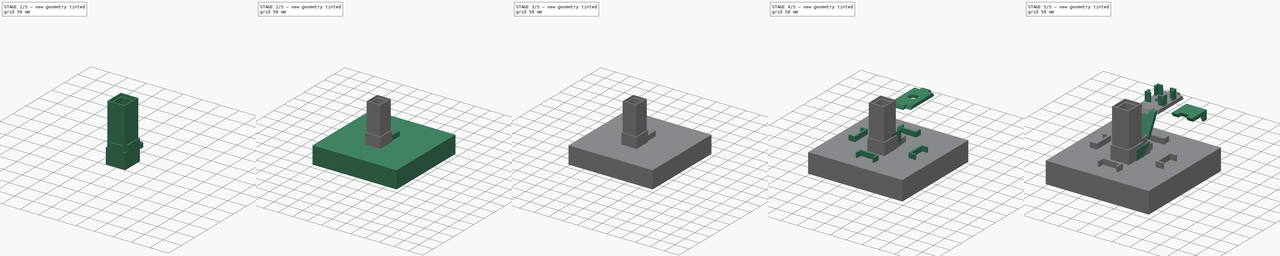
[diagram: build sequence overview — one tinted view per stage of 5, left to right]
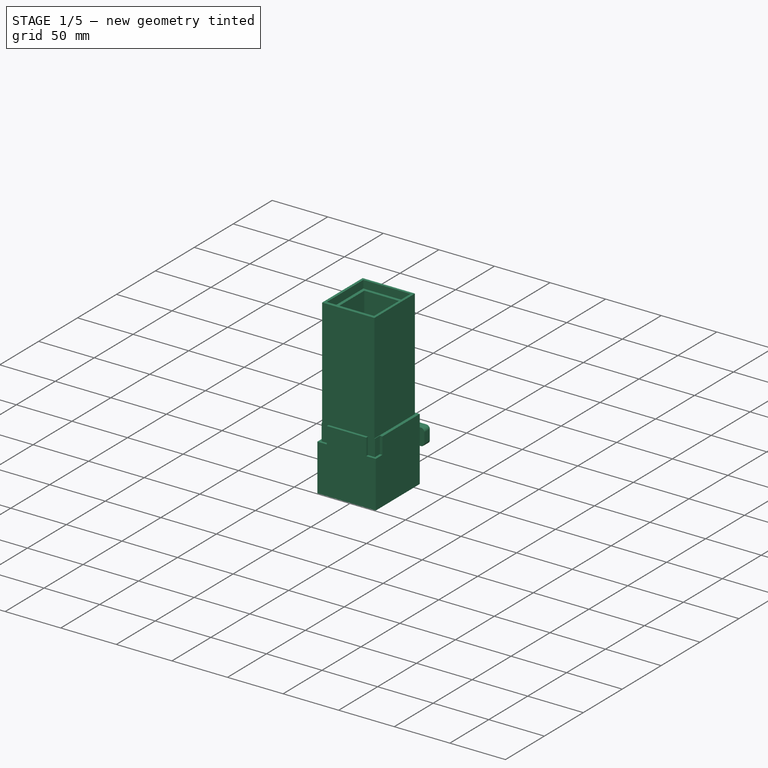
[diagram: stage 1 of 5 — iso view after this stage's code; geometry added in this stage tinted green]
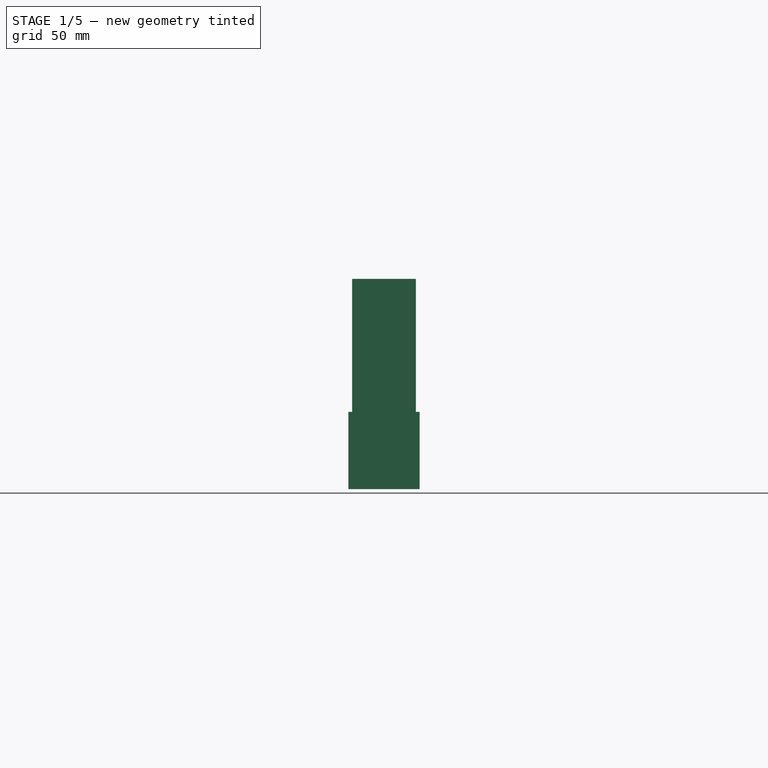
[diagram: stage 1 of 5 — front view after this stage's code; geometry added in this stage tinted green]
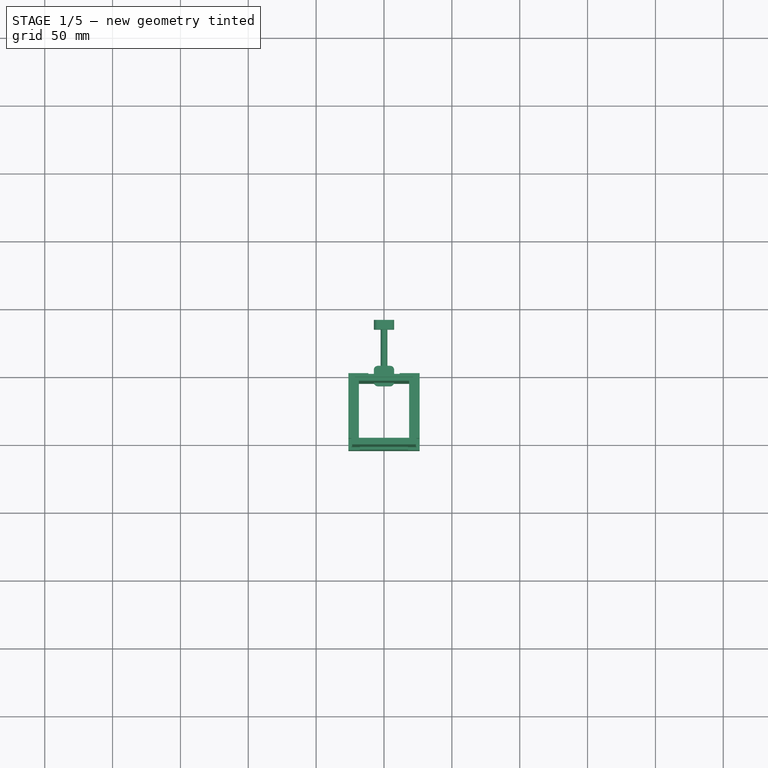
[diagram: stage 1 of 5 — top view after this stage's code; geometry added in this stage tinted green]
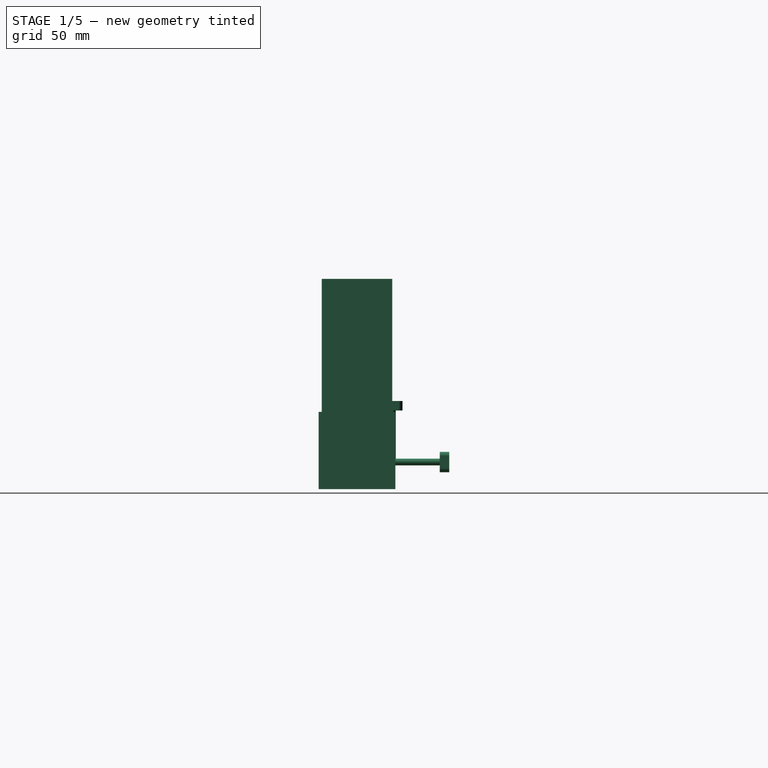
[diagram: stage 1 of 5 — right view after this stage's code; geometry added in this stage tinted green]
FCSTD DOCUMENT  (FreeCAD 0.17R13541 (Git))
Label: Rubinator3000
License: All rights reserved
LicenseURL: http://en.wikipedia.org/wiki/All_rights_reserved
objects: Sketcher::SketchObject×109, PartDesign::Pad×70, PartDesign::Pocket×39, PartDesign::Body×38, PartDesign::Chamfer×24, Drawing::FeatureViewPython×15, PartDesign::ShapeBinder×8, App::Part×8, Drawing::FeatureViewPart×6, PartDesign::Fillet×6, Part::Cut×2, Drawing::FeaturePage×2, PartDesign::Plane×1, App::DocumentObjectGroup×1
note: 406 computed .brp shape members not serialized (recipe doc carries the construction recipe); baked Part::Feature solids carry a one-line shape summary decoded from their .brp

FEATURE [Sketcher::SketchObject] Sketch112
  MapMode = 5
  Support = -> [XY_Plane039]
  sketch-geometry (8):
    g0: LineSegment StartX=-21.25 StartY=-2.25 StartZ=0 EndX=21.25 EndY=-2.25 EndZ=0
    g1: LineSegment StartX=21.25 StartY=-2.25 StartZ=0 EndX=21.25 EndY=-49.25 EndZ=0
    g2: LineSegment StartX=21.25 StartY=-49.25 StartZ=0 EndX=-21.25 EndY=-49.25 EndZ=0
    g3: LineSegment StartX=-21.25 StartY=-49.25 StartZ=0 EndX=-21.25 EndY=-2.25 EndZ=0
    g4: LineSegment StartX=-26.25 StartY=2.25 StartZ=0 EndX=26.25 EndY=2.25 EndZ=0
    g5: LineSegment StartX=26.25 StartY=2.25 StartZ=0 EndX=26.25 EndY=-54.25 EndZ=0
    g6: LineSegment StartX=26.25 StartY=-54.25 StartZ=0 EndX=-26.25 EndY=-54.25 EndZ=0
    g7: LineSegment StartX=-26.25 StartY=-54.25 StartZ=0 EndX=-26.25 EndY=2.25 EndZ=0
  constraints (24):
    c: Coincident(g0,g1)
    c: Coincident(g1,g2)
    c: Coincident(g2,g3)
    c: Coincident(g3,g0)
    c: Horizontal(g0)
    c: Horizontal(g2)
    c: Vertical(g1)
    c: Vertical(g3)
    c: Symmetric(g0,g0,g-2)
    c: DistanceY(g0) = -2.25
    c: DistanceX(g0) = -21.25
    c: DistanceY(g3,g3) = 47
    c: Coincident(g4,g5)
    c: Coincident(g5,g6)
    c: Coincident(g6,g7)
    c: Coincident(g7,g4)
    c: Horizontal(g4)
    c: Horizontal(g6)
    c: Vertical(g5)
    c: Vertical(g7)
    c: DistanceX(g4) = -26.25
    c: DistanceY(g4) = 2.25
    c: Symmetric(g4,g4,g-2)
    c: DistanceY(g6,g2) = 5
FEATURE [PartDesign::Pad] Pad058
  Length = 37
  Length2 = 100
  Profile = -> Sketch112
  Type = 0
FEATURE [Sketcher::SketchObject] Sketch113
  ExternalGeometry = -> [Pad058]
  MapMode = 5
  Placement = pos=(0,2.25,0) rot=(0,0.707107,0.707107;3.14159rad)
  Support = -> [Pad058]
  sketch-geometry (4):
    g0: LineSegment StartX=-11.5 StartY=37 StartZ=0 EndX=11.5 EndY=37 EndZ=0
    g1: LineSegment StartX=11.5 StartY=37 StartZ=0 EndX=11.5 EndY=4 EndZ=0
    g2: LineSegment StartX=11.5 StartY=4 StartZ=0 EndX=-11.5 EndY=4 EndZ=0
    g3: LineSegment StartX=-11.5 StartY=4 StartZ=0 EndX=-11.5 EndY=37 EndZ=0
  constraints (12):
    c: Coincident(g0,g1)
    c: Coincident(g1,g2)
    c: Coincident(g2,g3)
    c: Coincident(g3,g0)
    c: Horizontal(g0)
    c: Horizontal(g2)
    c: Vertical(g1)
    c: Vertical(g3)
    c: PointOnObject(g0,g-3)
    c: Symmetric(g0,g0,g-2)
    c: DistanceX(g0,g0) = 23
    c: Distance(g1) = 33
FEATURE [PartDesign::Pocket] Pocket050
  BaseFeature = -> Pad058
  Length = 5
  Length2 = 100
  Profile = -> Sketch113
  Type = 0
FEATURE [Sketcher::SketchObject] Sketch114
  ExternalGeometry = -> [Pocket050]
  MapMode = 5
  Placement = pos=(0,0,0) rot=(1,0,0;3.14159rad)
  Support = -> [Pocket050]
  sketch-geometry (8):
    g0: LineSegment StartX=23.5 StartY=0 StartZ=0 EndX=-23.5 EndY=0 EndZ=0
    g1: LineSegment StartX=-23.5 StartY=0 StartZ=0 EndX=-23.5 EndY=52 EndZ=0
    g2: LineSegment StartX=-23.5 StartY=52 StartZ=0 EndX=23.5 EndY=52 EndZ=0
    g3: LineSegment StartX=23.5 StartY=52 StartZ=0 EndX=23.5 EndY=0 EndZ=0
    g4: LineSegment StartX=26.25 StartY=-2.25 StartZ=0 EndX=-26.25 EndY=-2.25 EndZ=0
    g5: LineSegment StartX=-26.25 StartY=-2.25 StartZ=0 EndX=-26.25 EndY=54.25 EndZ=0
    g6: LineSegment StartX=-26.25 StartY=54.25 StartZ=0 EndX=26.25 EndY=54.25 EndZ=0
    g7: LineSegment StartX=26.25 StartY=54.25 StartZ=0 EndX=26.25 EndY=-2.25 EndZ=0
  constraints (22):
    c: Coincident(g0,g1)
    c: Coincident(g1,g2)
    c: Coincident(g2,g3)
    c: Coincident(g3,g0)
    c: Horizontal(g0)
    c: Horizontal(g2)
    c: Vertical(g1)
    c: Vertical(g3)
    c: PointOnObject(g0,g-1)
    c: DistanceX(g0,g0) = 47
    c: Symmetric(g0,g0,g-2)
    c: DistanceY(g3,g3) = 52
    c: Coincident(g4,g5)
    c: Coincident(g5,g6)
    c: Coincident(g6,g7)
    c: Coincident(g7,g4)
    c: Horizontal(g4)
    c: Horizontal(g6)
    c: Vertical(g5)
    c: Vertical(g7)
    c: Coincident(g5,g-3)
    c: Coincident(g4,g-4)
FEATURE [PartDesign::Pad] Pad059
  BaseFeature = -> Pocket050
  Length = 20
  Length2 = 100
  Profile = -> Sketch114
  Type = 0
FEATURE [PartDesign::Body] Body033  label="StützeHinten"
  Group = -> [Sketch119,Pad060,Sketch120,Pocket051,Sketch118,Pocket052]
  Origin = -> Origin040
  Placement = pos=(0,0,0) rot=(0,0,1;3.14159rad)
  Tip = -> Pocket052
FEATURE [Sketcher::SketchObject] Sketch122
  MapMode = 5
  Support = -> [XY_Plane041]
  sketch-geometry (8):
    g0: LineSegment StartX=-21.25 StartY=-2.25 StartZ=0 EndX=21.25 EndY=-2.25 EndZ=0
    g1: LineSegment StartX=21.25 StartY=-2.25 StartZ=0 EndX=21.25 EndY=-49.25 EndZ=0
    g2: LineSegment StartX=21.25 StartY=-49.25 StartZ=0 EndX=-21.25 EndY=-49.25 EndZ=0
    g3: LineSegment StartX=-21.25 StartY=-49.25 StartZ=0 EndX=-21.25 EndY=-2.25 EndZ=0
    g4: LineSegment StartX=-26.25 StartY=2.25 StartZ=0 EndX=26.25 EndY=2.25 EndZ=0
    g5: LineSegment StartX=26.25 StartY=2.25 StartZ=0 EndX=26.25 EndY=-54.25 EndZ=0
    g6: LineSegment StartX=26.25 StartY=-54.25 StartZ=0 EndX=-26.25 EndY=-54.25 EndZ=0
    g7: LineSegment StartX=-26.25 StartY=-54.25 StartZ=0 EndX=-26.25 EndY=2.25 EndZ=0
  constraints (24):
    c: Coincident(g0,g1)
    c: Coincident(g1,g2)
    c: Coincident(g2,g3)
    c: Coincident(g3,g0)
    c: Horizontal(g0)
    c: Horizontal(g2)
    c: Vertical(g1)
    c: Vertical(g3)
    c: Symmetric(g0,g0,g-2)
    c: DistanceY(g0) = -2.25
    c: DistanceX(g0) = -21.25
    c: DistanceY(g3,g3) = 47
    c: Coincident(g4,g5)
    c: Coincident(g5,g6)
    c: Coincident(g6,g7)
    c: Coincident(g7,g4)
    c: Horizontal(g4)
    c: Horizontal(g6)
    c: Vertical(g5)
    c: Vertical(g7)
    c: DistanceX(g4) = -26.25
    c: DistanceY(g4) = 2.25
    c: Symmetric(g4,g4,g-2)
    c: DistanceY(g6,g2) = 5
FEATURE [PartDesign::Pad] Pad062
  Length = 37
  Length2 = 100
  Profile = -> Sketch122
  Type = 0
FEATURE [Sketcher::SketchObject] Sketch121
  ExternalGeometry = -> [Pad062]
  MapMode = 5
  Placement = pos=(0,2.25,0) rot=(0,0.707107,0.707107;3.14159rad)
  Support = -> [Pad062]
  sketch-geometry (4):
    g0: LineSegment StartX=-11.5 StartY=37 StartZ=0 EndX=11.5 EndY=37 EndZ=0
    g1: LineSegment StartX=11.5 StartY=37 StartZ=0 EndX=11.5 EndY=4 EndZ=0
    g2: LineSegment StartX=11.5 StartY=4 StartZ=0 EndX=-11.5 EndY=4 EndZ=0
    g3: LineSegment StartX=-11.5 StartY=4 StartZ=0 EndX=-11.5 EndY=37 EndZ=0
  constraints (12):
    c: Coincident(g0,g1)
    c: Coincident(g1,g2)
    c: Coincident(g2,g3)
    c: Coincident(g3,g0)
    c: Horizontal(g0)
    c: Horizontal(g2)
    c: Vertical(g1)
    c: Vertical(g3)
    c: PointOnObject(g0,g-3)
    c: Symmetric(g0,g0,g-2)
    c: DistanceX(g0,g0) = 23
    c: Distance(g1) = 33
FEATURE [PartDesign::Pocket] Pocket053
  BaseFeature = -> Pad062
  Length = 5
  Length2 = 100
  Profile = -> Sketch121
  Type = 0
FEATURE [Sketcher::SketchObject] Sketch123
  ExternalGeometry = -> [Pocket053]
  MapMode = 5
  Placement = pos=(0,0,0) rot=(1,0,0;3.14159rad)
  Support = -> [Pocket053]
  sketch-geometry (8):
    g0: LineSegment StartX=23.5 StartY=0 StartZ=0 EndX=-23.5 EndY=0 EndZ=0
    g1: LineSegment StartX=-23.5 StartY=0 StartZ=0 EndX=-23.5 EndY=52 EndZ=0
    g2: LineSegment StartX=-23.5 StartY=52 StartZ=0 EndX=23.5 EndY=52 EndZ=0
    g3: LineSegment StartX=23.5 StartY=52 StartZ=0 EndX=23.5 EndY=0 EndZ=0
    g4: LineSegment StartX=26.25 StartY=-2.25 StartZ=0 EndX=-26.25 EndY=-2.25 EndZ=0
    g5: LineSegment StartX=-26.25 StartY=-2.25 StartZ=0 EndX=-26.25 EndY=54.25 EndZ=0
    g6: LineSegment StartX=-26.25 StartY=54.25 StartZ=0 EndX=26.25 EndY=54.25 EndZ=0
    g7: LineSegment StartX=26.25 StartY=54.25 StartZ=0 EndX=26.25 EndY=-2.25 EndZ=0
  constraints (22):
    c: Coincident(g0,g1)
    c: Coincident(g1,g2)
    c: Coincident(g2,g3)
    c: Coincident(g3,g0)
    c: Horizontal(g0)
    c: Horizontal(g2)
    c: Vertical(g1)
    c: Vertical(g3)
    c: PointOnObject(g0,g-1)
    c: DistanceX(g0,g0) = 47
    c: Symmetric(g0,g0,g-2)
    c: DistanceY(g3,g3) = 52
    c: Coincident(g4,g5)
    c: Coincident(g5,g6)
    c: Coincident(g6,g7)
    c: Coincident(g7,g4)
    c: Horizontal(g4)
    c: Horizontal(g6)
    c: Vertical(g5)
    c: Vertical(g7)
    c: Coincident(g5,g-3)
    c: Coincident(g4,g-4)
FEATURE [PartDesign::Pad] Pad061
  BaseFeature = -> Pocket053
  Length = 20
  Length2 = 100
  Profile = -> Sketch123
  Type = 0
FEATURE [PartDesign::Body] Body036  label="StützeLinks"
  Group = -> [Sketch126,Pad065,Sketch128,Pocket055,Sketch124,Pocket056]
  Origin = -> Origin042
  Placement = pos=(0,0,0) rot=(0,0,-1;1.5708rad)
  Tip = -> Pocket056
FEATURE [Sketcher::SketchObject] Sketch132
  MapMode = 5
  Support = -> [XY_Plane044]
  sketch-geometry (8):
    g0: LineSegment StartX=-23.5 StartY=0 StartZ=0 EndX=23.5 EndY=0 EndZ=0
    g1: LineSegment StartX=23.5 StartY=0 StartZ=0 EndX=23.5 EndY=-52 EndZ=0
    g2: LineSegment StartX=23.5 StartY=-52 StartZ=0 EndX=-23.5 EndY=-52 EndZ=0
    g3: LineSegment StartX=-23.5 StartY=-52 StartZ=0 EndX=-23.5 EndY=0 EndZ=0
    g4: LineSegment StartX=-18.5 StartY=-5 StartZ=0 EndX=18.5 EndY=-5 EndZ=0
    g5: LineSegment StartX=18.5 StartY=-5 StartZ=0 EndX=18.5 EndY=-47 EndZ=0
    g6: LineSegment StartX=18.5 StartY=-47 StartZ=0 EndX=-18.5 EndY=-47 EndZ=0
    g7: LineSegment StartX=-18.5 StartY=-47 StartZ=0 EndX=-18.5 EndY=-5 EndZ=0
  constraints (24):
    c: Coincident(g0,g1)
    c: Coincident(g1,g2)
    c: Coincident(g2,g3)
    c: Coincident(g3,g0)
    c: Horizontal(g0)
    c: Horizontal(g2)
    c: Vertical(g1)
    c: Vertical(g3)
    c: Symmetric(g0,g0,g-2)
    c: PointOnObject(g0,g-1)
    c: DistanceX(g0,g0) = 47
    c: DistanceY(g3,g3) = 52
    c: Coincident(g4,g5)
    c: Coincident(g5,g6)
    c: Coincident(g6,g7)
    c: Coincident(g7,g4)
    c: Horizontal(g4)
    c: Horizontal(g6)
    c: Vertical(g5)
    c: Vertical(g7)
    c: Symmetric(g4,g4,g-2)
    c: DistanceX(g0,g4) = 5
    c: DistanceY(g4,g0) = 5
    c: DistanceY(g7,g7) = 42
FEATURE [PartDesign::Pad] Pad068
  Length = 135
  Length2 = 100
  Profile = -> Sketch132
  Type = 0
FEATURE [Sketcher::SketchObject] Sketch134
  MapMode = 5
  Placement = pos=(0,0,135) rot=(0,0,1;0rad)
  Support = -> [Pad068]
  sketch-geometry (4):
    g0: LineSegment StartX=-21.25 StartY=-2.25 StartZ=0 EndX=21.25 EndY=-2.25 EndZ=0
    g1: LineSegment StartX=21.25 StartY=-2.25 StartZ=0 EndX=21.25 EndY=-49.25 EndZ=0
    g2: LineSegment StartX=21.25 StartY=-49.25 StartZ=0 EndX=-21.25 EndY=-49.25 EndZ=0
    g3: LineSegment StartX=-21.25 StartY=-49.25 StartZ=0 EndX=-21.25 EndY=-2.25 EndZ=0
  constraints (12):
    c: Coincident(g0,g1)
    c: Coincident(g1,g2)
    c: Coincident(g2,g3)
    c: Coincident(g3,g0)
    c: Horizontal(g0)
    c: Horizontal(g2)
    c: Vertical(g1)
    c: Vertical(g3)
    c: Symmetric(g0,g0,g-2)
    c: DistanceX(g0) = -21.25
    c: DistanceY(g0) = -2.25
    c: DistanceY(g3,g3) = 47
FEATURE [PartDesign::Pocket] Pocket058
  BaseFeature = -> Pad068
  Length = 7
  Length2 = 100
  Profile = -> Sketch134
  Type = 0
FEATURE [PartDesign::Body] Body038  label="StützeRechts"
  Group = -> [Sketch132,Pad068,Sketch134,Pocket058,Sketch130,Pocket059]
  Origin = -> Origin044
  Placement = pos=(0,0,0) rot=(0,0,1;1.5708rad)
  Tip = -> Pocket059
FEATURE [Sketcher::SketchObject] Sketch136
  ExternalGeometry = -> [Pad059]
  MapMode = 5
  Placement = pos=(0,0,37) rot=(0,0,1;0rad)
  Support = -> [Pad059]
  sketch-geometry (12):
    g0: LineSegment StartX=-26.25 StartY=-54.25 StartZ=0 EndX=-26.25 EndY=-45.75 EndZ=0
    g1: LineSegment StartX=-26.25 StartY=-45.75 StartZ=0 EndX=-24 EndY=-45.75 EndZ=0
    g2: LineSegment StartX=-24 StartY=-45.75 StartZ=0 EndX=-24 EndY=-52 EndZ=0
    g3: LineSegment StartX=-24 StartY=-52 StartZ=0 EndX=-17.75 EndY=-52 EndZ=0
    g4: LineSegment StartX=-17.75 StartY=-52 StartZ=0 EndX=-17.75 EndY=-54.25 EndZ=0
    g5: LineSegment StartX=-17.75 StartY=-54.25 StartZ=0 EndX=-26.25 EndY=-54.25 EndZ=0
    g6: LineSegment StartX=26.25 StartY=-54.25 StartZ=0 EndX=26.25 EndY=-45.75 EndZ=0
    g7: LineSegment StartX=26.25 StartY=-45.75 StartZ=0 EndX=24 EndY=-45.75 EndZ=0
    g8: LineSegment StartX=24 StartY=-45.75 StartZ=0 EndX=24 EndY=-52 EndZ=0
    g9: LineSegment StartX=24 StartY=-52 StartZ=0 EndX=17.75 EndY=-52 EndZ=0
    g10: LineSegment StartX=17.75 StartY=-52 StartZ=0 EndX=17.75 EndY=-54.25 EndZ=0
    g11: LineSegment StartX=17.75 StartY=-54.25 StartZ=0 EndX=26.25 EndY=-54.25 EndZ=0
  constraints (35):
    c: Vertical(g0)
    c: Coincident(g0,g1)
    c: Horizontal(g1)
    c: Coincident(g1,g2)
    c: Vertical(g2)
    c: Coincident(g2,g3)
    c: Horizontal(g3)
    c: Coincident(g3,g4)
    c: Vertical(g4)
    c: Coincident(g4,g5)
    c: PointOnObject(g5,g-4)
    c: Horizontal(g5)
    c: Coincident(g5,g-4)
    c: Coincident(g0,g5)
    c: DistanceY(g4,g4) = 2.25
    c: Equal(g1,g4)
    c: Equal(g0,g5)
    c: DistanceY(g0,g0) = 8.5
    c: Coincident(g-4,g6)
    c: Vertical(g6)
    c: Coincident(g6,g7)
    c: Horizontal(g7)
    c: Coincident(g7,g8)
    c: Vertical(g8)
    c: Coincident(g8,g9)
    c: Horizontal(g9)
    c: Coincident(g9,g10)
    c: Vertical(g10)
    c: Coincident(g10,g11)
    c: Coincident(g11,g6)
    c: Horizontal(g11)
    c: DistanceY(g6,g6) = 8.5
    c: Equal(g11,g6)
    c: Equal(g10,g7)
    c: DistanceY(g10,g10) = 2.25
FEATURE [PartDesign::Pocket] Pocket060
  BaseFeature = -> Pad059
  Length = 15
  Length2 = 100
  Profile = -> Sketch136
  Type = 0
FEATURE [PartDesign::Body] Body032  label="MotorufsatzVorne"
  Group = -> [Sketch112,Pad058,Sketch113,Pocket050,Sketch114,Pad059,Sketch136,Pocket060]
  Origin = -> Origin039
  Placement = pos=(0,0,135) rot=(0,0,1;0rad)
  Tip = -> Pocket060
FEATURE [Sketcher::SketchObject] Sketch137
  ExternalGeometry = -> [Pad061]
  MapMode = 5
  Placement = pos=(0,0,37) rot=(0,0,1;0rad)
  Support = -> [Pad061]
  sketch-geometry (12):
    g0: LineSegment StartX=-26.25 StartY=-54.25 StartZ=0 EndX=-26.25 EndY=-45.75 EndZ=0
    g1: LineSegment StartX=-26.25 StartY=-45.75 StartZ=0 EndX=-24 EndY=-45.75 EndZ=0
    g2: LineSegment StartX=-24 StartY=-45.75 StartZ=0 EndX=-24 EndY=-52 EndZ=0
    g3: LineSegment StartX=-24 StartY=-52 StartZ=0 EndX=-17.75 EndY=-52 EndZ=0
    g4: LineSegment StartX=-17.75 StartY=-52 StartZ=0 EndX=-17.75 EndY=-54.25 EndZ=0
    g5: LineSegment StartX=-17.75 StartY=-54.25 StartZ=0 EndX=-26.25 EndY=-54.25 EndZ=0
    g6: LineSegment StartX=26.25 StartY=-54.25 StartZ=0 EndX=17.75 EndY=-54.25 EndZ=0
    g7: LineSegment StartX=17.75 StartY=-54.25 StartZ=0 EndX=17.75 EndY=-52 EndZ=0
    g8: LineSegment StartX=17.75 StartY=-52 StartZ=0 EndX=24 EndY=-52 EndZ=0
    g9: LineSegment StartX=24 StartY=-52 StartZ=0 EndX=24 EndY=-45.75 EndZ=0
    g10: LineSegment StartX=24 StartY=-45.75 StartZ=0 EndX=26.25 EndY=-45.75 EndZ=0
    g11: LineSegment StartX=26.25 StartY=-45.75 StartZ=0 EndX=26.25 EndY=-54.25 EndZ=0
  constraints (34):
    c: Coincident(g-3,g0)
    c: Vertical(g0)
    c: Coincident(g0,g1)
    c: Horizontal(g1)
    c: Coincident(g1,g2)
    c: Vertical(g2)
    c: Coincident(g2,g3)
    c: Horizontal(g3)
    c: Coincident(g3,g4)
    c: Vertical(g4)
    c: Coincident(g4,g5)
    c: Coincident(g5,g0)
    c: Horizontal(g5)
    c: Equal(g2,g3)
    c: Equal(g1,g4)
    c: DistanceY(g0,g0) = 8.5
    c: DistanceX(g1,g1) = 2.25
    c: Coincident(g-3,g6)
    c: Horizontal(g6)
    c: Coincident(g6,g7)
    c: Vertical(g7)
    c: Coincident(g7,g8)
    c: Horizontal(g8)
    c: Coincident(g8,g9)
    c: Vertical(g9)
    c: Coincident(g9,g10)
    c: Horizontal(g10)
    c: Coincident(g10,g11)
    c: Coincident(g11,g6)
    c: Vertical(g11)
    c: Equal(g10,g7)
    c: Equal(g8,g9)
    c: DistanceX(g10,g10) = 2.25
    c: DistanceY(g11,g11) = 8.5
FEATURE [PartDesign::Pocket] Pocket061
  BaseFeature = -> Pad061
  Length = 15
  Length2 = 100
  Profile = -> Sketch137
  Type = 0
FEATURE [PartDesign::Body] Body034  label="MotorufsatzHinten"
  Group = -> [Sketch122,Pad062,Sketch121,Pocket053,Sketch123,Pad061,Sketch137,Pocket061]
  Origin = -> Origin041
  Placement = pos=(0,0,135) rot=(0,0,1;3.14159rad)
  Tip = -> Pocket061
FEATURE [Sketcher::SketchObject] Sketch138
  MapMode = 5
  Support = -> [XY_Plane048]
  sketch-geometry (1):
    g0: Circle CenterX=0 CenterY=0 CenterZ=0 NormalX=0 NormalY=0 NormalZ=1 AngleXU=0 Radius=2.5
  constraints (2):
    c: Coincident(g0,g-1)
    c: Radius(g0) = 2.5
FEATURE [PartDesign::Pad] Pad069
  Length = 45
  Length2 = 100
  Profile = -> Sketch138
  Type = 0
FEATURE [Sketcher::SketchObject] Sketch139
  MapMode = 5
  Placement = pos=(0,0,45) rot=(0,0,1;0rad)
  Support = -> [Pad069]
  sketch-geometry (4):
    g0: LineSegment StartX=-7.5 StartY=-7.5 StartZ=0 EndX=7.5 EndY=-7.5 EndZ=0
    g1: LineSegment StartX=7.5 StartY=-7.5 StartZ=0 EndX=7.5 EndY=7.5 EndZ=0
    g2: LineSegment StartX=7.5 StartY=7.5 StartZ=0 EndX=-7.5 EndY=7.5 EndZ=0
    g3: LineSegment StartX=-7.5 StartY=7.5 StartZ=0 EndX=-7.5 EndY=-7.5 EndZ=0
  constraints (12):
    c: Coincident(g0,g1)
    c: Coincident(g1,g2)
    c: Coincident(g2,g3)
    c: Coincident(g3,g0)
    c: Horizontal(g0)
    c: Horizontal(g2)
    c: Vertical(g1)
    c: Vertical(g3)
    c: Symmetric(g2,g1,g-2)
    c: Symmetric(g0,g1,g-1)
    c: Equal(g2,g1)
    c: DistanceX(g2,g2) = 15
FEATURE [PartDesign::Pad] Pad070
  BaseFeature = -> Pad069
  Length = 7
  Length2 = 100
  Profile = -> Sketch139
  Reversed = true
  Type = 0
FEATURE [PartDesign::Fillet] Fillet
  Base = -> Pad070 [Edge9,Edge13,Edge11,Edge8]
  BaseFeature = -> Pad070
  Radius = 3
FEATURE [PartDesign::Body] Body040  label="VerbindungUnten"
  Group = -> [Sketch138,Pad069,Sketch139,Pad070,Fillet]
  Origin = -> Origin048
  Placement = pos=(0,0,20) rot=(0,0,1;0rad)
  Tip = -> Fillet
FEATURE [App::Part] Part006  label="AntriebUnten"
  Group = -> [Body018,Body017,Body040]
  License = CC BY 3.0
  LicenseURL = http://creativecommons.org/licenses/by/3.0/
  Origin = -> Origin035
  Placement = pos=(0,0,-92.85) rot=(0,0,1;0rad)
FEATURE [Sketcher::SketchObject] Sketch140
  MapMode = 5
  Placement = pos=(0,0,0) rot=(1,0,0;1.5708rad)
  Support = -> [XZ_Plane049]
  sketch-geometry (1):
    g0: Circle CenterX=0 CenterY=0 CenterZ=0 NormalX=0 NormalY=0 NormalZ=1 AngleXU=0 Radius=2.5
  constraints (2):
    c: Coincident(g0,g-1)
    c: Radius(g0) = 2.5
FEATURE [PartDesign::Pad] Pad071
  Length = 42
  Length2 = 100
  Placement = pos=(0,0,0) rot=(1,0,0;1.5708rad)
  Profile = -> Sketch140
  Reversed = true
  Type = 0
FEATURE [Sketcher::SketchObject] Sketch141
  MapMode = 5
  Placement = pos=(0,42,0) rot=(-1,0,0;1.5708rad)
  Support = -> [Pad071]
  sketch-geometry (4):
    g0: LineSegment StartX=-7.5 StartY=-7.5 StartZ=0 EndX=7.5 EndY=-7.5 EndZ=0
    g1: LineSegment StartX=7.5 StartY=-7.5 StartZ=0 EndX=7.5 EndY=7.5 EndZ=0
    g2: LineSegment StartX=7.5 StartY=7.5 StartZ=0 EndX=-7.5 EndY=7.5 EndZ=0
    g3: LineSegment StartX=-7.5 StartY=7.5 StartZ=0 EndX=-7.5 EndY=-7.5 EndZ=0
  constraints (12):
    c: Coincident(g0,g1)
    c: Coincident(g1,g2)
    c: Coincident(g2,g3)
    c: Coincident(g3,g0)
    c: Horizontal(g0)
    c: Horizontal(g2)
    c: Vertical(g1)
    c: Vertical(g3)
    c: DistanceX(g2,g2) = 15
    c: Equal(g2,g1)
    c: Symmetric(g2,g1,g-2)
    c: Symmetric(g1,g0,g-1)
FEATURE [PartDesign::Pad] Pad072
  BaseFeature = -> Pad071
  Length = 7
  Length2 = 100
  Placement = pos=(0,0,0) rot=(1,0,0;1.5708rad)
  Profile = -> Sketch141
  Reversed = true
  Type = 0
FEATURE [PartDesign::Fillet] Fillet001
  Base = -> Pad072 [Edge13,Edge9,Edge8,Edge11]
  BaseFeature = -> Pad072
  Placement = pos=(0,0,0) rot=(1,0,0;1.5708rad)
  Radius = 3
FEATURE [PartDesign::Body] Body041  label="VerbindungVorne"
  Group = -> [Sketch140,Pad071,Sketch141,Pad072,Fillet001]
  Origin = -> Origin049
  Placement = pos=(0,17.75,150) rot=(0,0,1;0rad)
  Tip = -> Fillet001
FEATURE [App::Part] Part002  label="TurmVorne"
  Group = -> [Body010,Body011,Body031,Body032,Body041]
  License = CC BY 3.0
  LicenseURL = http://creativecommons.org/licenses/by/3.0/
  Origin = -> Origin031
  Placement = pos=(0,-87.6,-150) rot=(0,0,1;0rad)
FEATURE [Sketcher::SketchObject] Sketch143
  MapMode = 5
  Placement = pos=(0,0,0) rot=(1,0,0;1.5708rad)
  Support = -> [XZ_Plane050]
  sketch-geometry (1):
    g0: Circle CenterX=0 CenterY=0 CenterZ=0 NormalX=0 NormalY=0 NormalZ=1 AngleXU=0 Radius=2.5
  constraints (2):
    c: Coincident(g0,g-1)
    c: Radius(g0) = 2.5
FEATURE [PartDesign::Pad] Pad073
  Length = 42
  Length2 = 100
  Placement = pos=(0,0,0) rot=(1,0,0;1.5708rad)
  Profile = -> Sketch143
  Reversed = true
  Type = 0
FEATURE [Sketcher::SketchObject] Sketch142
  MapMode = 5
  Placement = pos=(0,42,0) rot=(-1,0,0;1.5708rad)
  Support = -> [Pad073]
  sketch-geometry (4):
    g0: LineSegment StartX=-7.5 StartY=-7.5 StartZ=0 EndX=7.5 EndY=-7.5 EndZ=0
    g1: LineSegment StartX=7.5 StartY=-7.5 StartZ=0 EndX=7.5 EndY=7.5 EndZ=0
    g2: LineSegment StartX=7.5 StartY=7.5 StartZ=0 EndX=-7.5 EndY=7.5 EndZ=0
    g3: LineSegment StartX=-7.5 StartY=7.5 StartZ=0 EndX=-7.5 EndY=-7.5 EndZ=0
  constraints (12):
    c: Coincident(g0,g1)
    c: Coincident(g1,g2)
    c: Coincident(g2,g3)
    c: Coincident(g3,g0)
    c: Horizontal(g0)
    c: Horizontal(g2)
    c: Vertical(g1)
    c: Vertical(g3)
    c: DistanceX(g2,g2) = 15
    c: Equal(g2,g1)
    c: Symmetric(g2,g1,g-2)
    c: Symmetric(g1,g0,g-1)
FEATURE [PartDesign::Pad] Pad074
  BaseFeature = -> Pad073
  Length = 7
  Length2 = 100
  Placement = pos=(0,0,0) rot=(1,0,0;1.5708rad)
  Profile = -> Sketch142
  Reversed = true
  Type = 0
FEATURE [PartDesign::Fillet] Fillet002
  Base = -> Pad074 [Edge13,Edge9,Edge8,Edge11]
  BaseFeature = -> Pad074
  Placement = pos=(0,0,0) rot=(1,0,0;1.5708rad)
  Radius = 3
FEATURE [PartDesign::Body] Body042  label="VerbindungHinten"
  Group = -> [Sketch143,Pad073,Sketch142,Pad074,Fillet002]
  Origin = -> Origin050
  Placement = pos=(0,-17.75,150) rot=(0,0,1;3.14159rad)
  Tip = -> Fillet002
FEATURE [App::Part] Part003  label="TurmHinten"
  Group = -> [Body002,Body007,Body033,Body034,Body042]
  License = CC BY 3.0
  LicenseURL = http://creativecommons.org/licenses/by/3.0/
  Origin = -> Origin032
  Placement = pos=(0,87.6,-150) rot=(0,0,1;0rad)
FEATURE [Sketcher::SketchObject] Sketch145
  MapMode = 5
  Placement = pos=(0,0,0) rot=(1,0,0;1.5708rad)
  Support = -> [XZ_Plane051]
  sketch-geometry (1):
    g0: Circle CenterX=0 CenterY=0 CenterZ=0 NormalX=0 NormalY=0 NormalZ=1 AngleXU=0 Radius=2.5
  constraints (2):
    c: Coincident(g0,g-1)
    c: Radius(g0) = 2.5
FEATURE [PartDesign::Pad] Pad075
  Length = 42
  Length2 = 100
  Placement = pos=(0,0,0) rot=(1,0,0;1.5708rad)
  Profile = -> Sketch145
  Reversed = true
  Type = 0
FEATURE [Sketcher::SketchObject] Sketch144
  MapMode = 5
  Placement = pos=(0,42,0) rot=(-1,0,0;1.5708rad)
  Support = -> [Pad075]
  sketch-geometry (4):
    g0: LineSegment StartX=-7.5 StartY=-7.5 StartZ=0 EndX=7.5 EndY=-7.5 EndZ=0
    g1: LineSegment StartX=7.5 StartY=-7.5 StartZ=0 EndX=7.5 EndY=7.5 EndZ=0
    g2: LineSegment StartX=7.5 StartY=7.5 StartZ=0 EndX=-7.5 EndY=7.5 EndZ=0
    g3: LineSegment StartX=-7.5 StartY=7.5 StartZ=0 EndX=-7.5 EndY=-7.5 EndZ=0
  constraints (12):
    c: Coincident(g0,g1)
    c: Coincident(g1,g2)
    c: Coincident(g2,g3)
    c: Coincident(g3,g0)
    c: Horizontal(g0)
    c: Horizontal(g2)
    c: Vertical(g1)
    c: Vertical(g3)
    c: DistanceX(g2,g2) = 15
    c: Equal(g2,g1)
    c: Symmetric(g2,g1,g-2)
    c: Symmetric(g1,g0,g-1)
FEATURE [PartDesign::Pad] Pad076
  BaseFeature = -> Pad075
  Length = 7
  Length2 = 100
  Placement = pos=(0,0,0) rot=(1,0,0;1.5708rad)
  Profile = -> Sketch144
  Reversed = true
  Type = 0
FEATURE [PartDesign::Fillet] Fillet003
  Base = -> Pad076 [Edge13,Edge9,Edge8,Edge11]
  BaseFeature = -> Pad076
  Placement = pos=(0,0,0) rot=(1,0,0;1.5708rad)
  Radius = 3
FEATURE [PartDesign::Body] Body043  label="VerbindungLinks"
  Group = -> [Sketch145,Pad075,Sketch144,Pad076,Fillet003]
  Origin = -> Origin051
  Placement = pos=(17.75,0,150) rot=(0,0,1;4.71239rad)
  Tip = -> Fillet003
FEATURE [App::Part] Part004  label="TurmLinks"
  Group = -> [Body014,Body015,Body035,Body036,Body043]
  License = CC BY 3.0
  LicenseURL = http://creativecommons.org/licenses/by/3.0/
  Origin = -> Origin033
  Placement = pos=(-87.6,0,-150) rot=(0,0,1;0rad)
FEATURE [Sketcher::SketchObject] Sketch147
  MapMode = 5
  Placement = pos=(0,0,0) rot=(1,0,0;1.5708rad)
  Support = -> [XZ_Plane052]
  sketch-geometry (1):
    g0: Circle CenterX=0 CenterY=0 CenterZ=0 NormalX=0 NormalY=0 NormalZ=1 AngleXU=0 Radius=2.5
  constraints (2):
    c: Coincident(g0,g-1)
    c: Radius(g0) = 2.5
FEATURE [PartDesign::Pad] Pad077
  Length = 42
  Length2 = 100
  Placement = pos=(0,0,0) rot=(1,0,0;1.5708rad)
  Profile = -> Sketch147
  Reversed = true
  Type = 0
FEATURE [Sketcher::SketchObject] Sketch146
  MapMode = 5
  Placement = pos=(0,42,0) rot=(-1,0,0;1.5708rad)
  Support = -> [Pad077]
  sketch-geometry (4):
    g0: LineSegment StartX=-7.5 StartY=-7.5 StartZ=0 EndX=7.5 EndY=-7.5 EndZ=0
    g1: LineSegment StartX=7.5 StartY=-7.5 StartZ=0 EndX=7.5 EndY=7.5 EndZ=0
    g2: LineSegment StartX=7.5 StartY=7.5 StartZ=0 EndX=-7.5 EndY=7.5 EndZ=0
    g3: LineSegment StartX=-7.5 StartY=7.5 StartZ=0 EndX=-7.5 EndY=-7.5 EndZ=0
  constraints (12):
    c: Coincident(g0,g1)
    c: Coincident(g1,g2)
    c: Coincident(g2,g3)
    c: Coincident(g3,g0)
    c: Horizontal(g0)
    c: Horizontal(g2)
    c: Vertical(g1)
    c: Vertical(g3)
    c: DistanceX(g2,g2) = 15
    c: Equal(g2,g1)
    c: Symmetric(g2,g1,g-2)
    c: Symmetric(g1,g0,g-1)
FEATURE [PartDesign::Pad] Pad078
  BaseFeature = -> Pad077
  Length = 7
  Length2 = 100
  Placement = pos=(0,0,0) rot=(1,0,0;1.5708rad)
  Profile = -> Sketch146
  Reversed = true
  Type = 0
FEATURE [PartDesign::Fillet] Fillet004
  Base = -> Pad078 [Edge13,Edge9,Edge8,Edge11]
  BaseFeature = -> Pad078
  Placement = pos=(0,0,0) rot=(1,0,0;1.5708rad)
  Radius = 3
FEATURE [PartDesign::Body] Body044  label="VerbindungRechts"
  Group = -> [Sketch147,Pad077,Sketch146,Pad078,Fillet004]
  Origin = -> Origin052
  Placement = pos=(-17.75,0,150) rot=(0,0,1;1.5708rad)
  Tip = -> Fillet004
FEATURE [App::Part] Part005  label="TurmRechts"
  Group = -> [Body012,Body013,Body037,Body038,Body044]
  License = CC BY 3.0
  LicenseURL = http://creativecommons.org/licenses/by/3.0/
  Origin = -> Origin034
  Placement = pos=(87.6,0,-150) rot=(0,0,1;0rad)
FEATURE [Sketcher::SketchObject] Sketch149
  MapMode = 5
  Placement = pos=(0,0,0) rot=(1,0,0;1.5708rad)
  Support = -> [XZ_Plane053]
  sketch-geometry (1):
    g0: Circle CenterX=0 CenterY=0 CenterZ=0 NormalX=0 NormalY=0 NormalZ=1 AngleXU=0 Radius=2.5
  constraints (2):
    c: Coincident(g0,g-1)
    c: Radius(g0) = 2.5
FEATURE [PartDesign::Pad] Pad079
  Length = 42
  Length2 = 100
  Placement = pos=(0,0,0) rot=(1,0,0;1.5708rad)
  Profile = -> Sketch149
  Reversed = true
  Type = 0
FEATURE [Sketcher::SketchObject] Sketch148
  MapMode = 5
  Placement = pos=(0,42,0) rot=(-1,0,0;1.5708rad)
  Support = -> [Pad079]
  sketch-geometry (4):
    g0: LineSegment StartX=-7.5 StartY=-7.5 StartZ=0 EndX=7.5 EndY=-7.5 EndZ=0
    g1: LineSegment StartX=7.5 StartY=-7.5 StartZ=0 EndX=7.5 EndY=7.5 EndZ=0
    g2: LineSegment StartX=7.5 StartY=7.5 StartZ=0 EndX=-7.5 EndY=7.5 EndZ=0
    g3: LineSegment StartX=-7.5 StartY=7.5 StartZ=0 EndX=-7.5 EndY=-7.5 EndZ=0
  constraints (12):
    c: Coincident(g0,g1)
    c: Coincident(g1,g2)
    c: Coincident(g2,g3)
    c: Coincident(g3,g0)
    c: Horizontal(g0)
    c: Horizontal(g2)
    c: Vertical(g1)
    c: Vertical(g3)
    c: DistanceX(g2,g2) = 15
    c: Equal(g2,g1)
    c: Symmetric(g2,g1,g-2)
    c: Symmetric(g1,g0,g-1)
FEATURE [PartDesign::Pad] Pad080
  BaseFeature = -> Pad079
  Length = 7
  Length2 = 100
  Placement = pos=(0,0,0) rot=(1,0,0;1.5708rad)
  Profile = -> Sketch148
  Reversed = true
  Type = 0
FEATURE [PartDesign::Fillet] Fillet005
  Base = -> Pad080 [Edge13,Edge9,Edge8,Edge11]
  BaseFeature = -> Pad080
  Placement = pos=(0,0,0) rot=(1,0,0;1.5708rad)
  Radius = 3
FEATURE [PartDesign::Body] Body045  label="VerbindungOben"
  Group = -> [Sketch149,Pad079,Sketch148,Pad080,Fillet005]
  Origin = -> Origin053
  Placement = pos=(-28.5,150,38) rot=(1,0,0;4.71239rad)
  Tip = -> Fillet005
FEATURE [App::Part] Part  label="HalterungOben"
  Group = -> [Body021,Body024,Body023,Cut,Body025,Body026,Cut001,Body022,Body027,Body008,Body009,Body045]
  License = CC BY 3.0
  LicenseURL = http://creativecommons.org/licenses/by/3.0/
  Origin = -> Origin023
  Placement = pos=(28.5,-150,32) rot=(-0.707107,0,0.707107;0rad)
FEATURE [App::Part] Part007  label="Rubinator"
  Group = -> [Part002,Part006,Part005,Part004,Part003,Part001,Part,Body]
  License = CC BY 3.0
  LicenseURL = http://creativecommons.org/licenses/by/3.0/
  Origin = -> Origin046
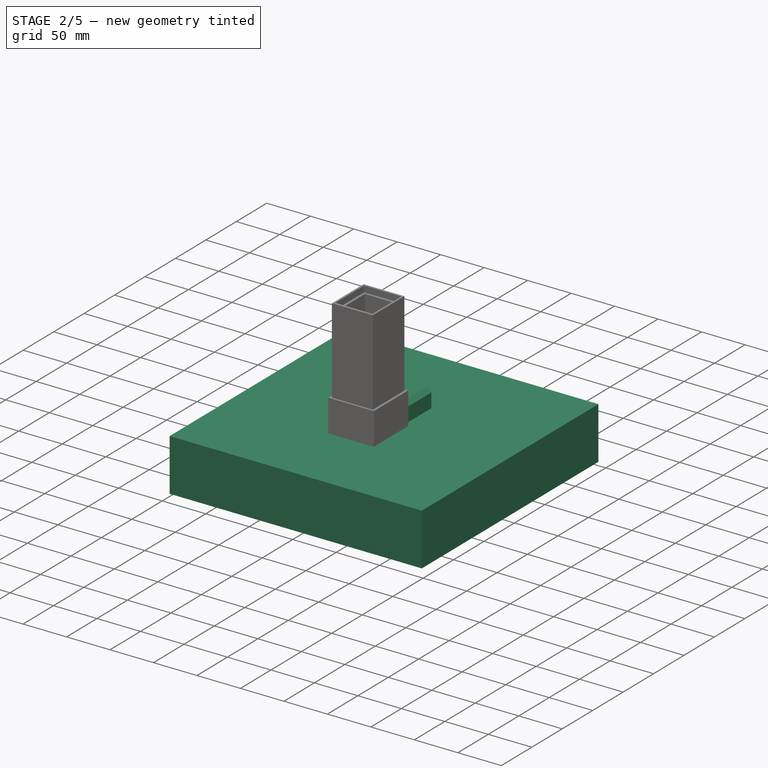
[diagram: stage 2 of 5 — iso view after this stage's code; geometry added in this stage tinted green]
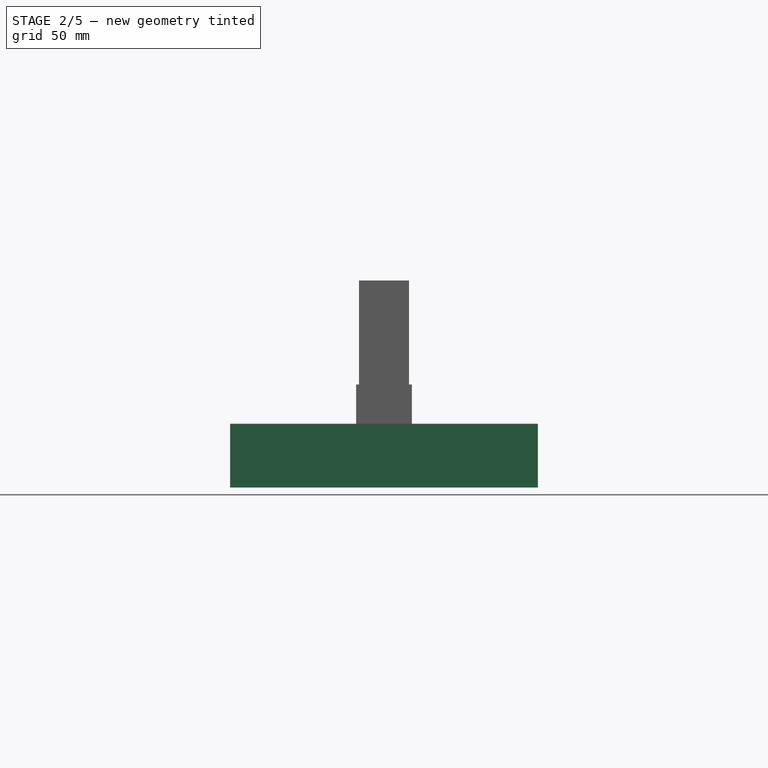
[diagram: stage 2 of 5 — front view after this stage's code; geometry added in this stage tinted green]
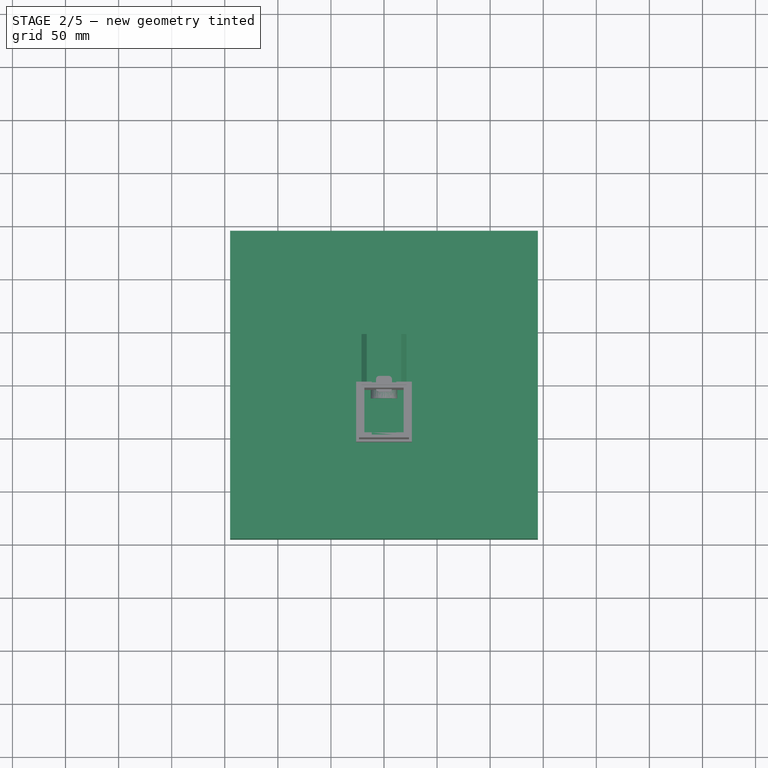
[diagram: stage 2 of 5 — top view after this stage's code; geometry added in this stage tinted green]
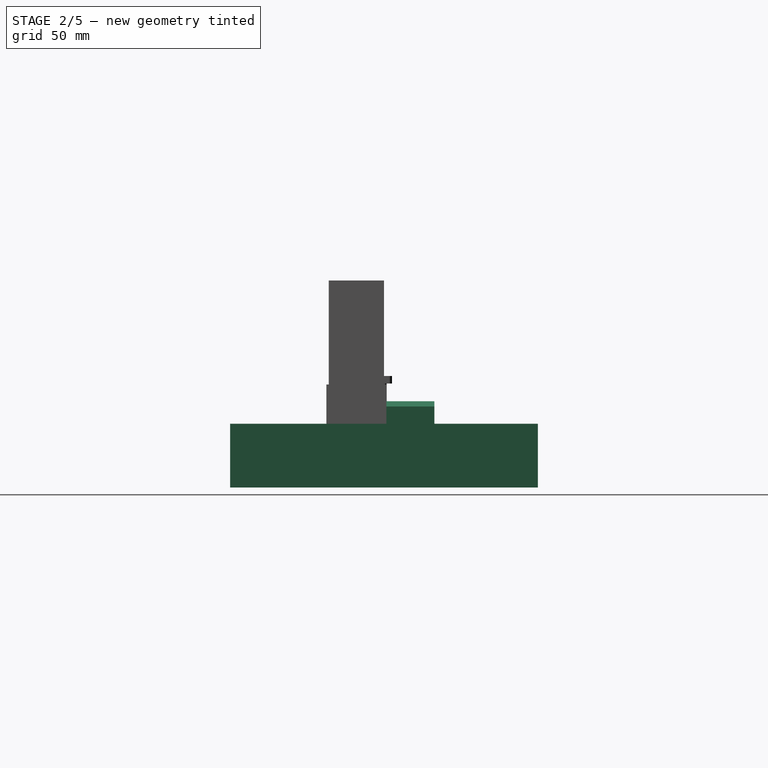
[diagram: stage 2 of 5 — right view after this stage's code; geometry added in this stage tinted green]
FEATURE [PartDesign::ShapeBinder] CopyPocket007
  Placement = pos=(0,0,-41.5) rot=(0,0,1;0rad)
FEATURE [Sketcher::SketchObject] Sketch074
  MapMode = 5
  Placement = pos=(0,0,0) rot=(1,0,0;1.5708rad)
  Support = -> [XZ_Plane018]
  sketch-geometry (4):
    g0: LineSegment StartX=-21.25 StartY=-21.25 StartZ=0 EndX=21.25 EndY=-21.25 EndZ=0
    g1: LineSegment StartX=21.25 StartY=-21.25 StartZ=0 EndX=21.25 EndY=21.25 EndZ=0
    g2: LineSegment StartX=21.25 StartY=21.25 StartZ=0 EndX=-21.25 EndY=21.25 EndZ=0
    g3: LineSegment StartX=-21.25 StartY=21.25 StartZ=0 EndX=-21.25 EndY=-21.25 EndZ=0
  constraints (10):
    c: Coincident(g0,g1)
    c: Coincident(g1,g2)
    c: Coincident(g2,g3)
    c: Coincident(g3,g0)
    c: Horizontal(g0)
    c: Vertical(g3)
    c: Symmetric(g2,g1,g-2)
    c: Symmetric(g1,g0,g-1)
    c: DistanceX(g2,g2) = 42.5
    c: DistanceY(g1,g1) = 42.5
FEATURE [PartDesign::Pad] Pad037
  Length = 47.4
  Length2 = 100
  Placement = pos=(0,0,0) rot=(1,0,0;1.5708rad)
  Profile = -> Sketch074
  Reversed = true
  Type = 0
FEATURE [PartDesign::Chamfer] Chamfer022
  Base = -> Pad037 [Edge5]
  BaseFeature = -> Pad037
  Placement = pos=(0,0,0) rot=(1,0,0;1.5708rad)
  Size = 5
FEATURE [PartDesign::Chamfer] Chamfer023
  Base = -> Chamfer022 [Edge15]
  BaseFeature = -> Chamfer022
  Placement = pos=(0,0,0) rot=(1,0,0;1.5708rad)
  Size = 5
FEATURE [PartDesign::Chamfer] Chamfer020
  Base = -> Chamfer023 [Edge16]
  BaseFeature = -> Chamfer023
  Placement = pos=(0,0,0) rot=(1,0,0;1.5708rad)
  Size = 5
FEATURE [PartDesign::Chamfer] Chamfer021
  Base = -> Chamfer020 [Edge15]
  BaseFeature = -> Chamfer020
  Placement = pos=(0,0,0) rot=(1,0,0;1.5708rad)
  Size = 5
FEATURE [Sketcher::SketchObject] Sketch076
  MapMode = 5
  Placement = pos=(0,0,0) rot=(1,0,0;1.5708rad)
  Support = -> [Chamfer021]
  sketch-geometry (1):
    g0: Circle CenterX=0 CenterY=0 CenterZ=0 NormalX=0 NormalY=0 NormalZ=1 AngleXU=0 Radius=11
  constraints (1):
    c: Radius(g0) = 11
FEATURE [PartDesign::Pad] Pad034
  BaseFeature = -> Chamfer021
  Length = 1.5
  Length2 = 100
  Placement = pos=(0,0,0) rot=(1,0,0;1.5708rad)
  Profile = -> Sketch076
  Type = 0
FEATURE [PartDesign::Body] Body018  label="MotorUnten"
  Group = -> [Sketch074,Pad037,Chamfer022,Chamfer023,Chamfer020,Chamfer021,CopyPocket007,Sketch076,Pad034,Sketch075,Pad035]
  Origin = -> Origin018
  Placement = pos=(0,0,0) rot=(-1,0,0;1.5708rad)
  Tip = -> Pad035
FEATURE [Sketcher::SketchObject] Sketch077
  MapMode = 5
  Placement = pos=(0,0,0) rot=(1,0,0;1.5708rad)
  Support = -> [XZ_Plane017]
  sketch-geometry (1):
    g0: Circle CenterX=0 CenterY=0 CenterZ=0 NormalX=0 NormalY=0 NormalZ=1 AngleXU=0 Radius=12.5
  constraints (2):
    c: Radius(g0) = 12.5
    c: Coincident(g0,g-1)
FEATURE [PartDesign::Pad] Pad036
  Length = 26
  Length2 = 100
  Midplane = true
  Placement = pos=(0,0,0) rot=(1,0,0;1.5708rad)
  Profile = -> Sketch077
  Type = 0
FEATURE [PartDesign::Body] Body027
  Group = -> [Sketch095,Pad051,Sketch098,Pocket043,Sketch096,Pocket042,Sketch097,Pocket047,Sketch104,Pad052]
  Origin = -> Origin028
  Tip = -> Pad052
FEATURE [Sketcher::SketchObject] Sketch105
  MapMode = 5
  Support = -> [XY_Plane030]
  sketch-geometry (4):
    g0: LineSegment StartX=-145 StartY=145 StartZ=0 EndX=145 EndY=145 EndZ=0
    g1: LineSegment StartX=145 StartY=145 StartZ=0 EndX=145 EndY=-145 EndZ=0
    g2: LineSegment StartX=145 StartY=-145 StartZ=0 EndX=-145 EndY=-145 EndZ=0
    g3: LineSegment StartX=-145 StartY=-145 StartZ=0 EndX=-145 EndY=145 EndZ=0
  constraints (12):
    c: Coincident(g0,g1)
    c: Coincident(g1,g2)
    c: Coincident(g2,g3)
    c: Coincident(g3,g0)
    c: Horizontal(g0)
    c: Horizontal(g2)
    c: Vertical(g1)
    c: Vertical(g3)
    c: Symmetric(g0,g0,g-2)
    c: Symmetric(g0,g1,g-1)
    c: DistanceX(g0,g0) = 290
    c: DistanceY(g1,g1) = 290
FEATURE [PartDesign::Pad] Pad053
  Length = 10
  Length2 = 100
  Profile = -> Sketch105
  Reversed = true
  Type = 0
FEATURE [Sketcher::SketchObject] Sketch106
  MapMode = 5
  Support = -> [Pad053]
  sketch-geometry (6):
    g0: Circle CenterX=-120 CenterY=0 CenterZ=0 NormalX=0 NormalY=0 NormalZ=1 AngleXU=0 Radius=5
    g1: Circle CenterX=0 CenterY=120 CenterZ=0 NormalX=0 NormalY=0 NormalZ=1 AngleXU=0 Radius=5
    g2: Circle CenterX=120 CenterY=0 CenterZ=0 NormalX=0 NormalY=0 NormalZ=1 AngleXU=0 Radius=5
    g3: Circle CenterX=0 CenterY=-120 CenterZ=0 NormalX=0 NormalY=0 NormalZ=1 AngleXU=0 Radius=5
    g4: Circle [constr] CenterX=0 CenterY=0 CenterZ=0 NormalX=0 NormalY=0 NormalZ=1 AngleXU=0 Radius=120
    g5: Circle CenterX=0 CenterY=35.5 CenterZ=0 NormalX=0 NormalY=0 NormalZ=1 AngleXU=0 Radius=2.5
  constraints (17):
    c: PointOnObject(g0,g-1)
    c: PointOnObject(g1,g-2)
    c: PointOnObject(g2,g-1)
    c: PointOnObject(g3,g-2)
    c: Equal(g3,g2)
    c: Equal(g2,g1)
    c: Equal(g1,g0)
    c: Radius(g1) = 5
    c: PointOnObject(g0,g4)
    c: PointOnObject(g1,g4)
    c: PointOnObject(g2,g4)
    c: PointOnObject(g3,g4)
    c: Radius(g4) = 120
    c: Coincident(g4,g-1)
    c: PointOnObject(g5,g-2)
    c: Radius(g5) = 2.5
    c: DistanceY(g5) = 35.5
FEATURE [PartDesign::Pocket] Pocket048
  BaseFeature = -> Pad053
  Length = 5
  Length2 = 100
  Profile = -> Sketch106
  Type = 1
FEATURE [Sketcher::SketchObject] Sketch107
  MapMode = 5
  Placement = pos=(0,0,-10) rot=(1,0,0;3.14159rad)
  Support = -> [Pocket048]
  sketch-geometry (8):
    g0: LineSegment StartX=-135 StartY=135 StartZ=0 EndX=135 EndY=135 EndZ=0
    g1: LineSegment StartX=135 StartY=135 StartZ=0 EndX=135 EndY=-135 EndZ=0
    g2: LineSegment StartX=135 StartY=-135 StartZ=0 EndX=-135 EndY=-135 EndZ=0
    g3: LineSegment StartX=-135 StartY=-135 StartZ=0 EndX=-135 EndY=135 EndZ=0
    g4: LineSegment StartX=-130 StartY=130 StartZ=0 EndX=130 EndY=130 EndZ=0
    g5: LineSegment StartX=130 StartY=130 StartZ=0 EndX=130 EndY=-130 EndZ=0
    g6: LineSegment StartX=130 StartY=-130 StartZ=0 EndX=-130 EndY=-130 EndZ=0
    g7: LineSegment StartX=-130 StartY=-130 StartZ=0 EndX=-130 EndY=130 EndZ=0
  constraints (24):
    c: Coincident(g0,g1)
    c: Coincident(g1,g2)
    c: Coincident(g2,g3)
    c: Coincident(g3,g0)
    c: Horizontal(g0)
    c: Horizontal(g2)
    c: Vertical(g1)
    c: Vertical(g3)
    c: Coincident(g4,g5)
    c: Coincident(g5,g6)
    c: Coincident(g6,g7)
    c: Coincident(g7,g4)
    c: Horizontal(g4)
    c: Horizontal(g6)
    c: Vertical(g5)
    c: Vertical(g7)
    c: Symmetric(g0,g0,g-2)
    c: Symmetric(g0,g2,g-1)
    c: Symmetric(g4,g4,g-2)
    c: Symmetric(g4,g6,g-1)
    c: DistanceX(g0,g0) = 270
    c: Equal(g3,g0)
    c: Equal(g4,g7)
    c: DistanceX(g4,g4) = 260
FEATURE [PartDesign::Pad] Pad054
  BaseFeature = -> Pocket048
  Length = 5
  Length2 = 100
  Profile = -> Sketch107
  Type = 0
FEATURE [PartDesign::Body] Body028  label="Deckel"
  Group = -> [Sketch105,Pad053,Sketch106,Pocket048,Sketch107,Pad054]
  Origin = -> Origin030
  Placement = pos=(0,0,-10) rot=(0,0,1;0rad)
  Tip = -> Pad054
FEATURE [Sketcher::SketchObject] Sketch109
  MapMode = 5
  Support = -> [XY_Plane037]
  sketch-geometry (4):
    g0: LineSegment StartX=-145 StartY=145 StartZ=0 EndX=145 EndY=145 EndZ=0
    g1: LineSegment StartX=145 StartY=145 StartZ=0 EndX=145 EndY=-145 EndZ=0
    g2: LineSegment StartX=145 StartY=-145 StartZ=0 EndX=-145 EndY=-145 EndZ=0
    g3: LineSegment StartX=-145 StartY=-145 StartZ=0 EndX=-145 EndY=145 EndZ=0
  constraints (12):
    c: Coincident(g0,g1)
    c: Coincident(g1,g2)
    c: Coincident(g2,g3)
    c: Coincident(g3,g0)
    c: Horizontal(g0)
    c: Horizontal(g2)
    c: Vertical(g1)
    c: Vertical(g3)
    c: Symmetric(g0,g0,g-2)
    c: Symmetric(g2,g0,g-1)
    c: Equal(g3,g0)
    c: DistanceX(g0,g0) = 290
FEATURE [PartDesign::Pad] Pad056
  Length = 10
  Length2 = 100
  Profile = -> Sketch109
  Reversed = true
  Type = 0
FEATURE [PartDesign::Body] Body030  label="Grundplatte"
  Group = -> [Sketch109,Pad056]
  Origin = -> Origin037
  Placement = pos=(0,0,-70) rot=(0,0,1;0rad)
  Tip = -> Pad056
FEATURE [Drawing::FeatureViewPart] Ortho  label="Ortho_0_0"
  Direction = (1,0,0)
  HiddenWidth = 0.15
  LineWidth = 0.35
  Rotation = -90
  Scale = 0.25
  ShowHiddenLines = false
  ShowSmoothLines = false
  Source = -> Body028
  Tolerance = 0.05
  ViewResult = <g id="Ortho_0_0"\n   transform="rotate(-90,206.75,130.5) translate(206.75,130.5) scale(0.25,0.25)"\n  >\n<g   fill="none"\n   stroke="rgb(0, 0, 0)"\n   stroke-linecap="butt"\n   stroke-linejoin="miter"\n   stroke-width="1.400000"\n   transform="scale(1,-1)"\n  >\n<path id= "1" d=" M -10 -145 L -20 -145 " />\n<path id= "2" d=" M -10 145 L -20 145 " />\n<path id= "3" d=" M -10 -145 L -10 145 " />\n<path id= "4" d=" M -20 -145 L -20 145 " />\n<path id= "5" d=" M -20 -135 L -25 -135 " />\n<path id= "6" d=" M -20 135 L -25 135 " />\n<path id= "7" d=" M -25 135 L -25 -135 " />\n</g>\n</g>
  Visible = false
  X = 206.75
  Y = 130.5
FEATURE [Drawing::FeatureViewPart] Ortho002  label="Ortho_0_1"
  Direction = (0,0,1)
  HiddenWidth = 0.15
  LineWidth = 0.35
  Rotation = 90
  Scale = 0.25
  ShowHiddenLines = false
  ShowSmoothLines = false
  Source = -> Body028
  Tolerance = 0.05
  ViewResult = <g id="Ortho_0_1"\n   transform="rotate(90,206.75,71.5) translate(206.75,71.5) scale(0.25,0.25)"\n  >\n<g   fill="none"\n   stroke="rgb(0, 0, 0)"\n   stroke-linecap="butt"\n   stroke-linejoin="miter"\n   stroke-width="1.400000"\n   transform="scale(1,-1)"\n  >\n<path id= "1" d=" M -145 145 L 145 145 " />\n<path id= "2" d=" M -145 -145 L -145 145 " />\n<path id= "3" d=" M 145 145 L 145 -145 " />\n<path id= "4" d=" M 145 -145 L -145 -145 " />\n<circle cx ="0" cy ="120" r ="5" /><circle cx ="0" cy ="35.5" r ="2.5" /><circle cx ="-120" cy ="0" r ="5" /><circle cx ="120" cy ="0" r ="5" /><circle cx ="0" cy ="-120" r ="5" /></g>\n</g>
  Visible = false
  X = 206.75
  Y = 71.5
FEATURE [Drawing::FeatureViewPart] Ortho003  label="Ortho_-1_1"
  Direction = (0.57735,0.57735,-0.57735)
  HiddenWidth = 0.15
  LineWidth = 0.35
  Rotation = -120
  Scale = 0.25
  ShowHiddenLines = false
  ShowSmoothLines = false
  Source = -> Body028
  Tolerance = 0.05
  ViewResult = <blob: 2777 chars omitted>
  Visible = false
  X = 90.25
  Y = 75.0722
FEATURE [Drawing::FeatureViewPython] centerLines001  # drawing view (typed FeaturePython)
  Rotation = 0
  ViewResult = <g transform="scale(0.250000,0.250000)" stroke="rgb(0,0,255)"  stroke-width="1.280000" > <path d="M 827.000000,286.000000 L 839.000000,286.000000 M 847.000000,286.000000 L 871.000000,286.000000 M 879.000000,286.000000 L 891.000000,286.000000 M 899.000000,286.000000 L 923.000000,286.000000 M 931.000000,286.000000 L 943.000000,286.000000 M 951.000000,286.000000 L 975.000000,286.000000 M 983.000000,286.000000 L 995.000000,286.000000 M 1003.000000,286.000000 L 1003.421657,286.000000 "/>\n<path d="M 827.000000,286.000000 L 815.000000,286.000000 M 807.000000,286.000000 L 783.000000,286.000000 M 775.000000,286.000000 L 763.000000,286.000000 M 755.000000,286.000000 L 731.000000,286.000000 M 723.000000,286.000000 L 711.000000,286.000000 M 703.000000,286.000000 L 679.000000,286.000000 M 671.000000,286.000000 L 659.000000,286.000000 "/> </g> 
  Visible = false
  X = 0
  Y = 0
  centerLine_color = rgb(0,0,255)
  centerLine_len_dash = 6
  centerLine_len_dot = 3
  centerLine_len_gap = 2
  centerLine_width = 0.32
  click1_x = 250.855
  click1_y = 69.9454
  click2_x = 163.914
  click2_y = 71.9064
FEATURE [Drawing::FeatureViewPython] centerLines002  # drawing view (typed FeaturePython)
  Rotation = 0
  ViewResult = <g transform="scale(0.250000,0.250000)" stroke="rgb(0,0,255)"  stroke-width="1.280000" > <path d="M 827.000000,286.000000 L 827.000000,274.000000 M 827.000000,266.000000 L 827.000000,242.000000 M 827.000000,234.000000 L 827.000000,222.000000 M 827.000000,214.000000 L 827.000000,190.000000 M 827.000000,182.000000 L 827.000000,170.000000 M 827.000000,162.000000 L 827.000000,138.000000 M 827.000000,130.000000 L 827.000000,118.000000 "/>\n<path d="M 827.000000,286.000000 L 827.000000,298.000000 M 827.000000,306.000000 L 827.000000,330.000000 M 827.000000,338.000000 L 827.000000,350.000000 M 827.000000,358.000000 L 827.000000,382.000000 M 827.000000,390.000000 L 827.000000,402.000000 M 827.000000,410.000000 L 827.000000,434.000000 M 827.000000,442.000000 L 827.000000,454.000000 M 827.000000,462.000000 L 827.000000,486.000000 M 827.000000,494.000000 L 827.000000,506.000000 M 827.000000,514.000000 L 827.000000,538.000000 M 827.000000,546.000000 L 827.000000,558.000000 M 827.000000,566.000000 L 827.000000,579.173673 "/> </g> 
  Visible = false
  X = 0
  Y = 0
  centerLine_color = rgb(0,0,255)
  centerLine_len_dash = 6
  centerLine_len_dot = 3
  centerLine_len_gap = 2
  centerLine_width = 0.32
  click1_x = 200.848
  click1_y = 28.926
  click2_x = 205.75
  click2_y = 144.793
FEATURE [Drawing::FeatureViewPython] dia001  # drawing view (typed FeaturePython)
  Rotation = 0
  ViewResult = <g>  <circle cx ="176.750000" cy ="71.500000" r="0.250000" stroke="none" fill="rgb(0,0,255)" /> \n<line x1="181.073485" y1="66.186608" x2="175.961061" y2="72.469575" style="stroke:rgb(0,0,255);stroke-width:0.50" />\n<polygon points="177.538939,70.530425 180.208052,68.834597 180.063543,67.427786 178.656732,67.572294" style="fill:rgb(0,0,255);stroke:rgb(0,0,255);stroke-width:0" />\n<polygon points="175.961061,72.469575 173.291948,74.165403 173.436457,75.572214 174.843268,75.427706" style="fill:rgb(0,0,255);stroke:rgb(0,0,255);stroke-width:0" />\n<line x1="181.073485" y1="66.186608" x2="186.629891" y2="66.186608" style="stroke:rgb(0,0,255);stroke-width:0.50" />\n<text x="183.851688" y="64.186608" font-family="inherit" font-size="3.6" fill="rgb(0,0,255)" text-anchor="middle" transform="rotate(0.000000 183.851688,64.186608)" >Ø10</text> </g>
  Visible = false
  X = 0
  Y = 0
  arrowL1 = 3
  arrowL2 = 1
  arrowW = 2
  arrow_scheme = 0
  autoPlaceOffset = 2
  autoPlaceText = true
  centerPointDia = 0.5
  click1_x = 181.073
  click1_y = 66.1866
  click2_x = 186.63
  click2_y = 65.3695
  click3_x = 186.63
  click3_y = 65.3695
  comma_decimal_place = false
  lineColor = rgb(0,0,255)
  strokeWidth = 0.5
  textFormat_circular = Ø%(value)3.3f
  textRenderer_color = rgb(0,0,255)
  textRenderer_family = inherit
  textRenderer_size = 3.6
  unit_custom_scale = 1
  unit_scheme = 0
FEATURE [Drawing::FeatureViewPython] dia002  # drawing view (typed FeaturePython)
  Rotation = 0
  ViewResult = <g>  <circle cx ="215.625000" cy ="71.500000" r="0.250000" stroke="none" fill="rgb(0,0,255)" /> \n<line x1="219.804907" y1="66.513455" x2="215.223500" y2="71.978981" style="stroke:rgb(0,0,255);stroke-width:0.50" />\n<polygon points="216.026500,71.021019 218.720068,69.364309 218.596098,67.955540 217.187329,68.079510" style="fill:rgb(0,0,255);stroke:rgb(0,0,255);stroke-width:0" />\n<polygon points="215.223500,71.978981 212.529932,73.635691 212.653902,75.044460 214.062671,74.920490" style="fill:rgb(0,0,255);stroke:rgb(0,0,255);stroke-width:0" />\n<line x1="219.804907" y1="66.513455" x2="224.707619" y2="66.513455" style="stroke:rgb(0,0,255);stroke-width:0.50" />\n<text x="222.256263" y="64.513455" font-family="inherit" font-size="3.6" fill="rgb(0,0,255)" text-anchor="middle" transform="rotate(0.000000 222.256263,64.513455)" >Ø5</text> </g>
  Visible = false
  X = 0
  Y = 0
  arrowL1 = 3
  arrowL2 = 1
  arrowW = 2
  arrow_scheme = 0
  autoPlaceOffset = 2
  autoPlaceText = true
  centerPointDia = 0.5
  click1_x = 219.805
  click1_y = 66.5135
  click2_x = 224.708
  click2_y = 65.0426
  click3_x = 224.708
  click3_y = 65.0426
  comma_decimal_place = false
  lineColor = rgb(0,0,255)
  strokeWidth = 0.5
  textFormat_circular = Ø%(value)3.3f
  textRenderer_color = rgb(0,0,255)
  textRenderer_family = inherit
  textRenderer_size = 3.6
  unit_custom_scale = 1
  unit_scheme = 0
FEATURE [Drawing::FeatureViewPython] dim001  # drawing view (typed FeaturePython)
  Rotation = 0
  ViewResult = <g> \n  <line x1="170.500000" y1="33.250000" x2="170.500000" y2="24.000000" style="stroke:rgb(0,0,255);stroke-width:0.50" />\n<line x1="243.000000" y1="33.250000" x2="243.000000" y2="24.000000" style="stroke:rgb(0,0,255);stroke-width:0.50" />\n<line x1="170.500000" y1="25.000000" x2="243.000000" y2="25.000000" style="stroke:rgb(0,0,255);stroke-width:0.50" /> \n  <polygon points="243.000000,25.000000 240.000000,24.000000 239.000000,25.000000 240.000000,26.000000" style="fill:rgb(0,0,255);stroke:rgb(0,0,255);stroke-width:0" /><polygon points="170.500000,25.000000 173.500000,26.000000 174.500000,25.000000 173.500000,24.000000" style="fill:rgb(0,0,255);stroke:rgb(0,0,255);stroke-width:0" /> \n  <text x="206.750000" y="23.000000" font-family="inherit" font-size="3.6" fill="rgb(0,0,255)" text-anchor="middle" transform="rotate(0.000000 206.750000,23.000000)" >290</text> </g>
  Visible = false
  X = 0
  Y = 0
  arrowL1 = 3
  arrowL2 = 1
  arrowW = 2
  arrow_scheme = 0
  autoPlaceOffset = 2
  autoPlaceText = true
  click1_x = 185
  click1_y = 25
  click2_x = 185
  click2_y = 25
  comma_decimal_place = false
  dimension_line_overshoot = 1
  gap_datum_points = 2
  halfDimension_linear = false
  lineColor = rgb(0,0,255)
  strokeWidth = 0.5
  textFormat_linear = %(value)3.3f
  textRenderer_color = rgb(0,0,255)
  textRenderer_family = inherit
  textRenderer_size = 3.6
  unit_custom_scale = 1
  unit_scheme = 0
FEATURE [Drawing::FeatureViewPython] dim002  # drawing view (typed FeaturePython)
  Rotation = 0
  ViewResult = <g> \n  <line x1="245.000000" y1="35.250000" x2="256.000000" y2="35.250000" style="stroke:rgb(0,0,255);stroke-width:0.50" />\n<line x1="245.000000" y1="107.750000" x2="256.000000" y2="107.750000" style="stroke:rgb(0,0,255);stroke-width:0.50" />\n<line x1="255.000000" y1="35.250000" x2="255.000000" y2="107.750000" style="stroke:rgb(0,0,255);stroke-width:0.50" /> \n  <polygon points="255.000000,107.750000 256.000000,104.750000 255.000000,103.750000 254.000000,104.750000" style="fill:rgb(0,0,255);stroke:rgb(0,0,255);stroke-width:0" /><polygon points="255.000000,35.250000 254.000000,38.250000 255.000000,39.250000 256.000000,38.250000" style="fill:rgb(0,0,255);stroke:rgb(0,0,255);stroke-width:0" /> \n  <text x="253.000000" y="71.500000" font-family="inherit" font-size="3.6" fill="rgb(0,0,255)" text-anchor="middle" transform="rotate(-90.000000 253.000000,71.500000)" >290</text> </g>
  Visible = false
  X = 0
  Y = 0
  arrowL1 = 3
  arrowL2 = 1
  arrowW = 2
  arrow_scheme = 0
  autoPlaceOffset = 2
  autoPlaceText = true
  click1_x = 255
  click1_y = 50
  click2_x = 255
  click2_y = 50
  comma_decimal_place = false
  dimension_line_overshoot = 1
  gap_datum_points = 2
  halfDimension_linear = false
  lineColor = rgb(0,0,255)
  strokeWidth = 0.5
  textFormat_linear = %(value)3.3f
  textRenderer_color = rgb(0,0,255)
  textRenderer_family = inherit
  textRenderer_size = 3.6
  unit_custom_scale = 1
  unit_scheme = 0
FEATURE [Drawing::FeatureViewPython] dim003  # drawing view (typed FeaturePython)
  Rotation = 0
  ViewResult = <g> \n  <line x1="173.000000" y1="133.500000" x2="173.000000" y2="129.000000" style="stroke:rgb(0,0,255);stroke-width:0.50" />\n<line x1="170.500000" y1="133.500000" x2="170.500000" y2="129.000000" style="stroke:rgb(0,0,255);stroke-width:0.50" />\n<line x1="173.000000" y1="130.000000" x2="170.500000" y2="130.000000" style="stroke:rgb(0,0,255);stroke-width:0.50" /> \n  <polygon points="170.500000,130.000000 167.500000,129.000000 166.500000,130.000000 167.500000,131.000000" style="fill:rgb(0,0,255);stroke:rgb(0,0,255);stroke-width:0" /><polygon points="173.000000,130.000000 176.000000,131.000000 177.000000,130.000000 176.000000,129.000000" style="fill:rgb(0,0,255);stroke:rgb(0,0,255);stroke-width:0" /> \n  <text x="171.750000" y="128.000000" font-family="inherit" font-size="3.6" fill="rgb(0,0,255)" text-anchor="middle" transform="rotate(-0.000000 171.750000,128.000000)" >10</text> </g>
  Visible = false
  X = 0
  Y = 0
  arrowL1 = 3
  arrowL2 = 1
  arrowW = 2
  arrow_scheme = 0
  autoPlaceOffset = 2
  autoPlaceText = true
  click1_x = 165
  click1_y = 130
  click2_x = 165
  click2_y = 130
  comma_decimal_place = false
  dimension_line_overshoot = 1
  gap_datum_points = 2
  halfDimension_linear = false
  lineColor = rgb(0,0,255)
  strokeWidth = 0.5
  textFormat_linear = %(value)3.3f
  textRenderer_color = rgb(0,0,255)
  textRenderer_family = inherit
  textRenderer_size = 3.6
  unit_custom_scale = 1
  unit_scheme = 0
FEATURE [Drawing::FeatureViewPython] dim004  # drawing view (typed FeaturePython)
  Rotation = 0
  ViewResult = <g> \n  <line x1="173.000000" y1="138.750000" x2="173.000000" y2="151.000000" style="stroke:rgb(0,0,255);stroke-width:0.50" />\n<line x1="240.500000" y1="138.750000" x2="240.500000" y2="151.000000" style="stroke:rgb(0,0,255);stroke-width:0.50" />\n<line x1="173.000000" y1="150.000000" x2="240.500000" y2="150.000000" style="stroke:rgb(0,0,255);stroke-width:0.50" /> \n  <polygon points="240.500000,150.000000 237.500000,149.000000 236.500000,150.000000 237.500000,151.000000" style="fill:rgb(0,0,255);stroke:rgb(0,0,255);stroke-width:0" /><polygon points="173.000000,150.000000 176.000000,151.000000 177.000000,150.000000 176.000000,149.000000" style="fill:rgb(0,0,255);stroke:rgb(0,0,255);stroke-width:0" /> \n  <text x="206.750000" y="148.000000" font-family="inherit" font-size="3.6" fill="rgb(0,0,255)" text-anchor="middle" transform="rotate(0.000000 206.750000,148.000000)" >270</text> </g>
  Visible = false
  X = 0
  Y = 0
  arrowL1 = 3
  arrowL2 = 1
  arrowW = 2
  arrow_scheme = 0
  autoPlaceOffset = 2
  autoPlaceText = true
  click1_x = 190
  click1_y = 150
  click2_x = 190
  click2_y = 150
  comma_decimal_place = false
  dimension_line_overshoot = 1
  gap_datum_points = 2
  halfDimension_linear = false
  lineColor = rgb(0,0,255)
  strokeWidth = 0.5
  textFormat_linear = %(value)3.3f
  textRenderer_color = rgb(0,0,255)
  textRenderer_family = inherit
  textRenderer_size = 3.6
  unit_custom_scale = 1
  unit_scheme = 0
FEATURE [Drawing::FeatureViewPython] dim005  # drawing view (typed FeaturePython)
  Rotation = 0
  ViewResult = <g> \n  <line x1="171.000000" y1="135.500000" x2="164.000000" y2="135.500000" style="stroke:rgb(0,0,255);stroke-width:0.50" />\n<line x1="171.000000" y1="136.750000" x2="164.000000" y2="136.750000" style="stroke:rgb(0,0,255);stroke-width:0.50" />\n<line x1="165.000000" y1="135.500000" x2="165.000000" y2="136.750000" style="stroke:rgb(0,0,255);stroke-width:0.50" /> \n  <polygon points="165.000000,136.750000 164.000000,139.750000 165.000000,140.750000 166.000000,139.750000" style="fill:rgb(0,0,255);stroke:rgb(0,0,255);stroke-width:0" /><polygon points="165.000000,135.500000 166.000000,132.500000 165.000000,131.500000 164.000000,132.500000" style="fill:rgb(0,0,255);stroke:rgb(0,0,255);stroke-width:0" /> \n  <text x="163.000000" y="136.125000" font-family="inherit" font-size="3.6" fill="rgb(0,0,255)" text-anchor="middle" transform="rotate(-90.000000 163.000000,136.125000)" >5</text> </g>
  Visible = false
  X = 0
  Y = 0
  arrowL1 = 3
  arrowL2 = 1
  arrowW = 2
  arrow_scheme = 0
  autoPlaceOffset = 2
  autoPlaceText = true
  click1_x = 165
  click1_y = 135
  click2_x = 165
  click2_y = 135
  comma_decimal_place = false
  dimension_line_overshoot = 1
  gap_datum_points = 2
  halfDimension_linear = false
  lineColor = rgb(0,0,255)
  strokeWidth = 0.5
  textFormat_linear = %(value)3.3f
  textRenderer_color = rgb(0,0,255)
  textRenderer_family = inherit
  textRenderer_size = 3.6
  unit_custom_scale = 1
  unit_scheme = 0
FEATURE [Drawing::FeaturePage] Page  label="ZeichnungDeckel"
  EditableTexts = Philipp Geil | Grundplatte/Deckel E-Box | Jugend Forscht Projekt | Rubinator 3000 | A4 | 1 / 1 | 1 : 4 | 00 | 00 | 17/11/2019 | REV A
  Group = -> [Ortho,Ortho002,Ortho003,centerLines001,centerLines002,dia001,dia002,dim001,dim002,dim003,dim004,dim005]
  Template = C:/Program Files/FreeCAD 0.17/data/Mod/Drawing/Templates/A4_Landscape_ISO7200.svg
FEATURE [PartDesign::ShapeBinder] CopyPad054001
FEATURE [PartDesign::ShapeBinder] CopyPad054
FEATURE [PartDesign::Plane] DatumPlane
  MapMode = 6
  Placement = pos=(-145,-145,-10) rot=(1,0,0;3.14159rad)
  Support = -> [CopyPad054,CopyPad054001]
FEATURE [Sketcher::SketchObject] Sketch108
  MapMode = 5
  Placement = pos=(-145,-145,-10) rot=(1,0,0;3.14159rad)
  Support = -> [DatumPlane]
  sketch-geometry (8):
    g0: LineSegment StartX=0 StartY=0 StartZ=0 EndX=290 EndY=0 EndZ=0
    g1: LineSegment StartX=290 StartY=0 StartZ=0 EndX=290 EndY=-290 EndZ=0
    g2: LineSegment StartX=290 StartY=-290 StartZ=0 EndX=0 EndY=-290 EndZ=0
    g3: LineSegment StartX=0 StartY=-290 StartZ=0 EndX=0 EndY=0 EndZ=0
    g4: LineSegment StartX=10 StartY=-10 StartZ=0 EndX=280 EndY=-10 EndZ=0
    g5: LineSegment StartX=280 StartY=-10 StartZ=0 EndX=280 EndY=-280 EndZ=0
    g6: LineSegment StartX=280 StartY=-280 StartZ=0 EndX=10 EndY=-280 EndZ=0
    g7: LineSegment StartX=10 StartY=-280 StartZ=0 EndX=10 EndY=-10 EndZ=0
  constraints (23):
    c: Coincident(g0,g1)
    c: Coincident(g1,g2)
    c: Coincident(g2,g3)
    c: Coincident(g3,g0)
    c: Horizontal(g0)
    c: Horizontal(g2)
    c: Vertical(g1)
    c: Vertical(g3)
    c: Coincident(g0,g-1)
    c: Coincident(g4,g5)
    c: Coincident(g5,g6)
    c: Coincident(g6,g7)
    c: Coincident(g7,g4)
    c: Horizontal(g4)
    c: Horizontal(g6)
    c: Vertical(g5)
    c: Vertical(g7)
    c: DistanceX(g4) = 10
    c: DistanceY(g4,g-1) = 10
    c: DistanceX(g0,g0) = 290
    c: Equal(g3,g0)
    c: Equal(g4,g7)
    c: DistanceX(g4,g0) = 10
FEATURE [PartDesign::Pad] Pad055
  Length = 50
  Length2 = 100
  Placement = pos=(-145,-145,-10) rot=(1,0,0;3.14159rad)
  Profile = -> Sketch108
  Type = 0
FEATURE [PartDesign::Body] Body029  label="Wände"
  Group = -> [DatumPlane,CopyPad054,CopyPad054001,Sketch108,Pad055]
  Origin = -> Origin036
  Placement = pos=(0,0,-10) rot=(0,0,1;0rad)
  Tip = -> Pad055
FEATURE [App::Part] Part001  label="Elektrobox"
  Group = -> [Body028,Body016,Body029,Body030]
  License = CC BY 3.0
  LicenseURL = http://creativecommons.org/licenses/by/3.0/
  Origin = -> Origin029
  Placement = pos=(0,0,-150) rot=(0,0,1;0rad)
FEATURE [Drawing::FeatureViewPart] Ortho004  label="Ortho_0_002"
  Direction = (1,0,0)
  HiddenWidth = 0.15
  LineWidth = 0.35
  Rotation = -90
  Scale = 0.25
  ShowHiddenLines = false
  ShowSmoothLines = false
  Source = -> Body029
  Tolerance = 0.05
  ViewResult = <g id="Ortho_0_002"\n   transform="rotate(-90,206.75,122.167) translate(206.75,122.167) scale(0.25,0.25)"\n  >\n<g   fill="none"\n   stroke="rgb(0, 0, 0)"\n   stroke-linecap="butt"\n   stroke-linejoin="miter"\n   stroke-width="1.400000"\n   transform="scale(1,-1)"\n  >\n<path id= "1" d=" M -20 145 L -70 145 " />\n<path id= "2" d=" M -20 -145 L -70 -145 " />\n<path id= "3" d=" M -20 145 L -20 -145 " />\n<path id= "4" d=" M -70 145 L -70 -145 " />\n</g>\n</g>
  Visible = false
  X = 206.75
  Y = 122.167
FEATURE [Drawing::FeatureViewPart] Ortho005  label="Ortho_-1_002"
  Direction = (0.57735,-0.57735,0.57735)
  HiddenWidth = 0.15
  LineWidth = 0.35
  Rotation = 60
  Scale = 0.25
  ShowHiddenLines = false
  ShowSmoothLines = false
  Source = -> Body029
  Tolerance = 0.05
  ViewResult = <g id="Ortho_-1_002"\n   transform="rotate(60,90.25,59.3978) translate(90.25,59.3978) scale(0.25,0.25)"\n  >\n<g   fill="none"\n   stroke="rgb(0, 0, 0)"\n   stroke-linecap="butt"\n   stroke-linejoin="miter"\n   stroke-width="1.400000"\n   transform="scale(1,-1)"\n  >\n<path id= "1" d=" M -88.3883 -185.753 L -53.033 -206.165 " />\n<path id= "2" d=" M 116.673 -67.361 L 152.028 -87.7734 " />\n<path id= "3" d=" M -88.3883 -185.753 L 116.673 -67.361 " />\n<path id= "4" d=" M -53.033 -206.165 L 152.028 -87.7734 " />\n<path id= "5" d=" M 116.673 169.423 L 152.028 149.011 " />\n<path id= "6" d=" M 116.673 -67.361 L 116.673 169.423 " />\n<path id= "7" d=" M 152.028 -87.7734 L 152.028 149.011 " />\n<path id= "8" d=" M 116.673 169.423 L -88.3883 51.031 " />\n<path id= "9" d=" M -88.3883 51.031 L -88.3883 -185.753 " />\n<path id= "10" d=" M -81.3173 46.9486 L -45.9619 26.5361 " />\n<path id= "11" d=" M -81.3173 46.9486 L -81.3173 -173.506 " />\n<path id= "12" d=" M -45.9619 26.5361 L -45.9619 -153.093 " />\n<path id= "13" d=" M 109.602 157.176 L -81.3173 46.9486 " />\n<path id= "14" d=" M 109.602 116.351 L -45.9619 26.5361 " />\n<path id= "15" d=" M 109.602 -63.2785 L 109.602 157.176 " />\n<path id= "16" d=" M -81.3173 -173.506 L 109.602 -63.2785 " />\n</g>\n</g>
  Visible = false
  X = 90.25
  Y = 59.3978
FEATURE [Drawing::FeatureViewPart] Ortho006  label="Ortho_0_003"
  Direction = (0,0,1)
  HiddenWidth = 0.15
  LineWidth = 0.35
  Rotation = 90
  Scale = 0.25
  ShowHiddenLines = false
  ShowSmoothLines = false
  Source = -> Body029
  Tolerance = 0.05
  ViewResult = <g id="Ortho_0_003"\n   transform="rotate(90,206.75,68.5833) translate(206.75,68.5833) scale(0.25,0.25)"\n  >\n<g   fill="none"\n   stroke="rgb(0, 0, 0)"\n   stroke-linecap="butt"\n   stroke-linejoin="miter"\n   stroke-width="1.400000"\n   transform="scale(1,-1)"\n  >\n<path id= "1" d=" M -145 -145 L 145 -145 " />\n<path id= "2" d=" M 145 -145 L 145 145 " />\n<path id= "3" d=" M 145 145 L -145 145 " />\n<path id= "4" d=" M -145 145 L -145 -145 " />\n<path id= "5" d=" M -135 135 L -135 -135 " />\n<path id= "6" d=" M 135 135 L -135 135 " />\n<path id= "7" d=" M 135 -135 L 135 135 " />\n<path id= "8" d=" M -135 -135 L 135 -135 " />\n</g>\n</g>
  Visible = false
  X = 206.75
  Y = 68.5833
FEATURE [Drawing::FeatureViewPython] dim007  # drawing view (typed FeaturePython)
  Rotation = 0
  ViewResult = <g> \n  <line x1="245.000000" y1="104.833300" x2="256.000000" y2="104.833300" style="stroke:rgb(0,0,255);stroke-width:0.50" />\n<line x1="245.000000" y1="32.333300" x2="256.000000" y2="32.333300" style="stroke:rgb(0,0,255);stroke-width:0.50" />\n<line x1="255.000000" y1="104.833300" x2="255.000000" y2="32.333300" style="stroke:rgb(0,0,255);stroke-width:0.50" /> \n  <polygon points="255.000000,32.333300 254.000000,35.333300 255.000000,36.333300 256.000000,35.333300" style="fill:rgb(0,0,255);stroke:rgb(0,0,255);stroke-width:0" /><polygon points="255.000000,104.833300 256.000000,101.833300 255.000000,100.833300 254.000000,101.833300" style="fill:rgb(0,0,255);stroke:rgb(0,0,255);stroke-width:0" /> \n  <text x="253.000000" y="68.583300" font-family="inherit" font-size="3.6" fill="rgb(0,0,255)" text-anchor="middle" transform="rotate(-90.000000 253.000000,68.583300)" >290</text> </g>
  Visible = false
  X = 0
  Y = 0
  arrowL1 = 3
  arrowL2 = 1
  arrowW = 2
  arrow_scheme = 0
  autoPlaceOffset = 2
  autoPlaceText = true
  click1_x = 255
  click1_y = 50
  click2_x = 255
  click2_y = 50
  comma_decimal_place = false
  dimension_line_overshoot = 1
  gap_datum_points = 2
  halfDimension_linear = false
  lineColor = rgb(0,0,255)
  strokeWidth = 0.5
  textFormat_linear = %(value)3.3f
  textRenderer_color = rgb(0,0,255)
  textRenderer_family = inherit
  textRenderer_size = 3.6
  unit_custom_scale = 1
  unit_scheme = 0
FEATURE [Drawing::FeatureViewPython] dim008  # drawing view (typed FeaturePython)
  Rotation = 0
  ViewResult = <g> \n  <line x1="245.000000" y1="127.167000" x2="256.000000" y2="127.167000" style="stroke:rgb(0,0,255);stroke-width:0.50" />\n<line x1="245.000000" y1="139.667000" x2="256.000000" y2="139.667000" style="stroke:rgb(0,0,255);stroke-width:0.50" />\n<line x1="255.000000" y1="127.167000" x2="255.000000" y2="139.667000" style="stroke:rgb(0,0,255);stroke-width:0.50" /> \n  <polygon points="255.000000,139.667000 256.000000,136.667000 255.000000,135.667000 254.000000,136.667000" style="fill:rgb(0,0,255);stroke:rgb(0,0,255);stroke-width:0" /><polygon points="255.000000,127.167000 254.000000,130.167000 255.000000,131.167000 256.000000,130.167000" style="fill:rgb(0,0,255);stroke:rgb(0,0,255);stroke-width:0" /> \n  <text x="253.000000" y="133.417000" font-family="inherit" font-size="3.6" fill="rgb(0,0,255)" text-anchor="middle" transform="rotate(-90.000000 253.000000,133.417000)" >50</text> </g>
  Visible = false
  X = 0
  Y = 0
  arrowL1 = 3
  arrowL2 = 1
  arrowW = 2
  arrow_scheme = 0
  autoPlaceOffset = 2
  autoPlaceText = true
  click1_x = 255
  click1_y = 130
  click2_x = 255
  click2_y = 130
  comma_decimal_place = false
  dimension_line_overshoot = 1
  gap_datum_points = 2
  halfDimension_linear = false
  lineColor = rgb(0,0,255)
  strokeWidth = 0.5
  textFormat_linear = %(value)3.3f
  textRenderer_color = rgb(0,0,255)
  textRenderer_family = inherit
  textRenderer_size = 3.6
  unit_custom_scale = 1
  unit_scheme = 0
FEATURE [Drawing::FeatureViewPython] dim006  # drawing view (typed FeaturePython)
  Rotation = 0
  ViewResult = <g> \n  <line x1="243.000000" y1="30.333300" x2="243.000000" y2="24.000000" style="stroke:rgb(0,0,255);stroke-width:0.50" />\n<line x1="170.500000" y1="30.333300" x2="170.500000" y2="24.000000" style="stroke:rgb(0,0,255);stroke-width:0.50" />\n<line x1="243.000000" y1="25.000000" x2="170.500000" y2="25.000000" style="stroke:rgb(0,0,255);stroke-width:0.50" /> \n  <polygon points="170.500000,25.000000 173.500000,26.000000 174.500000,25.000000 173.500000,24.000000" style="fill:rgb(0,0,255);stroke:rgb(0,0,255);stroke-width:0" /><polygon points="243.000000,25.000000 240.000000,24.000000 239.000000,25.000000 240.000000,26.000000" style="fill:rgb(0,0,255);stroke:rgb(0,0,255);stroke-width:0" /> \n  <text x="206.750000" y="23.000000" font-family="inherit" font-size="3.6" fill="rgb(0,0,255)" text-anchor="middle" transform="rotate(0.000000 206.750000,23.000000)" >290</text> </g>
  Visible = false
  X = 0
  Y = 0
  arrowL1 = 3
  arrowL2 = 1
  arrowW = 2
  arrow_scheme = 0
  autoPlaceOffset = 2
  autoPlaceText = true
  click1_x = 185
  click1_y = 25
  click2_x = 185
  click2_y = 25
  comma_decimal_place = false
  dimension_line_overshoot = 1
  gap_datum_points = 2
  halfDimension_linear = false
  lineColor = rgb(0,0,255)
  strokeWidth = 0.5
  textFormat_linear = %(value)3.3f
  textRenderer_color = rgb(0,0,255)
  textRenderer_family = inherit
  textRenderer_size = 3.6
  unit_custom_scale = 1
  unit_scheme = 0
FEATURE [Drawing::FeatureViewPython] centerLines003  # drawing view (typed FeaturePython)
  Rotation = 0
  ViewResult = <g transform="scale(0.250000,0.250000)" stroke="rgb(0,0,255)"  stroke-width="1.280000" > <path d="M 827.000000,274.333200 L 839.000000,274.333200 M 847.000000,274.333200 L 871.000000,274.333200 M 879.000000,274.333200 L 891.000000,274.333200 M 899.000000,274.333200 L 923.000000,274.333200 M 931.000000,274.333200 L 943.000000,274.333200 M 951.000000,274.333200 L 975.000000,274.333200 M 983.000000,274.333200 L 995.000000,274.333200 "/>\n<path d="M 827.000000,274.333200 L 815.000000,274.333200 M 807.000000,274.333200 L 783.000000,274.333200 M 775.000000,274.333200 L 763.000000,274.333200 M 755.000000,274.333200 L 731.000000,274.333200 M 723.000000,274.333200 L 711.000000,274.333200 M 703.000000,274.333200 L 679.000000,274.333200 M 671.000000,274.333200 L 660.000000,274.333200 "/> </g> 
  Visible = false
  X = 0
  Y = 0
  centerLine_color = rgb(0,0,255)
  centerLine_len_dash = 6
  centerLine_len_dot = 3
  centerLine_len_gap = 2
  centerLine_width = 0.32
  click1_x = 250
  click1_y = 65
  click2_x = 165
  click2_y = 65
FEATURE [Drawing::FeatureViewPython] centerLines004  # drawing view (typed FeaturePython)
  Rotation = 0
  ViewResult = <g transform="scale(0.250000,0.250000)" stroke="rgb(0,0,255)"  stroke-width="1.280000" > <path d="M 827.000000,274.333200 L 827.000000,262.333200 M 827.000000,254.333200 L 827.000000,230.333200 M 827.000000,222.333200 L 827.000000,210.333200 M 827.000000,202.333200 L 827.000000,178.333200 M 827.000000,170.333200 L 827.000000,158.333200 M 827.000000,150.333200 L 827.000000,126.333200 M 827.000000,118.333200 L 827.000000,106.333200 "/>\n<path d="M 827.000000,274.333200 L 827.000000,286.333200 M 827.000000,294.333200 L 827.000000,318.333200 M 827.000000,326.333200 L 827.000000,338.333200 M 827.000000,346.333200 L 827.000000,370.333200 M 827.000000,378.333200 L 827.000000,390.333200 M 827.000000,398.333200 L 827.000000,422.333200 M 827.000000,430.333200 L 827.000000,442.333200 M 827.000000,450.333200 L 827.000000,474.333200 M 827.000000,482.333200 L 827.000000,494.333200 M 827.000000,502.333200 L 827.000000,526.333200 M 827.000000,534.333200 L 827.000000,546.333200 M 827.000000,554.333200 L 827.000000,578.333200 "/> </g> 
  Visible = false
  X = 0
  Y = 0
  centerLine_color = rgb(0,0,255)
  centerLine_len_dash = 6
  centerLine_len_dot = 3
  centerLine_len_gap = 2
  centerLine_width = 0.32
  click1_x = 205
  click1_y = 25
  click2_x = 205
  click2_y = 145
FEATURE [Drawing::FeatureViewPython] dimStack001  # drawing view (typed FeaturePython)
  Rotation = 0
  ViewResult = <g> <line x1="168.499999" y1="32.333300" x2="159.000000" y2="32.333300" style="stroke:rgb(0,0,255);stroke-width:0.50" />\n<line x1="170.999999" y1="34.833300" x2="159.000000" y2="34.833300" style="stroke:rgb(0,0,255);stroke-width:0.50" />\n<line x1="160.000000" y1="32.333300" x2="160.000000" y2="34.833300" style="stroke:rgb(0,0,255);stroke-width:0.50" />\n<polygon points="160.000000,32.333300 161.000000,29.333300 160.000000,28.333300 159.000000,29.333300" style="fill:rgb(0,0,255);stroke:rgb(0,0,255);stroke-width:0" />\n<polygon points="160.000000,34.833300 159.000000,37.833300 160.000000,38.833300 161.000000,37.833300" style="fill:rgb(0,0,255);stroke:rgb(0,0,255);stroke-width:0" />\n<text x="158.000000" y="33.583300" font-family="inherit" font-size="3.6" fill="rgb(0,0,255)" text-anchor="middle" transform="rotate(-90.000000 158.000000,33.583300)" >10</text> </g> 
  Visible = false
  X = 0
  Y = 0
  arrowL1 = 3
  arrowL2 = 1
  arrowW = 2
  arrow_scheme = 0
  autoPlaceOffset = 2
  click1_x = 160
  click1_y = 30
  comma_decimal_place = false
  dimension_line_overshoot = 1
  gap_datum_points = 2
  lineColor = rgb(0,0,255)
  stack_offset = 7
  stack_offset0 = 0
  strokeWidth = 0.5
  textFormat_linear = %(value)3.3f
  textRenderer_color = rgb(0,0,255)
  textRenderer_family = inherit
  textRenderer_size = 3.6
  unit_custom_scale = 1.5
  unit_scheme = 0
FEATURE [Drawing::FeaturePage] Page001  label="ZeichnungWände"
  EditableTexts = Phikipp Geil | Wände E-Box | Jugend Forscht Projekt | Rubinator 3000 | A4 | 1 / 1 | 1 : 4 | 01 | 01 | 17/11/2016 | REV A
  Group = -> [Ortho004,Ortho005,Ortho006,dim007,dim008,dim006,centerLines003,centerLines004,dimStack001]
  Template = C:/Program Files/FreeCAD 0.17/data/Mod/Drawing/Templates/A4_Landscape_ISO7200.svg
FEATURE [App::DocumentObjectGroup] Gruppe  label="Pages"
  Group = -> [Page,Page001]
FEATURE [Sketcher::SketchObject] Sketch110
  MapMode = 5
  Support = -> [XY_Plane038]
  sketch-geometry (8):
    g0: LineSegment StartX=-23.5 StartY=0 StartZ=0 EndX=23.5 EndY=0 EndZ=0
    g1: LineSegment StartX=23.5 StartY=0 StartZ=0 EndX=23.5 EndY=-52 EndZ=0
    g2: LineSegment StartX=23.5 StartY=-52 StartZ=0 EndX=-23.5 EndY=-52 EndZ=0
    g3: LineSegment StartX=-23.5 StartY=-52 StartZ=0 EndX=-23.5 EndY=0 EndZ=0
    g4: LineSegment StartX=-18.5 StartY=-5 StartZ=0 EndX=18.5 EndY=-5 EndZ=0
    g5: LineSegment StartX=18.5 StartY=-5 StartZ=0 EndX=18.5 EndY=-47 EndZ=0
    g6: LineSegment StartX=18.5 StartY=-47 StartZ=0 EndX=-18.5 EndY=-47 EndZ=0
    g7: LineSegment StartX=-18.5 StartY=-47 StartZ=0 EndX=-18.5 EndY=-5 EndZ=0
  constraints (24):
    c: Coincident(g0,g1)
    c: Coincident(g1,g2)
    c: Coincident(g2,g3)
    c: Coincident(g3,g0)
    c: Horizontal(g0)
    c: Horizontal(g2)
    c: Vertical(g1)
    c: Vertical(g3)
    c: Symmetric(g0,g0,g-2)
    c: PointOnObject(g0,g-1)
    c: DistanceX(g0,g0) = 47
    c: DistanceY(g3,g3) = 52
    c: Coincident(g4,g5)
    c: Coincident(g5,g6)
    c: Coincident(g6,g7)
    c: Coincident(g7,g4)
    c: Horizontal(g4)
    c: Horizontal(g6)
    c: Vertical(g5)
    c: Vertical(g7)
    c: Symmetric(g4,g4,g-2)
    c: DistanceX(g0,g4) = 5
    c: DistanceY(g4,g0) = 5
    c: DistanceY(g7,g7) = 42
FEATURE [PartDesign::Pad] Pad057
  Length = 135
  Length2 = 100
  Profile = -> Sketch110
  Type = 0
FEATURE [Sketcher::SketchObject] Sketch111
  MapMode = 5
  Placement = pos=(0,0,135) rot=(0,0,1;0rad)
  Support = -> [Pad057]
  sketch-geometry (4):
    g0: LineSegment StartX=-21.25 StartY=-2.25 StartZ=0 EndX=21.25 EndY=-2.25 EndZ=0
    g1: LineSegment StartX=21.25 StartY=-2.25 StartZ=0 EndX=21.25 EndY=-49.25 EndZ=0
    g2: LineSegment StartX=21.25 StartY=-49.25 StartZ=0 EndX=-21.25 EndY=-49.25 EndZ=0
    g3: LineSegment StartX=-21.25 StartY=-49.25 StartZ=0 EndX=-21.25 EndY=-2.25 EndZ=0
  constraints (12):
    c: Coincident(g0,g1)
    c: Coincident(g1,g2)
    c: Coincident(g2,g3)
    c: Coincident(g3,g0)
    c: Horizontal(g0)
    c: Horizontal(g2)
    c: Vertical(g1)
    c: Vertical(g3)
    c: Symmetric(g0,g0,g-2)
    c: DistanceX(g0) = -21.25
    c: DistanceY(g0) = -2.25
    c: DistanceY(g3,g3) = 47
FEATURE [PartDesign::Pocket] Pocket049
  BaseFeature = -> Pad057
  Length = 7
  Length2 = 100
  Profile = -> Sketch111
  Type = 0
FEATURE [Sketcher::SketchObject] Sketch117
  ExternalGeometry = -> [Pocket049]
  MapMode = 5
  Placement = pos=(0,0,128) rot=(0,0,1;0rad)
  Support = -> [Pocket049]
  sketch-geometry (4):
    g0: LineSegment StartX=-11.5 StartY=-47 StartZ=0 EndX=11.5 EndY=-47 EndZ=0
    g1: LineSegment StartX=11.5 StartY=-47 StartZ=0 EndX=11.5 EndY=-49.25 EndZ=0
    g2: LineSegment StartX=11.5 StartY=-49.25 StartZ=0 EndX=-11.5 EndY=-49.25 EndZ=0
    g3: LineSegment StartX=-11.5 StartY=-49.25 StartZ=0 EndX=-11.5 EndY=-47 EndZ=0
  constraints (12):
    c: Coincident(g0,g1)
    c: Coincident(g1,g2)
    c: Coincident(g2,g3)
    c: Coincident(g3,g0)
    c: Horizontal(g0)
    c: Horizontal(g2)
    c: Vertical(g1)
    c: Vertical(g3)
    c: PointOnObject(g0,g-3)
    c: PointOnObject(g1,g-4)
    c: Symmetric(g0,g0,g-2)
    c: DistanceX(g0,g0) = 23
FEATURE [PartDesign::Pocket] Pocket
  BaseFeature = -> Pocket049
  Length = 15
  Length2 = 100
  Profile = -> Sketch117
  Type = 0
FEATURE [PartDesign::Body] Body031  label="StützeVorne"
  Group = -> [Sketch110,Pad057,Sketch111,Pocket049,Sketch117,Pocket]
  Origin = -> Origin038
  Tip = -> Pocket
FEATURE [Sketcher::SketchObject] Sketch119
  MapMode = 5
  Support = -> [XY_Plane040]
  sketch-geometry (8):
    g0: LineSegment StartX=-23.5 StartY=0 StartZ=0 EndX=23.5 EndY=0 EndZ=0
    g1: LineSegment StartX=23.5 StartY=0 StartZ=0 EndX=23.5 EndY=-52 EndZ=0
    g2: LineSegment StartX=23.5 StartY=-52 StartZ=0 EndX=-23.5 EndY=-52 EndZ=0
    g3: LineSegment StartX=-23.5 StartY=-52 StartZ=0 EndX=-23.5 EndY=0 EndZ=0
    g4: LineSegment StartX=-18.5 StartY=-5 StartZ=0 EndX=18.5 EndY=-5 EndZ=0
    g5: LineSegment StartX=18.5 StartY=-5 StartZ=0 EndX=18.5 EndY=-47 EndZ=0
    g6: LineSegment StartX=18.5 StartY=-47 StartZ=0 EndX=-18.5 EndY=-47 EndZ=0
    g7: LineSegment StartX=-18.5 StartY=-47 StartZ=0 EndX=-18.5 EndY=-5 EndZ=0
  constraints (24):
    c: Coincident(g0,g1)
    c: Coincident(g1,g2)
    c: Coincident(g2,g3)
    c: Coincident(g3,g0)
    c: Horizontal(g0)
    c: Horizontal(g2)
    c: Vertical(g1)
    c: Vertical(g3)
    c: Symmetric(g0,g0,g-2)
    c: PointOnObject(g0,g-1)
    c: DistanceX(g0,g0) = 47
    c: DistanceY(g3,g3) = 52
    c: Coincident(g4,g5)
    c: Coincident(g5,g6)
    c: Coincident(g6,g7)
    c: Coincident(g7,g4)
    c: Horizontal(g4)
    c: Horizontal(g6)
    c: Vertical(g5)
    c: Vertical(g7)
    c: Symmetric(g4,g4,g-2)
    c: DistanceX(g0,g4) = 5
    c: DistanceY(g4,g0) = 5
    c: DistanceY(g7,g7) = 42
FEATURE [PartDesign::Pad] Pad060
  Length = 135
  Length2 = 100
  Profile = -> Sketch119
  Type = 0
FEATURE [Sketcher::SketchObject] Sketch120
  MapMode = 5
  Placement = pos=(0,0,135) rot=(0,0,1;0rad)
  Support = -> [Pad060]
  sketch-geometry (4):
    g0: LineSegment StartX=-21.25 StartY=-2.25 StartZ=0 EndX=21.25 EndY=-2.25 EndZ=0
    g1: LineSegment StartX=21.25 StartY=-2.25 StartZ=0 EndX=21.25 EndY=-49.25 EndZ=0
    g2: LineSegment StartX=21.25 StartY=-49.25 StartZ=0 EndX=-21.25 EndY=-49.25 EndZ=0
    g3: LineSegment StartX=-21.25 StartY=-49.25 StartZ=0 EndX=-21.25 EndY=-2.25 EndZ=0
  constraints (12):
    c: Coincident(g0,g1)
    c: Coincident(g1,g2)
    c: Coincident(g2,g3)
    c: Coincident(g3,g0)
    c: Horizontal(g0)
    c: Horizontal(g2)
    c: Vertical(g1)
    c: Vertical(g3)
    c: Symmetric(g0,g0,g-2)
    c: DistanceX(g0) = -21.25
    c: DistanceY(g0) = -2.25
    c: DistanceY(g3,g3) = 47
FEATURE [PartDesign::Pocket] Pocket051
  BaseFeature = -> Pad060
  Length = 7
  Length2 = 100
  Profile = -> Sketch120
  Type = 0
FEATURE [Sketcher::SketchObject] Sketch118
  ExternalGeometry = -> [Pocket051]
  MapMode = 5
  Placement = pos=(0,0,128) rot=(0,0,1;0rad)
  Support = -> [Pocket051]
  sketch-geometry (4):
    g0: LineSegment StartX=-11.5 StartY=-47 StartZ=0 EndX=11.5 EndY=-47 EndZ=0
    g1: LineSegment StartX=11.5 StartY=-47 StartZ=0 EndX=11.5 EndY=-49.25 EndZ=0
    g2: LineSegment StartX=11.5 StartY=-49.25 StartZ=0 EndX=-11.5 EndY=-49.25 EndZ=0
    g3: LineSegment StartX=-11.5 StartY=-49.25 StartZ=0 EndX=-11.5 EndY=-47 EndZ=0
  constraints (12):
    c: Coincident(g0,g1)
    c: Coincident(g1,g2)
    c: Coincident(g2,g3)
    c: Coincident(g3,g0)
    c: Horizontal(g0)
    c: Horizontal(g2)
    c: Vertical(g1)
    c: Vertical(g3)
    c: PointOnObject(g0,g-3)
    c: PointOnObject(g1,g-4)
    c: Symmetric(g0,g0,g-2)
    c: DistanceX(g0,g0) = 23
FEATURE [PartDesign::Pocket] Pocket052
  BaseFeature = -> Pocket051
  Length = 15
  Length2 = 100
  Profile = -> Sketch118
  Type = 0
FEATURE [Sketcher::SketchObject] Sketch126
  MapMode = 5
  Support = -> [XY_Plane042]
  sketch-geometry (8):
    g0: LineSegment StartX=-23.5 StartY=0 StartZ=0 EndX=23.5 EndY=0 EndZ=0
    g1: LineSegment StartX=23.5 StartY=0 StartZ=0 EndX=23.5 EndY=-52 EndZ=0
    g2: LineSegment StartX=23.5 StartY=-52 StartZ=0 EndX=-23.5 EndY=-52 EndZ=0
    g3: LineSegment StartX=-23.5 StartY=-52 StartZ=0 EndX=-23.5 EndY=0 EndZ=0
    g4: LineSegment StartX=-18.5 StartY=-5 StartZ=0 EndX=18.5 EndY=-5 EndZ=0
    g5: LineSegment StartX=18.5 StartY=-5 StartZ=0 EndX=18.5 EndY=-47 EndZ=0
    g6: LineSegment StartX=18.5 StartY=-47 StartZ=0 EndX=-18.5 EndY=-47 EndZ=0
    g7: LineSegment StartX=-18.5 StartY=-47 StartZ=0 EndX=-18.5 EndY=-5 EndZ=0
  constraints (24):
    c: Coincident(g0,g1)
    c: Coincident(g1,g2)
    c: Coincident(g2,g3)
    c: Coincident(g3,g0)
    c: Horizontal(g0)
    c: Horizontal(g2)
    c: Vertical(g1)
    c: Vertical(g3)
    c: Symmetric(g0,g0,g-2)
    c: PointOnObject(g0,g-1)
    c: DistanceX(g0,g0) = 47
    c: DistanceY(g3,g3) = 52
    c: Coincident(g4,g5)
    c: Coincident(g5,g6)
    c: Coincident(g6,g7)
    c: Coincident(g7,g4)
    c: Horizontal(g4)
    c: Horizontal(g6)
    c: Vertical(g5)
    c: Vertical(g7)
    c: Symmetric(g4,g4,g-2)
    c: DistanceX(g0,g4) = 5
    c: DistanceY(g4,g0) = 5
    c: DistanceY(g7,g7) = 42
FEATURE [PartDesign::Pad] Pad065
  Length = 135
  Length2 = 100
  Profile = -> Sketch126
  Type = 0
FEATURE [Sketcher::SketchObject] Sketch127
  MapMode = 5
  Support = -> [XY_Plane043]
  sketch-geometry (8):
    g0: LineSegment StartX=-21.25 StartY=-2.25 StartZ=0 EndX=21.25 EndY=-2.25 EndZ=0
    g1: LineSegment StartX=21.25 StartY=-2.25 StartZ=0 EndX=21.25 EndY=-49.25 EndZ=0
    g2: LineSegment StartX=21.25 StartY=-49.25 StartZ=0 EndX=-21.25 EndY=-49.25 EndZ=0
    g3: LineSegment StartX=-21.25 StartY=-49.25 StartZ=0 EndX=-21.25 EndY=-2.25 EndZ=0
    g4: LineSegment StartX=-26.25 StartY=2.25 StartZ=0 EndX=26.25 EndY=2.25 EndZ=0
    g5: LineSegment StartX=26.25 StartY=2.25 StartZ=0 EndX=26.25 EndY=-54.25 EndZ=0
    g6: LineSegment StartX=26.25 StartY=-54.25 StartZ=0 EndX=-26.25 EndY=-54.25 EndZ=0
    g7: LineSegment StartX=-26.25 StartY=-54.25 StartZ=0 EndX=-26.25 EndY=2.25 EndZ=0
  constraints (24):
    c: Coincident(g0,g1)
    c: Coincident(g1,g2)
    c: Coincident(g2,g3)
    c: Coincident(g3,g0)
    c: Horizontal(g0)
    c: Horizontal(g2)
    c: Vertical(g1)
    c: Vertical(g3)
    c: Symmetric(g0,g0,g-2)
    c: DistanceY(g0) = -2.25
    c: DistanceX(g0) = -21.25
    c: DistanceY(g3,g3) = 47
    c: Coincident(g4,g5)
    c: Coincident(g5,g6)
    c: Coincident(g6,g7)
    c: Coincident(g7,g4)
    c: Horizontal(g4)
    c: Horizontal(g6)
    c: Vertical(g5)
    c: Vertical(g7)
    c: DistanceX(g4) = -26.25
    c: DistanceY(g4) = 2.25
    c: Symmetric(g4,g4,g-2)
    c: DistanceY(g6,g2) = 5
FEATURE [PartDesign::Pad] Pad064
  Length = 37
  Length2 = 100
  Profile = -> Sketch127
  Type = 0
FEATURE [Sketcher::SketchObject] Sketch125
  ExternalGeometry = -> [Pad064]
  MapMode = 5
  Placement = pos=(0,2.25,0) rot=(0,0.707107,0.707107;3.14159rad)
  Support = -> [Pad064]
  sketch-geometry (4):
    g0: LineSegment StartX=-11.5 StartY=37 StartZ=0 EndX=11.5 EndY=37 EndZ=0
    g1: LineSegment StartX=11.5 StartY=37 StartZ=0 EndX=11.5 EndY=4 EndZ=0
    g2: LineSegment StartX=11.5 StartY=4 StartZ=0 EndX=-11.5 EndY=4 EndZ=0
    g3: LineSegment StartX=-11.5 StartY=4 StartZ=0 EndX=-11.5 EndY=37 EndZ=0
  constraints (12):
    c: Coincident(g0,g1)
    c: Coincident(g1,g2)
    c: Coincident(g2,g3)
    c: Coincident(g3,g0)
    c: Horizontal(g0)
    c: Horizontal(g2)
    c: Vertical(g1)
    c: Vertical(g3)
    c: PointOnObject(g0,g-3)
    c: Symmetric(g0,g0,g-2)
    c: DistanceX(g0,g0) = 23
    c: Distance(g1) = 33
FEATURE [PartDesign::Pocket] Pocket054
  BaseFeature = -> Pad064
  Length = 5
  Length2 = 100
  Profile = -> Sketch125
  Type = 0
FEATURE [Sketcher::SketchObject] Sketch128
  MapMode = 5
  Placement = pos=(0,0,135) rot=(0,0,1;0rad)
  Support = -> [Pad065]
  sketch-geometry (4):
    g0: LineSegment StartX=-21.25 StartY=-2.25 StartZ=0 EndX=21.25 EndY=-2.25 EndZ=0
    g1: LineSegment StartX=21.25 StartY=-2.25 StartZ=0 EndX=21.25 EndY=-49.25 EndZ=0
    g2: LineSegment StartX=21.25 StartY=-49.25 StartZ=0 EndX=-21.25 EndY=-49.25 EndZ=0
    g3: LineSegment StartX=-21.25 StartY=-49.25 StartZ=0 EndX=-21.25 EndY=-2.25 EndZ=0
  constraints (12):
    c: Coincident(g0,g1)
    c: Coincident(g1,g2)
    c: Coincident(g2,g3)
    c: Coincident(g3,g0)
    c: Horizontal(g0)
    c: Horizontal(g2)
    c: Vertical(g1)
    c: Vertical(g3)
    c: Symmetric(g0,g0,g-2)
    c: DistanceX(g0) = -21.25
    c: DistanceY(g0) = -2.25
    c: DistanceY(g3,g3) = 47
FEATURE [PartDesign::Pocket] Pocket055
  BaseFeature = -> Pad065
  Length = 7
  Length2 = 100
  Profile = -> Sketch128
  Type = 0
FEATURE [Sketcher::SketchObject] Sketch124
  ExternalGeometry = -> [Pocket055]
  MapMode = 5
  Placement = pos=(0,0,128) rot=(0,0,1;0rad)
  Support = -> [Pocket055]
  sketch-geometry (4):
    g0: LineSegment StartX=-11.5 StartY=-47 StartZ=0 EndX=11.5 EndY=-47 EndZ=0
    g1: LineSegment StartX=11.5 StartY=-47 StartZ=0 EndX=11.5 EndY=-49.25 EndZ=0
    g2: LineSegment StartX=11.5 StartY=-49.25 StartZ=0 EndX=-11.5 EndY=-49.25 EndZ=0
    g3: LineSegment StartX=-11.5 StartY=-49.25 StartZ=0 EndX=-11.5 EndY=-47 EndZ=0
  constraints (12):
    c: Coincident(g0,g1)
    c: Coincident(g1,g2)
    c: Coincident(g2,g3)
    c: Coincident(g3,g0)
    c: Horizontal(g0)
    c: Horizontal(g2)
    c: Vertical(g1)
    c: Vertical(g3)
    c: PointOnObject(g0,g-3)
    c: PointOnObject(g1,g-4)
    c: Symmetric(g0,g0,g-2)
    c: DistanceX(g0,g0) = 23
FEATURE [Sketcher::SketchObject] Sketch129
  ExternalGeometry = -> [Pocket054]
  MapMode = 5
  Placement = pos=(0,0,0) rot=(1,0,0;3.14159rad)
  Support = -> [Pocket054]
  sketch-geometry (8):
    g0: LineSegment StartX=23.5 StartY=0 StartZ=0 EndX=-23.5 EndY=0 EndZ=0
    g1: LineSegment StartX=-23.5 StartY=0 StartZ=0 EndX=-23.5 EndY=52 EndZ=0
    g2: LineSegment StartX=-23.5 StartY=52 StartZ=0 EndX=23.5 EndY=52 EndZ=0
    g3: LineSegment StartX=23.5 StartY=52 StartZ=0 EndX=23.5 EndY=0 EndZ=0
    g4: LineSegment StartX=26.25 StartY=-2.25 StartZ=0 EndX=-26.25 EndY=-2.25 EndZ=0
    g5: LineSegment StartX=-26.25 StartY=-2.25 StartZ=0 EndX=-26.25 EndY=54.25 EndZ=0
    g6: LineSegment StartX=-26.25 StartY=54.25 StartZ=0 EndX=26.25 EndY=54.25 EndZ=0
    g7: LineSegment StartX=26.25 StartY=54.25 StartZ=0 EndX=26.25 EndY=-2.25 EndZ=0
  constraints (22):
    c: Coincident(g0,g1)
    c: Coincident(g1,g2)
    c: Coincident(g2,g3)
    c: Coincident(g3,g0)
    c: Horizontal(g0)
    c: Horizontal(g2)
    c: Vertical(g1)
    c: Vertical(g3)
    c: PointOnObject(g0,g-1)
    c: DistanceX(g0,g0) = 47
    c: Symmetric(g0,g0,g-2)
    c: DistanceY(g3,g3) = 52
    c: Coincident(g4,g5)
    c: Coincident(g5,g6)
    c: Coincident(g6,g7)
    c: Coincident(g7,g4)
    c: Horizontal(g4)
    c: Horizontal(g6)
    c: Vertical(g5)
    c: Vertical(g7)
    c: Coincident(g5,g-3)
    c: Coincident(g4,g-4)
FEATURE [PartDesign::Pad] Pad063
  BaseFeature = -> Pocket054
  Length = 20
  Length2 = 100
  Profile = -> Sketch129
  Type = 0
FEATURE [PartDesign::Body] Body035  label="MotorufsatzLinks"
  Group = -> [Sketch127,Pad064,Sketch125,Pocket054,Sketch129,Pad063]
  Origin = -> Origin043
  Placement = pos=(0,0,135) rot=(0,0,-1;1.5708rad)
  Tip = -> Pad063
FEATURE [PartDesign::Pocket] Pocket056
  BaseFeature = -> Pocket055
  Length = 15
  Length2 = 100
  Profile = -> Sketch124
  Type = 0
FEATURE [Sketcher::SketchObject] Sketch133
  MapMode = 5
  Support = -> [XY_Plane045]
  sketch-geometry (8):
    g0: LineSegment StartX=-21.25 StartY=-2.25 StartZ=0 EndX=21.25 EndY=-2.25 EndZ=0
    g1: LineSegment StartX=21.25 StartY=-2.25 StartZ=0 EndX=21.25 EndY=-49.25 EndZ=0
    g2: LineSegment StartX=21.25 StartY=-49.25 StartZ=0 EndX=-21.25 EndY=-49.25 EndZ=0
    g3: LineSegment StartX=-21.25 StartY=-49.25 StartZ=0 EndX=-21.25 EndY=-2.25 EndZ=0
    g4: LineSegment StartX=-26.25 StartY=2.25 StartZ=0 EndX=26.25 EndY=2.25 EndZ=0
    g5: LineSegment StartX=26.25 StartY=2.25 StartZ=0 EndX=26.25 EndY=-54.25 EndZ=0
    g6: LineSegment StartX=26.25 StartY=-54.25 StartZ=0 EndX=-26.25 EndY=-54.25 EndZ=0
    g7: LineSegment StartX=-26.25 StartY=-54.25 StartZ=0 EndX=-26.25 EndY=2.25 EndZ=0
  constraints (24):
    c: Coincident(g0,g1)
    c: Coincident(g1,g2)
    c: Coincident(g2,g3)
    c: Coincident(g3,g0)
    c: Horizontal(g0)
    c: Horizontal(g2)
    c: Vertical(g1)
    c: Vertical(g3)
    c: Symmetric(g0,g0,g-2)
    c: DistanceY(g0) = -2.25
    c: DistanceX(g0) = -21.25
    c: DistanceY(g3,g3) = 47
    c: Coincident(g4,g5)
    c: Coincident(g5,g6)
    c: Coincident(g6,g7)
    c: Coincident(g7,g4)
    c: Horizontal(g4)
    c: Horizontal(g6)
    c: Vertical(g5)
    c: Vertical(g7)
    c: DistanceX(g4) = -26.25
    c: DistanceY(g4) = 2.25
    c: Symmetric(g4,g4,g-2)
    c: DistanceY(g6,g2) = 5
FEATURE [PartDesign::Pad] Pad067
  Length = 37
  Length2 = 100
  Profile = -> Sketch133
  Type = 0
FEATURE [Sketcher::SketchObject] Sketch131
  ExternalGeometry = -> [Pad067]
  MapMode = 5
  Placement = pos=(0,2.25,0) rot=(0,0.707107,0.707107;3.14159rad)
  Support = -> [Pad067]
  sketch-geometry (4):
    g0: LineSegment StartX=-11.5 StartY=37 StartZ=0 EndX=11.5 EndY=37 EndZ=0
    g1: LineSegment StartX=11.5 StartY=37 StartZ=0 EndX=11.5 EndY=4 EndZ=0
    g2: LineSegment StartX=11.5 StartY=4 StartZ=0 EndX=-11.5 EndY=4 EndZ=0
    g3: LineSegment StartX=-11.5 StartY=4 StartZ=0 EndX=-11.5 EndY=37 EndZ=0
  constraints (12):
    c: Coincident(g0,g1)
    c: Coincident(g1,g2)
    c: Coincident(g2,g3)
    c: Coincident(g3,g0)
    c: Horizontal(g0)
    c: Horizontal(g2)
    c: Vertical(g1)
    c: Vertical(g3)
    c: PointOnObject(g0,g-3)
    c: Symmetric(g0,g0,g-2)
    c: DistanceX(g0,g0) = 23
    c: Distance(g1) = 33
FEATURE [PartDesign::Pocket] Pocket057
  BaseFeature = -> Pad067
  Length = 5
  Length2 = 100
  Profile = -> Sketch131
  Type = 0
FEATURE [Sketcher::SketchObject] Sketch130
  ExternalGeometry = -> [Pocket058]
  MapMode = 5
  Placement = pos=(0,0,128) rot=(0,0,1;0rad)
  Support = -> [Pocket058]
  sketch-geometry (4):
    g0: LineSegment StartX=-11.5 StartY=-47 StartZ=0 EndX=11.5 EndY=-47 EndZ=0
    g1: LineSegment StartX=11.5 StartY=-47 StartZ=0 EndX=11.5 EndY=-49.25 EndZ=0
    g2: LineSegment StartX=11.5 StartY=-49.25 StartZ=0 EndX=-11.5 EndY=-49.25 EndZ=0
    g3: LineSegment StartX=-11.5 StartY=-49.25 StartZ=0 EndX=-11.5 EndY=-47 EndZ=0
  constraints (12):
    c: Coincident(g0,g1)
    c: Coincident(g1,g2)
    c: Coincident(g2,g3)
    c: Coincident(g3,g0)
    c: Horizontal(g0)
    c: Horizontal(g2)
    c: Vertical(g1)
    c: Vertical(g3)
    c: PointOnObject(g0,g-3)
    c: PointOnObject(g1,g-4)
    c: Symmetric(g0,g0,g-2)
    c: DistanceX(g0,g0) = 23
FEATURE [Sketcher::SketchObject] Sketch135
  ExternalGeometry = -> [Pocket057]
  MapMode = 5
  Placement = pos=(0,0,0) rot=(1,0,0;3.14159rad)
  Support = -> [Pocket057]
  sketch-geometry (8):
    g0: LineSegment StartX=23.5 StartY=0 StartZ=0 EndX=-23.5 EndY=0 EndZ=0
    g1: LineSegment StartX=-23.5 StartY=0 StartZ=0 EndX=-23.5 EndY=52 EndZ=0
    g2: LineSegment StartX=-23.5 StartY=52 StartZ=0 EndX=23.5 EndY=52 EndZ=0
    g3: LineSegment StartX=23.5 StartY=52 StartZ=0 EndX=23.5 EndY=0 EndZ=0
    g4: LineSegment StartX=26.25 StartY=-2.25 StartZ=0 EndX=-26.25 EndY=-2.25 EndZ=0
    g5: LineSegment StartX=-26.25 StartY=-2.25 StartZ=0 EndX=-26.25 EndY=54.25 EndZ=0
    g6: LineSegment StartX=-26.25 StartY=54.25 StartZ=0 EndX=26.25 EndY=54.25 EndZ=0
    g7: LineSegment StartX=26.25 StartY=54.25 StartZ=0 EndX=26.25 EndY=-2.25 EndZ=0
  constraints (22):
    c: Coincident(g0,g1)
    c: Coincident(g1,g2)
    c: Coincident(g2,g3)
    c: Coincident(g3,g0)
    c: Horizontal(g0)
    c: Horizontal(g2)
    c: Vertical(g1)
    c: Vertical(g3)
    c: PointOnObject(g0,g-1)
    c: DistanceX(g0,g0) = 47
    c: Symmetric(g0,g0,g-2)
    c: DistanceY(g3,g3) = 52
    c: Coincident(g4,g5)
    c: Coincident(g5,g6)
    c: Coincident(g6,g7)
    c: Coincident(g7,g4)
    c: Horizontal(g4)
    c: Horizontal(g6)
    c: Vertical(g5)
    c: Vertical(g7)
    c: Coincident(g5,g-3)
    c: Coincident(g4,g-4)
FEATURE [PartDesign::Pad] Pad066
  BaseFeature = -> Pocket057
  Length = 20
  Length2 = 100
  Profile = -> Sketch135
  Type = 0
FEATURE [PartDesign::Body] Body037  label="MotorufsatzRechts"
  Group = -> [Sketch133,Pad067,Sketch131,Pocket057,Sketch135,Pad066]
  Origin = -> Origin045
  Placement = pos=(0,0,135) rot=(0,0,1;1.5708rad)
  Tip = -> Pad066
FEATURE [PartDesign::Pocket] Pocket059
  BaseFeature = -> Pocket058
  Length = 15
  Length2 = 100
  Profile = -> Sketch130
  Type = 0
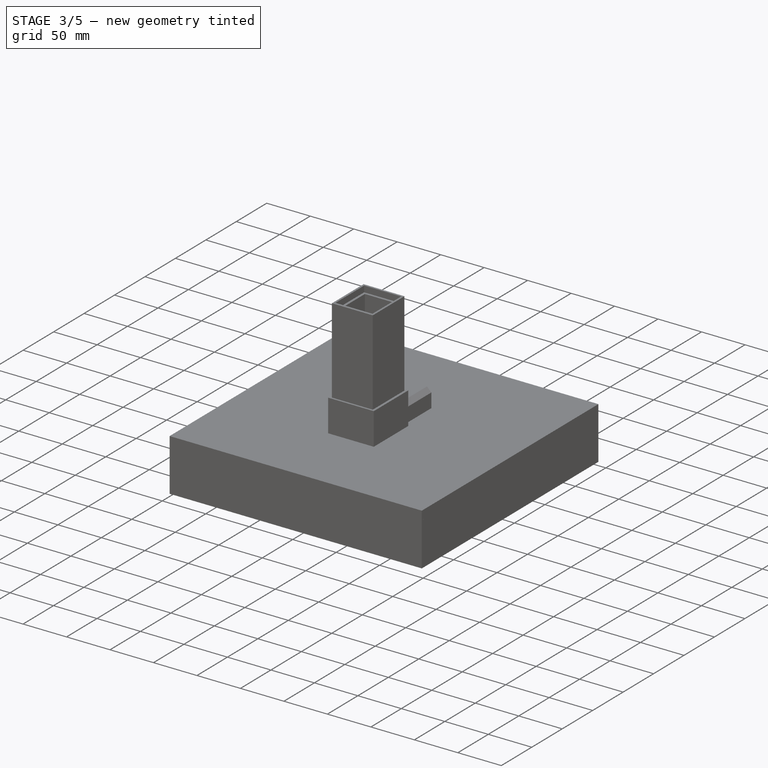
[diagram: stage 3 of 5 — iso view after this stage's code; geometry added in this stage tinted green]
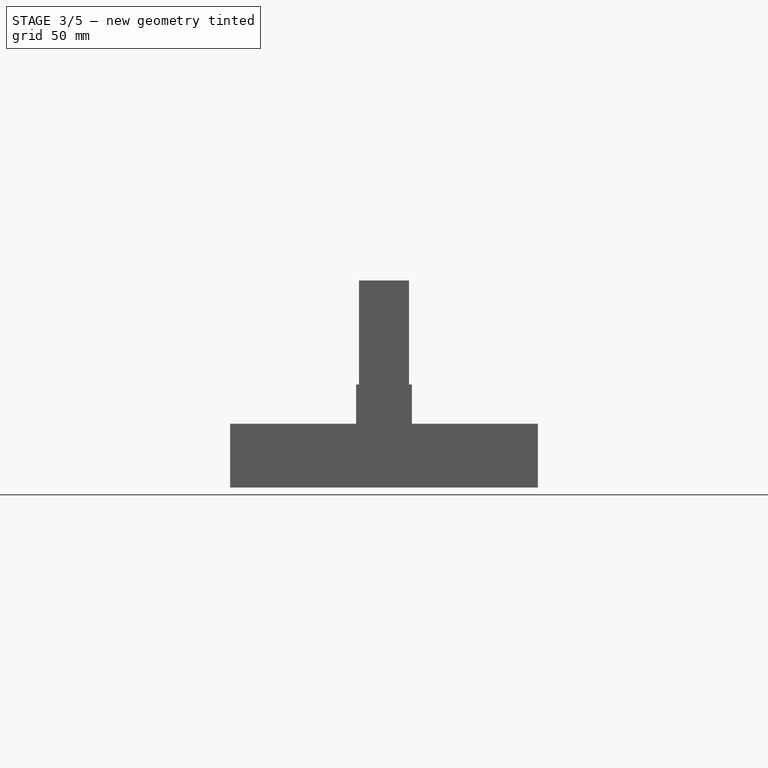
[diagram: stage 3 of 5 — front view after this stage's code; geometry added in this stage tinted green]
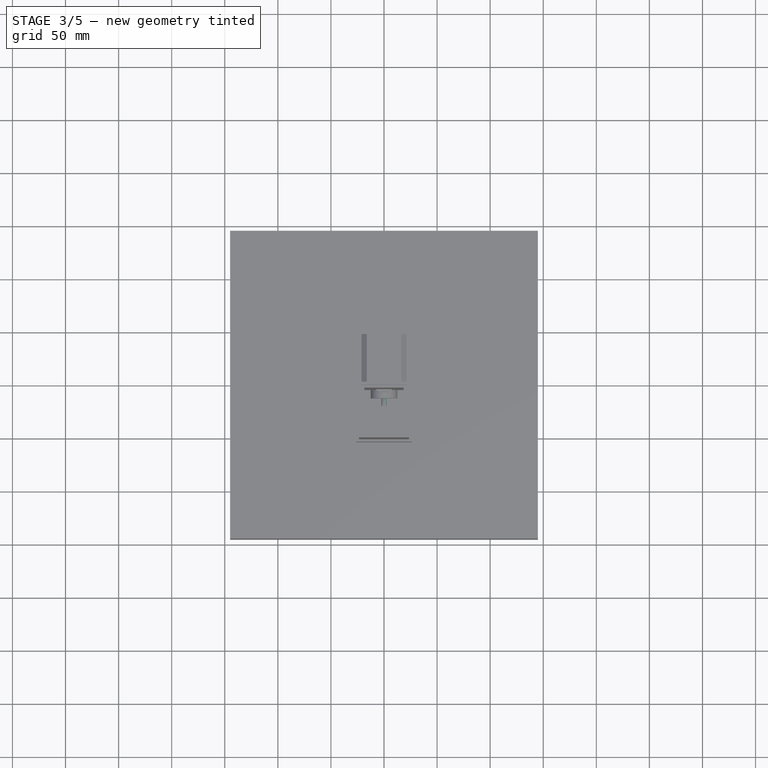
[diagram: stage 3 of 5 — top view after this stage's code; geometry added in this stage tinted green]
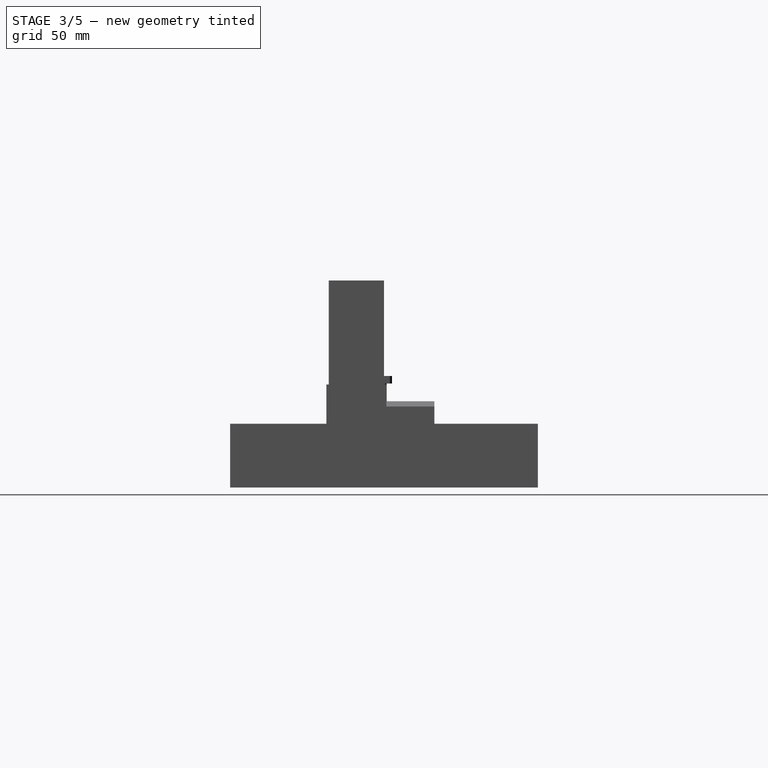
[diagram: stage 3 of 5 — right view after this stage's code; geometry added in this stage tinted green]
FEATURE [PartDesign::Body] Body  label="Würfel"
  Group = -> [Sketch,Pad]
  Origin = -> Origin
  Tip = -> Pad
FEATURE [Sketcher::SketchObject] Sketch005
  MapMode = 5
  Placement = pos=(0,0,0) rot=(1,0,0;1.5708rad)
  Support = -> [XZ_Plane002]
  sketch-geometry (4):
    g0: LineSegment StartX=-21.25 StartY=-21.25 StartZ=0 EndX=21.25 EndY=-21.25 EndZ=0
    g1: LineSegment StartX=21.25 StartY=-21.25 StartZ=0 EndX=21.25 EndY=21.25 EndZ=0
    g2: LineSegment StartX=21.25 StartY=21.25 StartZ=0 EndX=-21.25 EndY=21.25 EndZ=0
    g3: LineSegment StartX=-21.25 StartY=21.25 StartZ=0 EndX=-21.25 EndY=-21.25 EndZ=0
  constraints (10):
    c: Coincident(g0,g1)
    c: Coincident(g1,g2)
    c: Coincident(g2,g3)
    c: Coincident(g3,g0)
    c: Horizontal(g0)
    c: Vertical(g3)
    c: Symmetric(g2,g1,g-2)
    c: Symmetric(g1,g0,g-1)
    c: DistanceX(g2,g2) = 42.5
    c: DistanceY(g1,g1) = 42.5
FEATURE [PartDesign::Pad] Pad002
  Length = 47.4
  Length2 = 100
  Placement = pos=(0,0,0) rot=(1,0,0;1.5708rad)
  Profile = -> Sketch005
  Reversed = true
  Type = 0
FEATURE [PartDesign::Chamfer] Chamfer
  Base = -> Pad002 [Edge5]
  BaseFeature = -> Pad002
  Placement = pos=(0,0,0) rot=(1,0,0;1.5708rad)
  Size = 5
FEATURE [PartDesign::Chamfer] Chamfer001
  Base = -> Chamfer [Edge15]
  BaseFeature = -> Chamfer
  Placement = pos=(0,0,0) rot=(1,0,0;1.5708rad)
  Size = 5
FEATURE [PartDesign::Body] Body002  label="MotorHinten"
  Group = -> [Sketch005,Pad002,Chamfer,Chamfer001,Chamfer002,Chamfer003,CopyPocket002,Sketch034,Pad007,Sketch035,Pad008]
  Origin = -> Origin002
  Placement = pos=(0,2.25,150) rot=(0,0,1;0rad)
  Tip = -> Pad008
FEATURE [Sketcher::SketchObject] Sketch036
  MapMode = 5
  Placement = pos=(0,0,0) rot=(1,0,0;1.5708rad)
  Support = -> [XZ_Plane007]
  sketch-geometry (1):
    g0: Circle CenterX=0 CenterY=0 CenterZ=0 NormalX=0 NormalY=0 NormalZ=1 AngleXU=0 Radius=12.5
  constraints (2):
    c: Radius(g0) = 12.5
    c: Coincident(g0,g-1)
FEATURE [PartDesign::Pad] Pad009
  Length = 26
  Length2 = 100
  Midplane = true
  Placement = pos=(0,0,0) rot=(1,0,0;1.5708rad)
  Profile = -> Sketch036
  Type = 0
FEATURE [Sketcher::SketchObject] Sketch038
  MapMode = 5
  Placement = pos=(0,-13,0) rot=(1,0,0;1.5708rad)
  Support = -> [Pad009]
  sketch-geometry (1):
    g0: Circle CenterX=0 CenterY=0 CenterZ=0 NormalX=0 NormalY=0 NormalZ=1 AngleXU=0 Radius=2.5
  constraints (2):
    c: Coincident(g0,g-1)
    c: Radius(g0) = 2.5
FEATURE [PartDesign::Pocket] Pocket023
  BaseFeature = -> Pad009
  Length = 8
  Length2 = 100
  Placement = pos=(0,0,0) rot=(1,0,0;1.5708rad)
  Profile = -> Sketch038
  Type = 0
FEATURE [Sketcher::SketchObject] Sketch037
  MapMode = 5
  Placement = pos=(0,13,0) rot=(-1,0,0;1.5708rad)
  Support = -> [Pocket023]
  sketch-geometry (1):
    g0: Circle CenterX=0 CenterY=0 CenterZ=0 NormalX=0 NormalY=0 NormalZ=1 AngleXU=0 Radius=2.5
  constraints (2):
    c: Coincident(g0,g-1)
    c: Radius(g0) = 2.5
FEATURE [PartDesign::Pocket] Pocket024
  BaseFeature = -> Pocket023
  Length = 8
  Length2 = 100
  Placement = pos=(0,0,0) rot=(1,0,0;1.5708rad)
  Profile = -> Sketch037
  Type = 0
FEATURE [PartDesign::Body] Body011  label="KupplungVorne"
  Group = -> [Sketch048,Pad017,Sketch049,Pocket028,Sketch050,Pocket027]
  Origin = -> Origin011
  Placement = pos=(0,17.75,150) rot=(0,0,1;0rad)
  Tip = -> Pocket027
FEATURE [Sketcher::SketchObject] Sketch051
  MapMode = 5
  Placement = pos=(0,0,0) rot=(1,0,0;1.5708rad)
  Support = -> [XZ_Plane013]
  sketch-geometry (1):
    g0: Circle CenterX=0 CenterY=0 CenterZ=0 NormalX=0 NormalY=0 NormalZ=1 AngleXU=0 Radius=12.5
  constraints (2):
    c: Radius(g0) = 12.5
    c: Coincident(g0,g-1)
FEATURE [PartDesign::Pad] Pad018
  Length = 26
  Length2 = 100
  Midplane = true
  Placement = pos=(0,0,0) rot=(1,0,0;1.5708rad)
  Profile = -> Sketch051
  Type = 0
FEATURE [Sketcher::SketchObject] Sketch052
  MapMode = 5
  Placement = pos=(0,0,0) rot=(1,0,0;1.5708rad)
  Support = -> [XZ_Plane012]
  sketch-geometry (4):
    g0: LineSegment StartX=-21.25 StartY=-21.25 StartZ=0 EndX=21.25 EndY=-21.25 EndZ=0
    g1: LineSegment StartX=21.25 StartY=-21.25 StartZ=0 EndX=21.25 EndY=21.25 EndZ=0
    g2: LineSegment StartX=21.25 StartY=21.25 StartZ=0 EndX=-21.25 EndY=21.25 EndZ=0
    g3: LineSegment StartX=-21.25 StartY=21.25 StartZ=0 EndX=-21.25 EndY=-21.25 EndZ=0
  constraints (10):
    c: Coincident(g0,g1)
    c: Coincident(g1,g2)
    c: Coincident(g2,g3)
    c: Coincident(g3,g0)
    c: Horizontal(g0)
    c: Vertical(g3)
    c: Symmetric(g2,g1,g-2)
    c: Symmetric(g1,g0,g-1)
    c: DistanceX(g2,g2) = 42.5
    c: DistanceY(g1,g1) = 42.5
FEATURE [PartDesign::ShapeBinder] CopyPocket005
  Placement = pos=(0,0,-41.5) rot=(0,0,1;0rad)
FEATURE [PartDesign::Pad] Pad021
  Length = 47.4
  Length2 = 100
  Placement = pos=(0,0,0) rot=(1,0,0;1.5708rad)
  Profile = -> Sketch052
  Reversed = true
  Type = 0
FEATURE [PartDesign::Chamfer] Chamfer013
  Base = -> Pad021 [Edge5]
  BaseFeature = -> Pad021
  Placement = pos=(0,0,0) rot=(1,0,0;1.5708rad)
  Size = 5
FEATURE [PartDesign::Chamfer] Chamfer014
  Base = -> Chamfer013 [Edge15]
  BaseFeature = -> Chamfer013
  Placement = pos=(0,0,0) rot=(1,0,0;1.5708rad)
  Size = 5
FEATURE [PartDesign::Chamfer] Chamfer012
  Base = -> Chamfer014 [Edge16]
  BaseFeature = -> Chamfer014
  Placement = pos=(0,0,0) rot=(1,0,0;1.5708rad)
  Size = 5
FEATURE [PartDesign::Chamfer] Chamfer015
  Base = -> Chamfer012 [Edge15]
  BaseFeature = -> Chamfer012
  Placement = pos=(0,0,0) rot=(1,0,0;1.5708rad)
  Size = 5
FEATURE [Sketcher::SketchObject] Sketch054
  MapMode = 5
  Placement = pos=(0,0,0) rot=(1,0,0;1.5708rad)
  Support = -> [Chamfer015]
  sketch-geometry (1):
    g0: Circle CenterX=0 CenterY=0 CenterZ=0 NormalX=0 NormalY=0 NormalZ=1 AngleXU=0 Radius=11
  constraints (1):
    c: Radius(g0) = 11
FEATURE [PartDesign::Pad] Pad020
  BaseFeature = -> Chamfer015
  Length = 1.5
  Length2 = 100
  Placement = pos=(0,0,0) rot=(1,0,0;1.5708rad)
  Profile = -> Sketch054
  Type = 0
FEATURE [Sketcher::SketchObject] Sketch053
  MapMode = 5
  Placement = pos=(0,-1.5,0) rot=(1,0,0;1.5708rad)
  Support = -> [Pad020]
  sketch-geometry (1):
    g0: Circle CenterX=0 CenterY=0 CenterZ=0 NormalX=0 NormalY=0 NormalZ=1 AngleXU=0 Radius=2.5
  constraints (1):
    c: Radius(g0) = 2.5
FEATURE [PartDesign::Pad] Pad019
  BaseFeature = -> Pad020
  Length = 18.5
  Length2 = 100
  Placement = pos=(0,0,0) rot=(1,0,0;1.5708rad)
  Profile = -> Sketch053
  Type = 0
FEATURE [PartDesign::Body] Body012  label="MotorRechts"
  Group = -> [Sketch052,Pad021,Chamfer013,Chamfer014,Chamfer012,Chamfer015,CopyPocket005,Sketch054,Pad020,Sketch053,Pad019]
  Origin = -> Origin012
  Placement = pos=(2.25,0,150) rot=(0,0,-1;1.5708rad)
  Tip = -> Pad019
FEATURE [Sketcher::SketchObject] Sketch055
  MapMode = 5
  Placement = pos=(0,-13,0) rot=(1,0,0;1.5708rad)
  Support = -> [Pad018]
  sketch-geometry (1):
    g0: Circle CenterX=0 CenterY=0 CenterZ=0 NormalX=0 NormalY=0 NormalZ=1 AngleXU=0 Radius=2.5
  constraints (2):
    c: Coincident(g0,g-1)
    c: Radius(g0) = 2.5
FEATURE [PartDesign::Pocket] Pocket030
  BaseFeature = -> Pad018
  Length = 8
  Length2 = 100
  Placement = pos=(0,0,0) rot=(1,0,0;1.5708rad)
  Profile = -> Sketch055
  Type = 0
FEATURE [Sketcher::SketchObject] Sketch056
  MapMode = 5
  Placement = pos=(0,13,0) rot=(-1,0,0;1.5708rad)
  Support = -> [Pocket030]
  sketch-geometry (1):
    g0: Circle CenterX=0 CenterY=0 CenterZ=0 NormalX=0 NormalY=0 NormalZ=1 AngleXU=0 Radius=2.5
  constraints (2):
    c: Coincident(g0,g-1)
    c: Radius(g0) = 2.5
FEATURE [PartDesign::Pocket] Pocket029
  BaseFeature = -> Pocket030
  Length = 8
  Length2 = 100
  Placement = pos=(0,0,0) rot=(1,0,0;1.5708rad)
  Profile = -> Sketch056
  Type = 0
FEATURE [PartDesign::Body] Body013  label="KupplungRechts"
  Group = -> [Sketch051,Pad018,Sketch055,Pocket030,Sketch056,Pocket029]
  Origin = -> Origin013
  Placement = pos=(-17.75,0,150) rot=(0,0,-1;1.5708rad)
  Tip = -> Pocket029
FEATURE [PartDesign::ShapeBinder] CopyPocket006
  Placement = pos=(0,0,-41.5) rot=(0,0,1;0rad)
FEATURE [Sketcher::SketchObject] Sketch057
  MapMode = 5
  Placement = pos=(0,0,0) rot=(1,0,0;1.5708rad)
  Support = -> [XZ_Plane014]
  sketch-geometry (1):
    g0: Circle CenterX=0 CenterY=0 CenterZ=0 NormalX=0 NormalY=0 NormalZ=1 AngleXU=0 Radius=12.5
  constraints (2):
    c: Radius(g0) = 12.5
    c: Coincident(g0,g-1)
FEATURE [PartDesign::Pad] Pad023
  Length = 26
  Length2 = 100
  Midplane = true
  Placement = pos=(0,0,0) rot=(1,0,0;1.5708rad)
  Profile = -> Sketch057
  Type = 0
FEATURE [Sketcher::SketchObject] Sketch058
  MapMode = 5
  Placement = pos=(0,-13,0) rot=(1,0,0;1.5708rad)
  Support = -> [Pad023]
  sketch-geometry (1):
    g0: Circle CenterX=0 CenterY=0 CenterZ=0 NormalX=0 NormalY=0 NormalZ=1 AngleXU=0 Radius=2.5
  constraints (2):
    c: Coincident(g0,g-1)
    c: Radius(g0) = 2.5
FEATURE [PartDesign::Pocket] Pocket032
  BaseFeature = -> Pad023
  Length = 8
  Length2 = 100
  Placement = pos=(0,0,0) rot=(1,0,0;1.5708rad)
  Profile = -> Sketch058
  Type = 0
FEATURE [Sketcher::SketchObject] Sketch060
  MapMode = 5
  Placement = pos=(0,0,0) rot=(1,0,0;1.5708rad)
  Support = -> [XZ_Plane015]
  sketch-geometry (4):
    g0: LineSegment StartX=-21.25 StartY=-21.25 StartZ=0 EndX=21.25 EndY=-21.25 EndZ=0
    g1: LineSegment StartX=21.25 StartY=-21.25 StartZ=0 EndX=21.25 EndY=21.25 EndZ=0
    g2: LineSegment StartX=21.25 StartY=21.25 StartZ=0 EndX=-21.25 EndY=21.25 EndZ=0
    g3: LineSegment StartX=-21.25 StartY=21.25 StartZ=0 EndX=-21.25 EndY=-21.25 EndZ=0
  constraints (10):
    c: Coincident(g0,g1)
    c: Coincident(g1,g2)
    c: Coincident(g2,g3)
    c: Coincident(g3,g0)
    c: Horizontal(g0)
    c: Vertical(g3)
    c: Symmetric(g2,g1,g-2)
    c: Symmetric(g1,g0,g-1)
    c: DistanceX(g2,g2) = 42.5
    c: DistanceY(g1,g1) = 42.5
FEATURE [PartDesign::Pad] Pad025
  Length = 47.4
  Length2 = 100
  Placement = pos=(0,0,0) rot=(1,0,0;1.5708rad)
  Profile = -> Sketch060
  Reversed = true
  Type = 0
FEATURE [PartDesign::Chamfer] Chamfer019
  Base = -> Pad025 [Edge5]
  BaseFeature = -> Pad025
  Placement = pos=(0,0,0) rot=(1,0,0;1.5708rad)
  Size = 5
FEATURE [PartDesign::Chamfer] Chamfer017
  Base = -> Chamfer019 [Edge15]
  BaseFeature = -> Chamfer019
  Placement = pos=(0,0,0) rot=(1,0,0;1.5708rad)
  Size = 5
FEATURE [PartDesign::Chamfer] Chamfer016
  Base = -> Chamfer017 [Edge16]
  BaseFeature = -> Chamfer017
  Placement = pos=(0,0,0) rot=(1,0,0;1.5708rad)
  Size = 5
FEATURE [PartDesign::Chamfer] Chamfer018
  Base = -> Chamfer016 [Edge15]
  BaseFeature = -> Chamfer016
  Placement = pos=(0,0,0) rot=(1,0,0;1.5708rad)
  Size = 5
FEATURE [Sketcher::SketchObject] Sketch061
  MapMode = 5
  Placement = pos=(0,0,0) rot=(1,0,0;1.5708rad)
  Support = -> [Chamfer018]
  sketch-geometry (1):
    g0: Circle CenterX=0 CenterY=0 CenterZ=0 NormalX=0 NormalY=0 NormalZ=1 AngleXU=0 Radius=11
  constraints (1):
    c: Radius(g0) = 11
FEATURE [PartDesign::Pad] Pad022
  BaseFeature = -> Chamfer018
  Length = 1.5
  Length2 = 100
  Placement = pos=(0,0,0) rot=(1,0,0;1.5708rad)
  Profile = -> Sketch061
  Type = 0
FEATURE [Sketcher::SketchObject] Sketch059
  MapMode = 5
  Placement = pos=(0,-1.5,0) rot=(1,0,0;1.5708rad)
  Support = -> [Pad022]
  sketch-geometry (1):
    g0: Circle CenterX=0 CenterY=0 CenterZ=0 NormalX=0 NormalY=0 NormalZ=1 AngleXU=0 Radius=2.5
  constraints (1):
    c: Radius(g0) = 2.5
FEATURE [PartDesign::Pad] Pad024
  BaseFeature = -> Pad022
  Length = 18.5
  Length2 = 100
  Placement = pos=(0,0,0) rot=(1,0,0;1.5708rad)
  Profile = -> Sketch059
  Type = 0
FEATURE [PartDesign::Body] Body014  label="MotorLinks"
  Group = -> [Sketch060,Pad025,Chamfer019,Chamfer017,Chamfer016,Chamfer018,CopyPocket006,Sketch061,Pad022,Sketch059,Pad024]
  Origin = -> Origin015
  Placement = pos=(-2.25,0,150) rot=(0,0,1;1.5708rad)
  Tip = -> Pad024
FEATURE [Sketcher::SketchObject] Sketch062
  MapMode = 5
  Placement = pos=(0,13,0) rot=(-1,0,0;1.5708rad)
  Support = -> [Pocket032]
  sketch-geometry (1):
    g0: Circle CenterX=0 CenterY=0 CenterZ=0 NormalX=0 NormalY=0 NormalZ=1 AngleXU=0 Radius=2.5
  constraints (2):
    c: Coincident(g0,g-1)
    c: Radius(g0) = 2.5
FEATURE [PartDesign::Pocket] Pocket031
  BaseFeature = -> Pocket032
  Length = 8
  Length2 = 100
  Placement = pos=(0,0,0) rot=(1,0,0;1.5708rad)
  Profile = -> Sketch062
  Type = 0
FEATURE [Sketcher::SketchObject] Sketch075
  MapMode = 5
  Placement = pos=(0,-1.5,0) rot=(1,0,0;1.5708rad)
  Support = -> [Pad034]
  sketch-geometry (1):
    g0: Circle CenterX=0 CenterY=0 CenterZ=0 NormalX=0 NormalY=0 NormalZ=1 AngleXU=0 Radius=2.5
  constraints (1):
    c: Radius(g0) = 2.5
FEATURE [PartDesign::Pad] Pad035
  BaseFeature = -> Pad034
  Length = 18.5
  Length2 = 100
  Placement = pos=(0,0,0) rot=(1,0,0;1.5708rad)
  Profile = -> Sketch075
  Type = 0
FEATURE [Sketcher::SketchObject] Sketch078
  MapMode = 5
  Placement = pos=(0,-13,0) rot=(1,0,0;1.5708rad)
  Support = -> [Pad036]
  sketch-geometry (1):
    g0: Circle CenterX=0 CenterY=0 CenterZ=0 NormalX=0 NormalY=0 NormalZ=1 AngleXU=0 Radius=2.5
  constraints (2):
    c: Coincident(g0,g-1)
    c: Radius(g0) = 2.5
FEATURE [PartDesign::Pocket] Pocket036
  BaseFeature = -> Pad036
  Length = 8
  Length2 = 100
  Placement = pos=(0,0,0) rot=(1,0,0;1.5708rad)
  Profile = -> Sketch078
  Type = 0
FEATURE [Sketcher::SketchObject] Sketch073
  MapMode = 5
  Placement = pos=(0,13,0) rot=(-1,0,0;1.5708rad)
  Support = -> [Pocket036]
  sketch-geometry (1):
    g0: Circle CenterX=0 CenterY=0 CenterZ=0 NormalX=0 NormalY=0 NormalZ=1 AngleXU=0 Radius=2.5
  constraints (2):
    c: Coincident(g0,g-1)
    c: Radius(g0) = 2.5
FEATURE [PartDesign::Pocket] Pocket035
  BaseFeature = -> Pocket036
  Length = 8
  Length2 = 100
  Placement = pos=(0,0,0) rot=(1,0,0;1.5708rad)
  Profile = -> Sketch073
  Type = 0
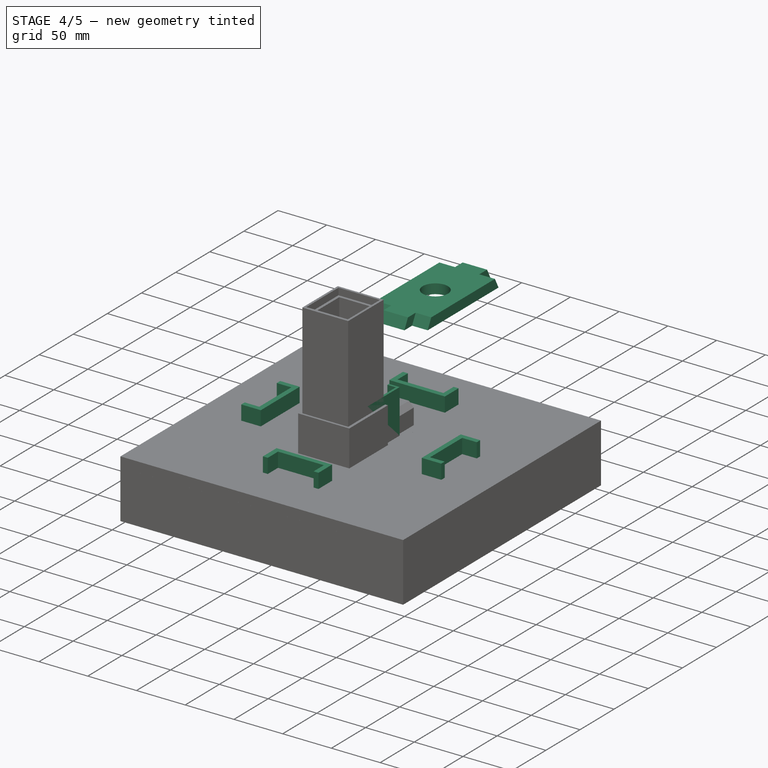
[diagram: stage 4 of 5 — iso view after this stage's code; geometry added in this stage tinted green]
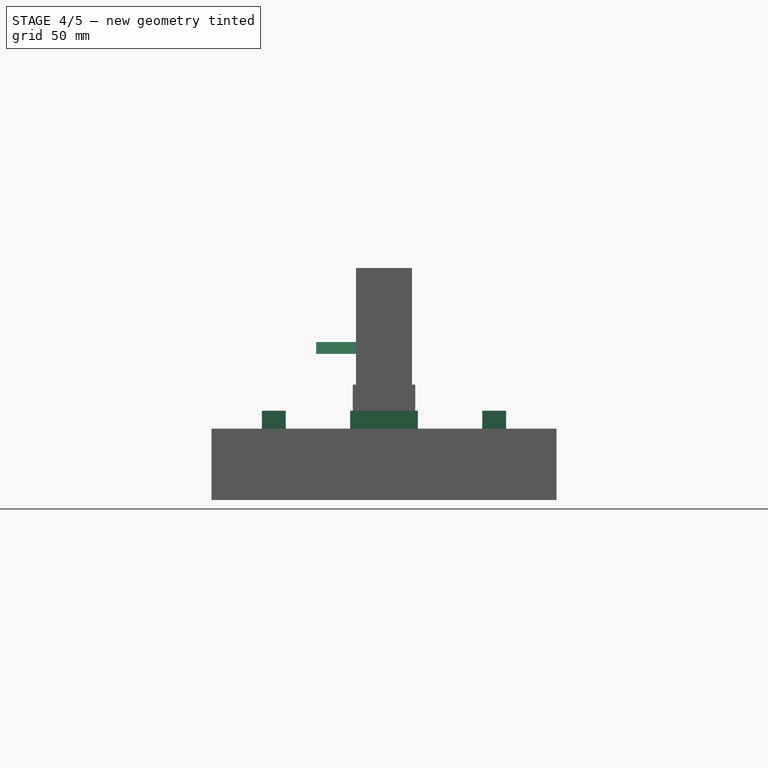
[diagram: stage 4 of 5 — front view after this stage's code; geometry added in this stage tinted green]
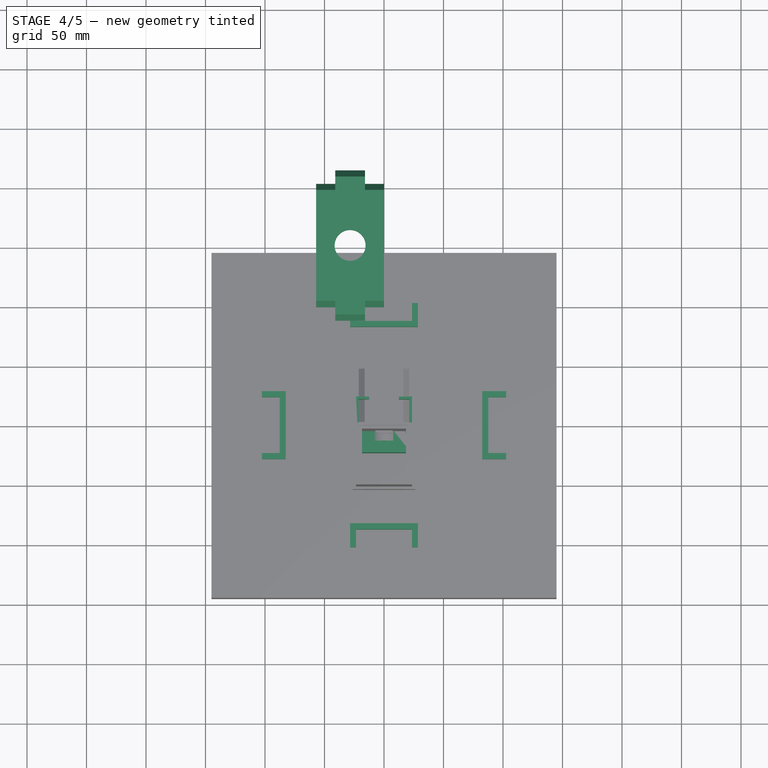
[diagram: stage 4 of 5 — top view after this stage's code; geometry added in this stage tinted green]
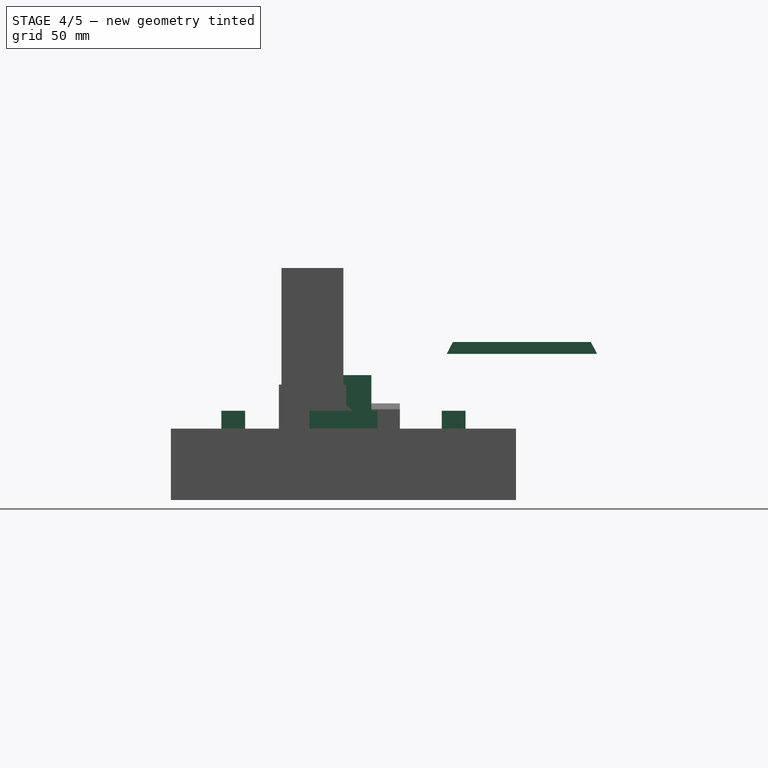
[diagram: stage 4 of 5 — right view after this stage's code; geometry added in this stage tinted green]
FEATURE [PartDesign::Chamfer] Chamfer002
  Base = -> Chamfer001 [Edge16]
  BaseFeature = -> Chamfer001
  Placement = pos=(0,0,0) rot=(1,0,0;1.5708rad)
  Size = 5
FEATURE [PartDesign::Chamfer] Chamfer003
  Base = -> Chamfer002 [Edge15]
  BaseFeature = -> Chamfer002
  Placement = pos=(0,0,0) rot=(1,0,0;1.5708rad)
  Size = 5
FEATURE [PartDesign::ShapeBinder] CopyPocket002
  Placement = pos=(0,0,-41.5) rot=(0,0,1;0rad)
FEATURE [Sketcher::SketchObject] Sketch034
  MapMode = 5
  Placement = pos=(0,0,0) rot=(1,0,0;1.5708rad)
  Support = -> [Chamfer003]
  sketch-geometry (1):
    g0: Circle CenterX=0 CenterY=0 CenterZ=0 NormalX=0 NormalY=0 NormalZ=1 AngleXU=0 Radius=11
  constraints (1):
    c: Radius(g0) = 11
FEATURE [PartDesign::Pad] Pad007
  BaseFeature = -> Chamfer003
  Length = 1.5
  Length2 = 100
  Placement = pos=(0,0,0) rot=(1,0,0;1.5708rad)
  Profile = -> Sketch034
  Type = 0
FEATURE [Sketcher::SketchObject] Sketch035
  MapMode = 5
  Placement = pos=(0,-1.5,0) rot=(1,0,0;1.5708rad)
  Support = -> [Pad007]
  sketch-geometry (1):
    g0: Circle CenterX=0 CenterY=0 CenterZ=0 NormalX=0 NormalY=0 NormalZ=1 AngleXU=0 Radius=2.5
  constraints (1):
    c: Radius(g0) = 2.5
FEATURE [PartDesign::Pad] Pad008
  BaseFeature = -> Pad007
  Length = 18.5
  Length2 = 100
  Placement = pos=(0,0,0) rot=(1,0,0;1.5708rad)
  Profile = -> Sketch035
  Type = 0
FEATURE [PartDesign::Body] Body009  label="KupplungOben"
  Group = -> [Sketch042,Pad013,Sketch043,Pocket026,Sketch044,Pocket025]
  Origin = -> Origin009
  Placement = pos=(-28.5,150,48) rot=(1,0,0;1.5708rad)
  Tip = -> Pocket025
FEATURE [PartDesign::ShapeBinder] CopyPocket004
  Placement = pos=(0,0,-41.5) rot=(0,0,1;0rad)
FEATURE [Sketcher::SketchObject] Sketch045
  MapMode = 5
  Placement = pos=(0,0,0) rot=(1,0,0;1.5708rad)
  Support = -> [XZ_Plane010]
  sketch-geometry (4):
    g0: LineSegment StartX=-21.25 StartY=-21.25 StartZ=0 EndX=21.25 EndY=-21.25 EndZ=0
    g1: LineSegment StartX=21.25 StartY=-21.25 StartZ=0 EndX=21.25 EndY=21.25 EndZ=0
    g2: LineSegment StartX=21.25 StartY=21.25 StartZ=0 EndX=-21.25 EndY=21.25 EndZ=0
    g3: LineSegment StartX=-21.25 StartY=21.25 StartZ=0 EndX=-21.25 EndY=-21.25 EndZ=0
  constraints (10):
    c: Coincident(g0,g1)
    c: Coincident(g1,g2)
    c: Coincident(g2,g3)
    c: Coincident(g3,g0)
    c: Horizontal(g0)
    c: Vertical(g3)
    c: Symmetric(g2,g1,g-2)
    c: Symmetric(g1,g0,g-1)
    c: DistanceX(g2,g2) = 42.5
    c: DistanceY(g1,g1) = 42.5
FEATURE [PartDesign::Pad] Pad015
  Length = 47.4
  Length2 = 100
  Placement = pos=(0,0,0) rot=(1,0,0;1.5708rad)
  Profile = -> Sketch045
  Reversed = true
  Type = 0
FEATURE [PartDesign::Chamfer] Chamfer009
  Base = -> Pad015 [Edge5]
  BaseFeature = -> Pad015
  Placement = pos=(0,0,0) rot=(1,0,0;1.5708rad)
  Size = 5
FEATURE [PartDesign::Chamfer] Chamfer008
  Base = -> Chamfer009 [Edge15]
  BaseFeature = -> Chamfer009
  Placement = pos=(0,0,0) rot=(1,0,0;1.5708rad)
  Size = 5
FEATURE [PartDesign::Chamfer] Chamfer010
  Base = -> Chamfer008 [Edge16]
  BaseFeature = -> Chamfer008
  Placement = pos=(0,0,0) rot=(1,0,0;1.5708rad)
  Size = 5
FEATURE [PartDesign::Chamfer] Chamfer011
  Base = -> Chamfer010 [Edge15]
  BaseFeature = -> Chamfer010
  Placement = pos=(0,0,0) rot=(1,0,0;1.5708rad)
  Size = 5
FEATURE [Sketcher::SketchObject] Sketch047
  MapMode = 5
  Placement = pos=(0,0,0) rot=(1,0,0;1.5708rad)
  Support = -> [Chamfer011]
  sketch-geometry (1):
    g0: Circle CenterX=0 CenterY=0 CenterZ=0 NormalX=0 NormalY=0 NormalZ=1 AngleXU=0 Radius=11
  constraints (1):
    c: Radius(g0) = 11
FEATURE [PartDesign::Pad] Pad016
  BaseFeature = -> Chamfer011
  Length = 1.5
  Length2 = 100
  Placement = pos=(0,0,0) rot=(1,0,0;1.5708rad)
  Profile = -> Sketch047
  Type = 0
FEATURE [Sketcher::SketchObject] Sketch046
  MapMode = 5
  Placement = pos=(0,-1.5,0) rot=(1,0,0;1.5708rad)
  Support = -> [Pad016]
  sketch-geometry (1):
    g0: Circle CenterX=0 CenterY=0 CenterZ=0 NormalX=0 NormalY=0 NormalZ=1 AngleXU=0 Radius=2.5
  constraints (1):
    c: Radius(g0) = 2.5
FEATURE [PartDesign::Pad] Pad014
  BaseFeature = -> Pad016
  Length = 18.5
  Length2 = 100
  Placement = pos=(0,0,0) rot=(1,0,0;1.5708rad)
  Profile = -> Sketch046
  Type = 0
FEATURE [PartDesign::Body] Body010  label="MotorVorne"
  Group = -> [Sketch045,Pad015,Chamfer009,Chamfer008,Chamfer010,Chamfer011,CopyPocket004,Sketch047,Pad016,Sketch046,Pad014]
  Origin = -> Origin010
  Placement = pos=(0,-2.25,150) rot=(0,0,1;3.14159rad)
  Tip = -> Pad014
FEATURE [Sketcher::SketchObject] Sketch048
  MapMode = 5
  Placement = pos=(0,0,0) rot=(1,0,0;1.5708rad)
  Support = -> [XZ_Plane011]
  sketch-geometry (1):
    g0: Circle CenterX=0 CenterY=0 CenterZ=0 NormalX=0 NormalY=0 NormalZ=1 AngleXU=0 Radius=12.5
  constraints (2):
    c: Radius(g0) = 12.5
    c: Coincident(g0,g-1)
FEATURE [PartDesign::Pad] Pad017
  Length = 26
  Length2 = 100
  Midplane = true
  Placement = pos=(0,0,0) rot=(1,0,0;1.5708rad)
  Profile = -> Sketch048
  Type = 0
FEATURE [Sketcher::SketchObject] Sketch049
  MapMode = 5
  Placement = pos=(0,-13,0) rot=(1,0,0;1.5708rad)
  Support = -> [Pad017]
  sketch-geometry (1):
    g0: Circle CenterX=0 CenterY=0 CenterZ=0 NormalX=0 NormalY=0 NormalZ=1 AngleXU=0 Radius=2.5
  constraints (2):
    c: Coincident(g0,g-1)
    c: Radius(g0) = 2.5
FEATURE [PartDesign::Pocket] Pocket028
  BaseFeature = -> Pad017
  Length = 8
  Length2 = 100
  Placement = pos=(0,0,0) rot=(1,0,0;1.5708rad)
  Profile = -> Sketch049
  Type = 0
FEATURE [Sketcher::SketchObject] Sketch050
  MapMode = 5
  Placement = pos=(0,13,0) rot=(-1,0,0;1.5708rad)
  Support = -> [Pocket028]
  sketch-geometry (1):
    g0: Circle CenterX=0 CenterY=0 CenterZ=0 NormalX=0 NormalY=0 NormalZ=1 AngleXU=0 Radius=2.5
  constraints (2):
    c: Coincident(g0,g-1)
    c: Radius(g0) = 2.5
FEATURE [PartDesign::Pocket] Pocket027
  BaseFeature = -> Pocket028
  Length = 8
  Length2 = 100
  Placement = pos=(0,0,0) rot=(1,0,0;1.5708rad)
  Profile = -> Sketch050
  Type = 0
FEATURE [PartDesign::Body] Body015  label="KupplungLinks"
  Group = -> [Sketch057,Pad023,Sketch058,Pocket032,Sketch062,Pocket031]
  Origin = -> Origin014
  Placement = pos=(17.75,0,150) rot=(0,0,1;1.5708rad)
  Tip = -> Pocket031
FEATURE [Sketcher::SketchObject] Sketch067
  MapMode = 5
  Support = -> [XY_Plane016]
  sketch-geometry (12):
    g0: LineSegment StartX=-145 StartY=28.5 StartZ=0 EndX=-28.5 EndY=28.5 EndZ=0
    g1: LineSegment StartX=-28.5 StartY=28.5 StartZ=0 EndX=-28.5 EndY=145 EndZ=0
    g2: LineSegment StartX=-28.5 StartY=145 StartZ=0 EndX=28.5 EndY=145 EndZ=0
    g3: LineSegment StartX=28.5 StartY=145 StartZ=0 EndX=28.5 EndY=28.5 EndZ=0
    g4: LineSegment StartX=28.5 StartY=28.5 StartZ=0 EndX=145 EndY=28.5 EndZ=0
    g5: LineSegment StartX=145 StartY=28.5 StartZ=0 EndX=145 EndY=-28.5 EndZ=0
    g6: LineSegment StartX=145 StartY=-28.5 StartZ=0 EndX=28.5 EndY=-28.5 EndZ=0
    g7: LineSegment StartX=28.5 StartY=-28.5 StartZ=0 EndX=28.5 EndY=-145 EndZ=0
    g8: LineSegment StartX=28.5 StartY=-145 StartZ=0 EndX=-28.5 EndY=-145 EndZ=0
    g9: LineSegment StartX=-28.5 StartY=-145 StartZ=0 EndX=-28.5 EndY=-28.5 EndZ=0
    g10: LineSegment StartX=-28.5 StartY=-28.5 StartZ=0 EndX=-145 EndY=-28.5 EndZ=0
    g11: LineSegment StartX=-145 StartY=-28.5 StartZ=0 EndX=-145 EndY=28.5 EndZ=0
  constraints (34):
    c: Horizontal(g0)
    c: Coincident(g0,g1)
    c: Vertical(g1)
    c: Coincident(g1,g2)
    c: Horizontal(g2)
    c: Coincident(g2,g3)
    c: Vertical(g3)
    c: Coincident(g3,g4)
    c: Horizontal(g4)
    c: Coincident(g4,g5)
    c: Vertical(g5)
    c: Coincident(g5,g6)
    c: Horizontal(g6)
    c: Coincident(g6,g7)
    c: Vertical(g7)
    c: Coincident(g7,g8)
    c: Horizontal(g8)
    c: Coincident(g8,g9)
    c: Vertical(g9)
    c: Coincident(g9,g10)
    c: Horizontal(g10)
    c: Coincident(g10,g11)
    c: Coincident(g11,g0)
    c: Vertical(g11)
    c: Symmetric(g0,g4,g-2)
    c: Symmetric(g10,g5,g-2)
    c: Symmetric(g1,g8,g-1)
    c: Symmetric(g2,g7,g-1)
    c: DistanceY(g8,g1) = 290
    c: DistanceX(g0,g4) = 290
    c: Equal(g2,g11)
    c: Symmetric(g0,g3,g-2)
    c: Symmetric(g0,g9,g-1)
    c: DistanceX(g2,g2) = 57
FEATURE [PartDesign::Pad] Pad029
  Length = 10
  Length2 = 100
  Profile = -> Sketch067
  Reversed = true
  Type = 0
FEATURE [Sketcher::SketchObject] Sketch068
  ExternalGeometry = -> [Pad029]
  MapMode = 5
  Support = -> [Pad029]
  sketch-geometry (8):
    g0: LineSegment StartX=-82.6 StartY=28.5 StartZ=0 EndX=-82.6 EndY=-28.5 EndZ=0
    g1: LineSegment StartX=-82.6 StartY=-28.5 StartZ=0 EndX=-102.6 EndY=-28.5 EndZ=0
    g2: LineSegment StartX=-102.6 StartY=-28.5 StartZ=0 EndX=-102.6 EndY=-23.5 EndZ=0
    g3: LineSegment StartX=-102.6 StartY=-23.5 StartZ=0 EndX=-87.6 EndY=-23.5 EndZ=0
    g4: LineSegment StartX=-87.6 StartY=-23.5 StartZ=0 EndX=-87.6 EndY=23.5 EndZ=0
    g5: LineSegment StartX=-87.6 StartY=23.5 StartZ=0 EndX=-102.6 EndY=23.5 EndZ=0
    g6: LineSegment StartX=-102.6 StartY=23.5 StartZ=0 EndX=-102.6 EndY=28.5 EndZ=0
    g7: LineSegment StartX=-102.6 StartY=28.5 StartZ=0 EndX=-82.6 EndY=28.5 EndZ=0
  constraints (24):
    c: PointOnObject(g0,g-3)
    c: PointOnObject(g0,g-4)
    c: Vertical(g0)
    c: Coincident(g0,g1)
    c: Horizontal(g1)
    c: Coincident(g1,g2)
    c: Vertical(g2)
    c: Horizontal(g3)
    c: Coincident(g3,g4)
    c: Vertical(g4)
    c: Coincident(g4,g5)
    c: Horizontal(g5)
    c: Coincident(g5,g6)
    c: Vertical(g6)
    c: Coincident(g6,g7)
    c: Coincident(g7,g0)
    c: Horizontal(g7)
    c: Coincident(g3,g2)
    c: Equal(g6,g2)
    c: Equal(g5,g3)
    c: DistanceX(g4,g0) = 5
    c: DistanceY(g6,g6) = 5
    c: DistanceX(g7,g7) = 20
    c: DistanceX(g-3,g4) = 57.4
FEATURE [PartDesign::Pad] Pad030
  BaseFeature = -> Pad029
  Length = 15
  Length2 = 100
  Profile = -> Sketch068
  Type = 0
FEATURE [Sketcher::SketchObject] Sketch069
  ExternalGeometry = -> [Pad030]
  MapMode = 5
  Support = -> [Pad030]
  sketch-geometry (8):
    g0: LineSegment StartX=-28.5 StartY=82.6 StartZ=0 EndX=28.5 EndY=82.6 EndZ=0
    g1: LineSegment StartX=28.5 StartY=82.6 StartZ=0 EndX=28.5 EndY=102.6 EndZ=0
    g2: LineSegment StartX=28.5 StartY=102.6 StartZ=0 EndX=23.5 EndY=102.6 EndZ=0
    g3: LineSegment StartX=23.5 StartY=102.6 StartZ=0 EndX=23.5 EndY=87.6 EndZ=0
    g4: LineSegment StartX=23.5 StartY=87.6 StartZ=0 EndX=-23.5 EndY=87.6 EndZ=0
    g5: LineSegment StartX=-23.5 StartY=87.6 StartZ=0 EndX=-23.5 EndY=102.6 EndZ=0
    g6: LineSegment StartX=-23.5 StartY=102.6 StartZ=0 EndX=-28.5 EndY=102.6 EndZ=0
    g7: LineSegment StartX=-28.5 StartY=102.6 StartZ=0 EndX=-28.5 EndY=82.6 EndZ=0
  constraints (24):
    c: Horizontal(g0)
    c: Coincident(g0,g1)
    c: Vertical(g1)
    c: Coincident(g1,g2)
    c: Horizontal(g2)
    c: Coincident(g2,g3)
    c: Vertical(g3)
    c: Coincident(g3,g4)
    c: Horizontal(g4)
    c: Coincident(g4,g5)
    c: Vertical(g5)
    c: Horizontal(g6)
    c: Coincident(g6,g7)
    c: Coincident(g7,g0)
    c: Vertical(g7)
    c: Coincident(g6,g5)
    c: Equal(g2,g6)
    c: Equal(g5,g3)
    c: PointOnObject(g0,g-3)
    c: DistanceX(g6,g6) = 5
    c: DistanceY(g7,g7) = 20
    c: DistanceY(g0,g4) = 5
    c: PointOnObject(g0,g-4)
    c: DistanceY(g3,g-4) = 57.4
FEATURE [PartDesign::Pad] Pad031
  BaseFeature = -> Pad030
  Length = 15
  Length2 = 100
  Profile = -> Sketch069
  Type = 0
FEATURE [Sketcher::SketchObject] Sketch070
  ExternalGeometry = -> [Pad031]
  MapMode = 5
  Support = -> [Pad031]
  sketch-geometry (8):
    g0: LineSegment StartX=82.6 StartY=28.5 StartZ=0 EndX=102.6 EndY=28.5 EndZ=0
    g1: LineSegment StartX=102.6 StartY=28.5 StartZ=0 EndX=102.6 EndY=23.5 EndZ=0
    g2: LineSegment StartX=102.6 StartY=-28.5 StartZ=0 EndX=82.6 EndY=-28.5 EndZ=0
    g3: LineSegment StartX=82.6 StartY=-28.5 StartZ=0 EndX=82.6 EndY=28.5 EndZ=0
    g4: LineSegment StartX=102.6 StartY=-23.5 StartZ=0 EndX=87.6 EndY=-23.5 EndZ=0
    g5: LineSegment StartX=87.6 StartY=-23.5 StartZ=0 EndX=87.6 EndY=23.5 EndZ=0
    g6: LineSegment StartX=87.6 StartY=23.5 StartZ=0 EndX=102.6 EndY=23.5 EndZ=0
    g7: LineSegment StartX=102.6 StartY=-23.5 StartZ=0 EndX=102.6 EndY=-28.5 EndZ=0
  constraints (24):
    c: Coincident(g0,g1)
    c: Coincident(g7,g2)
    c: Coincident(g2,g3)
    c: Coincident(g3,g0)
    c: Horizontal(g0)
    c: Horizontal(g2)
    c: Vertical(g1)
    c: Vertical(g3)
    c: Horizontal(g4)
    c: Coincident(g4,g5)
    c: Vertical(g5)
    c: Coincident(g5,g6)
    c: Horizontal(g6)
    c: Equal(g6,g4)
    c: Coincident(g1,g6)
    c: Coincident(g7,g4)
    c: Vertical(g7)
    c: Equal(g7,g1)
    c: DistanceY(g7,g7) = 5
    c: DistanceX(g0,g5) = 5
    c: DistanceX(g0,g0) = 20
    c: PointOnObject(g2,g-4)
    c: PointOnObject(g0,g-3)
    c: DistanceX(g5,g-3) = 57.4
FEATURE [PartDesign::Pad] Pad032
  BaseFeature = -> Pad031
  Length = 15
  Length2 = 100
  Profile = -> Sketch070
  Type = 0
FEATURE [Sketcher::SketchObject] Sketch071
  ExternalGeometry = -> [Pad032]
  MapMode = 5
  Support = -> [Pad032]
  sketch-geometry (8):
    g0: LineSegment StartX=-28.5 StartY=-82.6 StartZ=0 EndX=28.5 EndY=-82.6 EndZ=0
    g1: LineSegment StartX=28.5 StartY=-82.6 StartZ=0 EndX=28.5 EndY=-102.6 EndZ=0
    g2: LineSegment StartX=28.5 StartY=-102.6 StartZ=0 EndX=23.5 EndY=-102.6 EndZ=0
    g3: LineSegment StartX=-28.5 StartY=-102.6 StartZ=0 EndX=-28.5 EndY=-82.6 EndZ=0
    g4: LineSegment StartX=-23.5 StartY=-102.6 StartZ=0 EndX=-23.5 EndY=-87.6 EndZ=0
    g5: LineSegment StartX=-23.5 StartY=-87.6 StartZ=0 EndX=23.5 EndY=-87.6 EndZ=0
    g6: LineSegment StartX=23.5 StartY=-87.6 StartZ=0 EndX=23.5 EndY=-102.6 EndZ=0
    g7: LineSegment StartX=-23.5 StartY=-102.6 StartZ=0 EndX=-28.5 EndY=-102.6 EndZ=0
  constraints (24):
    c: Coincident(g0,g1)
    c: Coincident(g1,g2)
    c: Coincident(g7,g3)
    c: Coincident(g3,g0)
    c: Horizontal(g0)
    c: Horizontal(g2)
    c: Vertical(g1)
    c: Vertical(g3)
    c: Vertical(g4)
    c: Horizontal(g5)
    c: Coincident(g5,g6)
    c: Vertical(g6)
    c: Coincident(g2,g6)
    c: Coincident(g7,g4)
    c: Horizontal(g7)
    c: Equal(g7,g2)
    c: Equal(g4,g6)
    c: Coincident(g5,g4)
    c: DistanceX(g7,g7) = 5
    c: DistanceY(g4,g0) = 5
    c: DistanceY(g3,g3) = 20
    c: PointOnObject(g0,g-4)
    c: DistanceY(g-3,g5) = 57.4
    c: PointOnObject(g0,g-3)
FEATURE [PartDesign::Pad] Pad033
  BaseFeature = -> Pad032
  Length = 15
  Length2 = 100
  Profile = -> Sketch071
  Type = 0
FEATURE [Sketcher::SketchObject] Sketch072
  MapMode = 5
  Support = -> [Pad033]
  sketch-geometry (4):
    g0: Circle CenterX=-120 CenterY=0 CenterZ=0 NormalX=0 NormalY=0 NormalZ=1 AngleXU=0 Radius=5
    g1: Circle CenterX=0 CenterY=120 CenterZ=0 NormalX=0 NormalY=0 NormalZ=1 AngleXU=0 Radius=5
    g2: Circle CenterX=120 CenterY=0 CenterZ=0 NormalX=0 NormalY=0 NormalZ=1 AngleXU=0 Radius=5
    g3: Circle CenterX=0 CenterY=-120 CenterZ=0 NormalX=0 NormalY=0 NormalZ=1 AngleXU=0 Radius=5
  constraints (12):
    c: PointOnObject(g0,g-1)
    c: DistanceX(g0,g-1) = 120
    c: Radius(g0) = 5
    c: PointOnObject(g1,g-2)
    c: PointOnObject(g2,g-1)
    c: PointOnObject(g3,g-2)
    c: DistanceY(g1) = 120
    c: DistanceX(g2) = 120
    c: DistanceY(g3) = -120
    c: Radius(g3) = 5
    c: Radius(g2) = 5
    c: Radius(g1) = 5
FEATURE [PartDesign::Pocket] Pocket034
  BaseFeature = -> Pad033
  Length = 5
  Length2 = 100
  Profile = -> Sketch072
  Type = 1
FEATURE [PartDesign::Body] Body017  label="KupplungUnten"
  Group = -> [Sketch077,Pad036,Sketch078,Pocket036,Sketch073,Pocket035]
  Origin = -> Origin017
  Placement = pos=(0,0,25) rot=(1,0,0;1.5708rad)
  Tip = -> Pocket035
FEATURE [Sketcher::SketchObject] Sketch079
  MapMode = 5
  Support = -> [Pocket034]
  sketch-geometry (4):
    g0: LineSegment StartX=-23.5 StartY=23.5 StartZ=0 EndX=23.5 EndY=23.5 EndZ=0
    g1: LineSegment StartX=23.5 StartY=23.5 StartZ=0 EndX=23.5 EndY=-23.5 EndZ=0
    g2: LineSegment StartX=23.5 StartY=-23.5 StartZ=0 EndX=-23.5 EndY=-23.5 EndZ=0
    g3: LineSegment StartX=-23.5 StartY=-23.5 StartZ=0 EndX=-23.5 EndY=23.5 EndZ=0
  constraints (12):
    c: Coincident(g0,g1)
    c: Coincident(g1,g2)
    c: Coincident(g2,g3)
    c: Coincident(g3,g0)
    c: Horizontal(g0)
    c: Horizontal(g2)
    c: Vertical(g1)
    c: Vertical(g3)
    c: Symmetric(g0,g0,g-2)
    c: Symmetric(g0,g2,g-1)
    c: DistanceX(g0,g0) = 47
    c: DistanceY(g3,g3) = 47
FEATURE [PartDesign::Pad] Pad038
  BaseFeature = -> Pocket034
  Length = 45
  Length2 = 100
  Profile = -> Sketch079
  Type = 0
FEATURE [Sketcher::SketchObject] Sketch080
  MapMode = 5
  Placement = pos=(0,0,45) rot=(0,0,1;0rad)
  Support = -> [Pad038]
  sketch-geometry (8):
    g0: LineSegment StartX=-21.25 StartY=21.25 StartZ=0 EndX=-12.5 EndY=21.25 EndZ=0
    g1: LineSegment StartX=21.25 StartY=21.25 StartZ=0 EndX=21.25 EndY=-21.25 EndZ=0
    g2: LineSegment StartX=21.25 StartY=-21.25 StartZ=0 EndX=-21.25 EndY=-21.25 EndZ=0
    g3: LineSegment StartX=-21.25 StartY=-21.25 StartZ=0 EndX=-21.25 EndY=21.25 EndZ=0
    g4: LineSegment StartX=-12.5 StartY=21.25 StartZ=0 EndX=-12.5 EndY=23.5 EndZ=0
    g5: LineSegment StartX=-12.5 StartY=23.5 StartZ=0 EndX=12.5 EndY=23.5 EndZ=0
    g6: LineSegment StartX=12.5 StartY=23.5 StartZ=0 EndX=12.5 EndY=21.25 EndZ=0
    g7: LineSegment StartX=12.5 StartY=21.25 StartZ=0 EndX=21.25 EndY=21.25 EndZ=0
  constraints (23):
    c: Coincident(g7,g1)
    c: Coincident(g1,g2)
    c: Coincident(g2,g3)
    c: Coincident(g3,g0)
    c: Horizontal(g0)
    c: Horizontal(g2)
    c: Vertical(g1)
    c: Vertical(g3)
    c: Symmetric(g0,g7,g-2)
    c: Symmetric(g0,g2,g-1)
    c: DistanceX(g0,g7) = 42.5
    c: DistanceY(g3,g3) = 42.5
    c: Vertical(g4)
    c: Coincident(g4,g5)
    c: Horizontal(g5)
    c: Coincident(g5,g6)
    c: Vertical(g6)
    c: Coincident(g0,g4)
    c: Coincident(g7,g6)
    c: Horizontal(g7)
    c: DistanceY(g4,g4) = 2.25
    c: Symmetric(g4,g5,g-2)
    c: DistanceX(g5,g5) = 25
FEATURE [PartDesign::Pocket] Pocket037
  BaseFeature = -> Pad038
  Length = 35.25
  Length2 = 100
  Profile = -> Sketch080
  Type = 0
FEATURE [Sketcher::SketchObject] Sketch081
  ExternalGeometry = -> [Pocket037]
  MapMode = 5
  Support = -> [Pocket037]
  sketch-geometry (1):
    g0: Circle CenterX=0 CenterY=35.5 CenterZ=0 NormalX=0 NormalY=0 NormalZ=1 AngleXU=0 Radius=2.5
  constraints (3):
    c: PointOnObject(g0,g-2)
    c: Radius(g0) = 2.5
    c: DistanceY(g-3,g0) = 12
FEATURE [PartDesign::Pocket] Pocket038
  BaseFeature = -> Pocket037
  Length = 5
  Length2 = 100
  Profile = -> Sketch081
  Type = 1
FEATURE [Sketcher::SketchObject] Sketch082
  ExternalGeometry = -> [Pocket038]
  MapMode = 5
  Support = -> [Pocket038]
  sketch-geometry (4):
    g0: LineSegment StartX=-12.5 StartY=32.5 StartZ=0 EndX=12.5 EndY=32.5 EndZ=0
    g1: LineSegment StartX=12.5 StartY=32.5 StartZ=0 EndX=12.5 EndY=23.5 EndZ=0
    g2: LineSegment StartX=12.5 StartY=23.5 StartZ=0 EndX=-12.5 EndY=23.5 EndZ=0
    g3: LineSegment StartX=-12.5 StartY=23.5 StartZ=0 EndX=-12.5 EndY=32.5 EndZ=0
  constraints (11):
    c: Coincident(g0,g1)
    c: Coincident(g1,g2)
    c: Coincident(g2,g3)
    c: Coincident(g3,g0)
    c: Horizontal(g0)
    c: Horizontal(g2)
    c: Vertical(g1)
    c: Vertical(g3)
    c: Coincident(g-3,g2)
    c: Coincident(g1,g-3)
    c: DistanceY(g1,g1) = 9
FEATURE [PartDesign::Pad] Pad039
  BaseFeature = -> Pocket038
  Length = 9.75
  Length2 = 100
  Profile = -> Sketch082
  Type = 0
FEATURE [PartDesign::Body] Body022
  Group = -> [Sketch092,Pad050,Sketch089,Pocket044,Sketch094,Pocket046,Sketch090,Pocket045]
  Origin = -> Origin026
  Placement = pos=(-57,295,0) rot=(0,0,1;3.14159rad)
  Tip = -> Pocket045
FEATURE [PartDesign::Pad] Pad051
  Length = 57
  Length2 = 100
  Placement = pos=(0,0,0) rot=(0.57735,0.57735,0.57735;2.0944rad)
  Profile = -> Sketch095
  Reversed = true
  Type = 0
FEATURE [Sketcher::SketchObject] Sketch098
  ExternalGeometry = -> [Pad051]
  MapMode = 5
  Placement = pos=(0,0,0) rot=(0.57735,0.57735,0.57735;2.0944rad)
  Support = -> [Pad051]
  sketch-geometry (10):
    g0: LineSegment StartX=86.7911 StartY=62.85 StartZ=0 EndX=98.0926 EndY=62.85 EndZ=0
    g1: LineSegment StartX=98.0926 StartY=62.85 StartZ=0 EndX=103.358 EndY=72.85 EndZ=0
    g2: LineSegment StartX=103.358 StartY=72.85 StartZ=0 EndX=92.0564 EndY=72.85 EndZ=0
    g3: LineSegment StartX=92.0564 StartY=72.85 StartZ=0 EndX=86.7911 EndY=62.85 EndZ=0
    g4: LineSegment [constr] StartX=92.0564 StartY=72.85 StartZ=0 EndX=100.905 EndY=68.191 EndZ=0
    g5: LineSegment [constr] StartX=207.944 StartY=72.85 StartZ=0 EndX=199.095 EndY=68.191 EndZ=0
    g6: LineSegment StartX=207.944 StartY=72.85 StartZ=0 EndX=196.642 EndY=72.85 EndZ=0
    g7: LineSegment StartX=196.642 StartY=72.85 StartZ=0 EndX=201.907 EndY=62.85 EndZ=0
    g8: LineSegment StartX=201.907 StartY=62.85 StartZ=0 EndX=213.209 EndY=62.85 EndZ=0
    g9: LineSegment StartX=213.209 StartY=62.85 StartZ=0 EndX=207.944 EndY=72.85 EndZ=0
  constraints (26):
    c: Coincident(g0,g1)
    c: Coincident(g1,g2)
    c: Coincident(g2,g3)
    c: Coincident(g3,g0)
    c: Horizontal(g0)
    c: Horizontal(g2)
    c: Coincident(g0,g-4)
    c: Coincident(g2,g-3)
    c: Parallel(g1,g3)
    c: Coincident(g4,g2)
    c: PointOnObject(g4,g1)
    c: Perpendicular(g1,g4)
    c: Distance(g4) = 10
    c: Coincident(g5,g-3)
    c: Coincident(g5,g6)
    c: Coincident(g6,g7)
    c: Coincident(g7,g8)
    c: Horizontal(g8)
    c: Coincident(g8,g9)
    c: Coincident(g9,g6)
    c: Horizontal(g6)
    c: Coincident(g8,g-4)
    c: PointOnObject(g5,g7)
    c: Parallel(g7,g9)
    c: Distance(g5) = 10
    c: Perpendicular(g5,g7)
FEATURE [PartDesign::Pocket] Pocket043
  BaseFeature = -> Pad051
  Length = 16
  Length2 = 100
  Placement = pos=(0,0,0) rot=(0.57735,0.57735,0.57735;2.0944rad)
  Profile = -> Sketch098
  Type = 0
FEATURE [Sketcher::SketchObject] Sketch096
  ExternalGeometry = -> [Pocket043]
  MapMode = 5
  Placement = pos=(-57,6e-12,-6e-12) rot=(0.57735,0.57735,-0.57735;4.18879rad)
  Support = -> [Pocket043]
  sketch-geometry (10):
    g0: LineSegment StartX=86.7911 StartY=-62.85 StartZ=0 EndX=92.0564 EndY=-72.85 EndZ=0
    g1: LineSegment StartX=92.0564 StartY=-72.85 StartZ=0 EndX=103.358 EndY=-72.85 EndZ=0
    g2: LineSegment StartX=103.358 StartY=-72.85 StartZ=0 EndX=98.0926 EndY=-62.85 EndZ=0
    g3: LineSegment StartX=98.0926 StartY=-62.85 StartZ=0 EndX=86.7911 EndY=-62.85 EndZ=0
    g4: LineSegment [constr] StartX=92.0564 StartY=-72.85 StartZ=0 EndX=100.905 EndY=-68.191 EndZ=0
    g5: LineSegment StartX=201.907 StartY=-62.85 StartZ=0 EndX=213.209 EndY=-62.85 EndZ=0
    g6: LineSegment StartX=213.209 StartY=-62.85 StartZ=0 EndX=207.944 EndY=-72.85 EndZ=0
    g7: LineSegment StartX=207.944 StartY=-72.85 StartZ=0 EndX=196.642 EndY=-72.85 EndZ=0
    g8: LineSegment StartX=196.642 StartY=-72.85 StartZ=0 EndX=201.907 EndY=-62.85 EndZ=0
    g9: LineSegment [constr] StartX=201.907 StartY=-62.85 StartZ=0 EndX=210.756 EndY=-67.509 EndZ=0
  constraints (26):
    c: Coincident(g-3,g0)
    c: Coincident(g0,g-4)
    c: Coincident(g0,g1)
    c: Horizontal(g1)
    c: Coincident(g1,g2)
    c: Coincident(g2,g3)
    c: Coincident(g3,g0)
    c: Horizontal(g3)
    c: Parallel(g0,g2)
    c: Coincident(g4,g0)
    c: PointOnObject(g4,g2)
    c: Perpendicular(g2,g4)
    c: Distance(g4) = 10
    c: Coincident(g5,g6)
    c: Coincident(g6,g7)
    c: Coincident(g7,g8)
    c: Coincident(g8,g5)
    c: Horizontal(g5)
    c: Horizontal(g7)
    c: Coincident(g6,g-4)
    c: Parallel(g6,g8)
    c: Coincident(g5,g-3)
    c: Coincident(g9,g5)
    c: PointOnObject(g9,g6)
    c: Perpendicular(g6,g9)
    c: Distance(g9) = 10
FEATURE [PartDesign::Pocket] Pocket042
  BaseFeature = -> Pocket043
  Length = 16
  Length2 = 100
  Placement = pos=(0,0,0) rot=(0.57735,0.57735,0.57735;2.0944rad)
  Profile = -> Sketch096
  Type = 0
FEATURE [Sketcher::SketchObject] Sketch097
  ExternalGeometry = -> [Pocket042]
  MapMode = 5
  Placement = pos=(-8e-12,8e-12,72.85) rot=(0,0,-1;1.5708rad)
  Support = -> [Pocket042]
  sketch-geometry (4):
    g0: LineSegment [constr] StartX=-196.642 StartY=0 StartZ=0 EndX=-103.358 EndY=-57 EndZ=0
    g1: LineSegment [constr] StartX=-103.358 StartY=0 StartZ=0 EndX=-196.642 EndY=-57 EndZ=0
    g2: GeomPoint X=-150 Y=-28.5 Z=0
    g3: Circle CenterX=-150 CenterY=-28.5 CenterZ=0 NormalX=0 NormalY=0 NormalZ=1 AngleXU=0 Radius=13
  constraints (8):
    c: Coincident(g0,g-3)
    c: Coincident(g0,g-4)
    c: Coincident(g1,g-4)
    c: Coincident(g1,g-3)
    c: PointOnObject(g2,g0)
    c: PointOnObject(g2,g1)
    c: Coincident(g3,g2)
    c: Radius(g3) = 13
FEATURE [PartDesign::Pocket] Pocket047
  BaseFeature = -> Pocket042
  Length = 5
  Length2 = 100
  Placement = pos=(0,0,0) rot=(0.57735,0.57735,0.57735;2.0944rad)
  Profile = -> Sketch097
  Type = 1
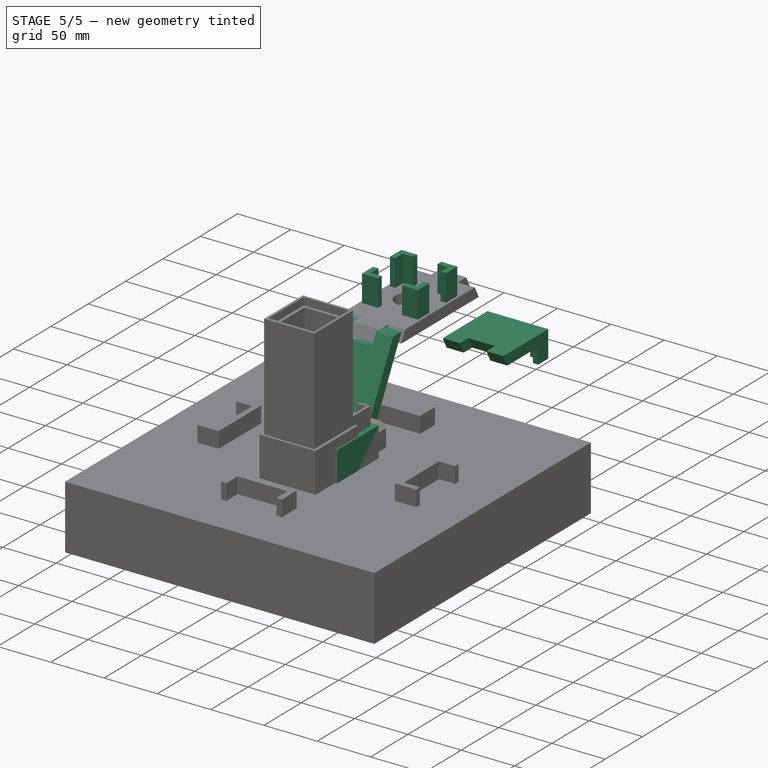
[diagram: stage 5 of 5 — iso view after this stage's code; geometry added in this stage tinted green]
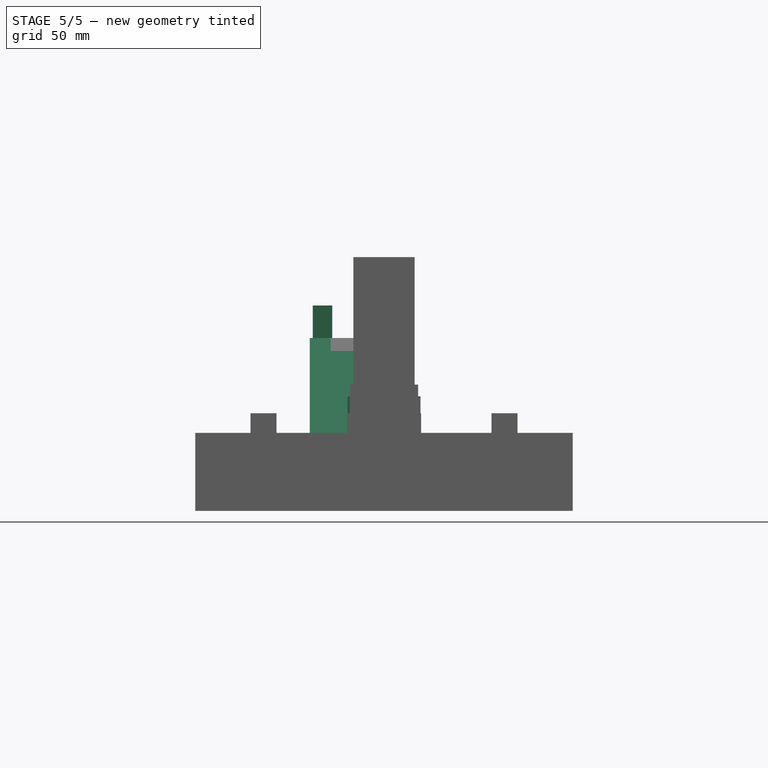
[diagram: stage 5 of 5 — front view after this stage's code; geometry added in this stage tinted green]
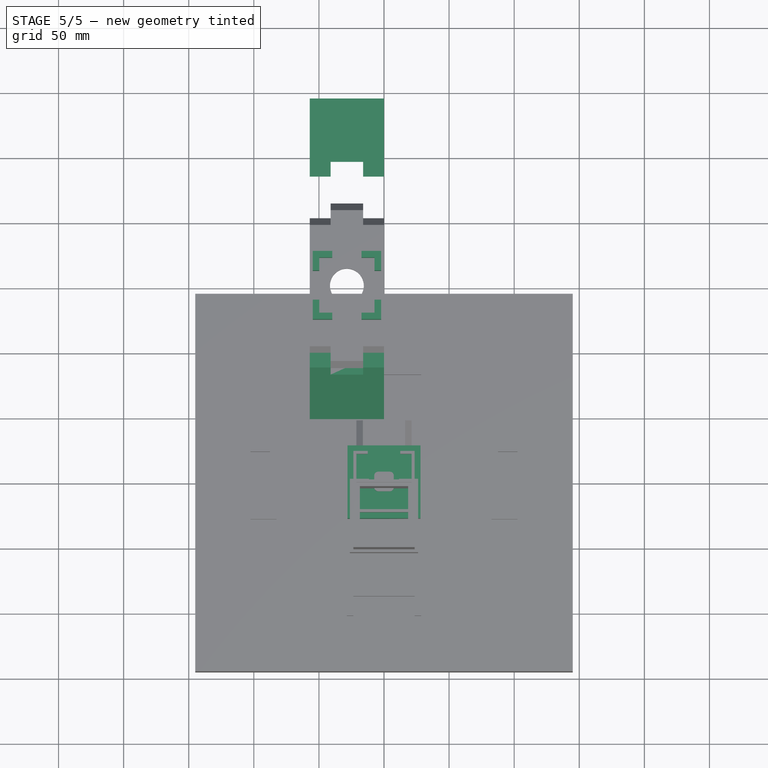
[diagram: stage 5 of 5 — top view after this stage's code; geometry added in this stage tinted green]
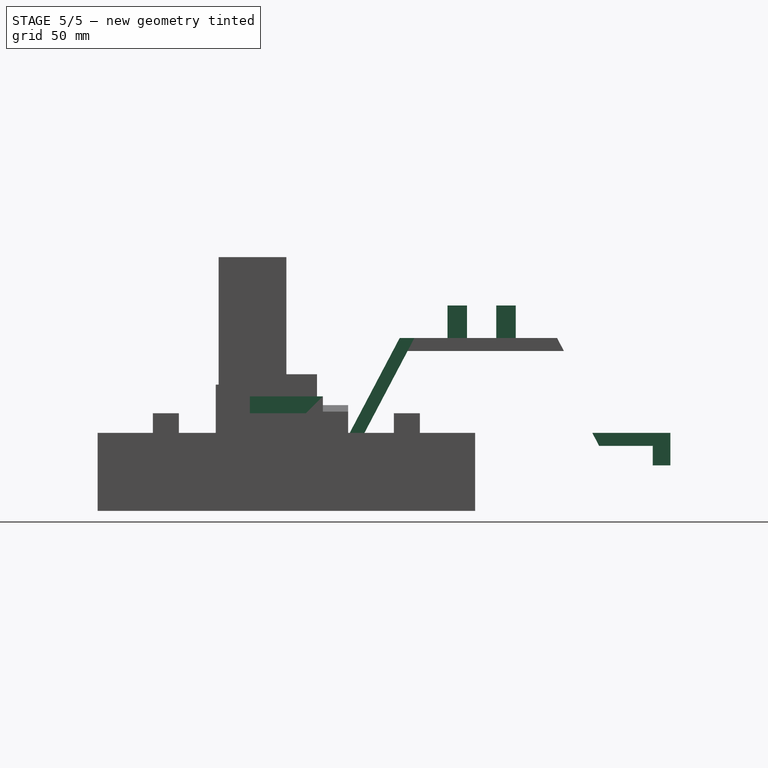
[diagram: stage 5 of 5 — right view after this stage's code; geometry added in this stage tinted green]
FEATURE [Sketcher::SketchObject] Sketch
  MapMode = 5
  Placement = pos=(0,0,0) rot=(1,0,0;1.5708rad)
  Support = -> [XZ_Plane]
  sketch-geometry (4):
    g0: LineSegment StartX=-28 StartY=-28 StartZ=0 EndX=28 EndY=-28 EndZ=0
    g1: LineSegment StartX=28 StartY=-28 StartZ=0 EndX=28 EndY=28 EndZ=0
    g2: LineSegment StartX=28 StartY=28 StartZ=0 EndX=-28 EndY=28 EndZ=0
    g3: LineSegment StartX=-28 StartY=28 StartZ=0 EndX=-28 EndY=-28 EndZ=0
  constraints (10):
    c: Coincident(g0,g1)
    c: Coincident(g1,g2)
    c: Coincident(g2,g3)
    c: Coincident(g3,g0)
    c: Horizontal(g0)
    c: Vertical(g3)
    c: Symmetric(g2,g1,g-2)
    c: DistanceX(g2,g2) = 56
    c: DistanceY(g1,g1) = 56
    c: Symmetric(g1,g0,g-1)
FEATURE [PartDesign::Pad] Pad
  Length = 56
  Length2 = 100
  Midplane = true
  Placement = pos=(0,0,0) rot=(1,0,0;1.5708rad)
  Profile = -> Sketch
  Type = 0
FEATURE [PartDesign::Body] Body007  label="KupplungHinten"
  Group = -> [Sketch036,Pad009,Sketch038,Pocket023,Sketch037,Pocket024]
  Origin = -> Origin007
  Placement = pos=(0,-17.75,150) rot=(0,0,1;0rad)
  Tip = -> Pocket024
FEATURE [PartDesign::ShapeBinder] CopyPocket003
  Placement = pos=(0,0,-41.5) rot=(0,0,1;0rad)
FEATURE [Sketcher::SketchObject] Sketch039
  MapMode = 5
  Placement = pos=(0,0,0) rot=(1,0,0;1.5708rad)
  Support = -> [XZ_Plane008]
  sketch-geometry (4):
    g0: LineSegment StartX=-21.25 StartY=-21.25 StartZ=0 EndX=21.25 EndY=-21.25 EndZ=0
    g1: LineSegment StartX=21.25 StartY=-21.25 StartZ=0 EndX=21.25 EndY=21.25 EndZ=0
    g2: LineSegment StartX=21.25 StartY=21.25 StartZ=0 EndX=-21.25 EndY=21.25 EndZ=0
    g3: LineSegment StartX=-21.25 StartY=21.25 StartZ=0 EndX=-21.25 EndY=-21.25 EndZ=0
  constraints (10):
    c: Coincident(g0,g1)
    c: Coincident(g1,g2)
    c: Coincident(g2,g3)
    c: Coincident(g3,g0)
    c: Horizontal(g0)
    c: Vertical(g3)
    c: Symmetric(g2,g1,g-2)
    c: Symmetric(g1,g0,g-1)
    c: DistanceX(g2,g2) = 42.5
    c: DistanceY(g1,g1) = 42.5
FEATURE [PartDesign::Pad] Pad011
  Length = 47.4
  Length2 = 100
  Placement = pos=(0,0,0) rot=(1,0,0;1.5708rad)
  Profile = -> Sketch039
  Reversed = true
  Type = 0
FEATURE [PartDesign::Chamfer] Chamfer005
  Base = -> Pad011 [Edge5]
  BaseFeature = -> Pad011
  Placement = pos=(0,0,0) rot=(1,0,0;1.5708rad)
  Size = 5
FEATURE [PartDesign::Chamfer] Chamfer004
  Base = -> Chamfer005 [Edge15]
  BaseFeature = -> Chamfer005
  Placement = pos=(0,0,0) rot=(1,0,0;1.5708rad)
  Size = 5
FEATURE [PartDesign::Chamfer] Chamfer006
  Base = -> Chamfer004 [Edge16]
  BaseFeature = -> Chamfer004
  Placement = pos=(0,0,0) rot=(1,0,0;1.5708rad)
  Size = 5
FEATURE [PartDesign::Chamfer] Chamfer007
  Base = -> Chamfer006 [Edge15]
  BaseFeature = -> Chamfer006
  Placement = pos=(0,0,0) rot=(1,0,0;1.5708rad)
  Size = 5
FEATURE [Sketcher::SketchObject] Sketch041
  MapMode = 5
  Placement = pos=(0,0,0) rot=(1,0,0;1.5708rad)
  Support = -> [Chamfer007]
  sketch-geometry (1):
    g0: Circle CenterX=0 CenterY=0 CenterZ=0 NormalX=0 NormalY=0 NormalZ=1 AngleXU=0 Radius=11
  constraints (1):
    c: Radius(g0) = 11
FEATURE [PartDesign::Pad] Pad012
  BaseFeature = -> Chamfer007
  Length = 1.5
  Length2 = 100
  Placement = pos=(0,0,0) rot=(1,0,0;1.5708rad)
  Profile = -> Sketch041
  Type = 0
FEATURE [Sketcher::SketchObject] Sketch040
  MapMode = 5
  Placement = pos=(0,-1.5,0) rot=(1,0,0;1.5708rad)
  Support = -> [Pad012]
  sketch-geometry (1):
    g0: Circle CenterX=0 CenterY=0 CenterZ=0 NormalX=0 NormalY=0 NormalZ=1 AngleXU=0 Radius=2.5
  constraints (1):
    c: Radius(g0) = 2.5
FEATURE [PartDesign::Pad] Pad010
  BaseFeature = -> Pad012
  Length = 18.5
  Length2 = 100
  Placement = pos=(0,0,0) rot=(1,0,0;1.5708rad)
  Profile = -> Sketch040
  Type = 0
FEATURE [PartDesign::Body] Body008  label="MotorOben"
  Group = -> [Sketch039,Pad011,Chamfer005,Chamfer004,Chamfer006,Chamfer007,CopyPocket003,Sketch041,Pad012,Sketch040,Pad010]
  Origin = -> Origin008
  Placement = pos=(-28.5,150,72.85) rot=(1,0,0;1.5708rad)
  Tip = -> Pad010
FEATURE [Sketcher::SketchObject] Sketch042
  MapMode = 5
  Placement = pos=(0,0,0) rot=(1,0,0;1.5708rad)
  Support = -> [XZ_Plane009]
  sketch-geometry (1):
    g0: Circle CenterX=0 CenterY=0 CenterZ=0 NormalX=0 NormalY=0 NormalZ=1 AngleXU=0 Radius=12.5
  constraints (2):
    c: Radius(g0) = 12.5
    c: Coincident(g0,g-1)
FEATURE [PartDesign::Pad] Pad013
  Length = 26
  Length2 = 100
  Midplane = true
  Placement = pos=(0,0,0) rot=(1,0,0;1.5708rad)
  Profile = -> Sketch042
  Type = 0
FEATURE [Sketcher::SketchObject] Sketch043
  MapMode = 5
  Placement = pos=(0,-13,0) rot=(1,0,0;1.5708rad)
  Support = -> [Pad013]
  sketch-geometry (1):
    g0: Circle CenterX=0 CenterY=0 CenterZ=0 NormalX=0 NormalY=0 NormalZ=1 AngleXU=0 Radius=2.5
  constraints (2):
    c: Coincident(g0,g-1)
    c: Radius(g0) = 2.5
FEATURE [PartDesign::Pocket] Pocket026
  BaseFeature = -> Pad013
  Length = 8
  Length2 = 100
  Placement = pos=(0,0,0) rot=(1,0,0;1.5708rad)
  Profile = -> Sketch043
  Type = 0
FEATURE [Sketcher::SketchObject] Sketch044
  MapMode = 5
  Placement = pos=(0,13,0) rot=(-1,0,0;1.5708rad)
  Support = -> [Pocket026]
  sketch-geometry (1):
    g0: Circle CenterX=0 CenterY=0 CenterZ=0 NormalX=0 NormalY=0 NormalZ=1 AngleXU=0 Radius=2.5
  constraints (2):
    c: Coincident(g0,g-1)
    c: Radius(g0) = 2.5
FEATURE [PartDesign::Pocket] Pocket025
  BaseFeature = -> Pocket026
  Length = 8
  Length2 = 100
  Placement = pos=(0,0,0) rot=(1,0,0;1.5708rad)
  Profile = -> Sketch044
  Type = 0
FEATURE [PartDesign::Body] Body016  label="Bodenplatte"
  Group = -> [Sketch067,Pad029,Sketch068,Pad030,Sketch069,Pad031,Sketch070,Pad032,Sketch071,Pad033,Sketch072,Pocket034,Sketch079,Pad038,Sketch080,Pocket037,Sketch081,Pocket038,Sketch082,Pad039]
  Origin = -> Origin016
  Tip = -> Pad039
FEATURE [Sketcher::SketchObject] Sketch088
  MapMode = 5
  Placement = pos=(0,0,0) rot=(0.57735,0.57735,0.57735;2.0944rad)
  Support = -> [YZ_Plane023]
  sketch-geometry (6):
    g0: LineSegment StartX=0 StartY=0 StartZ=0 EndX=60 EndY=0 EndZ=0
    g1: LineSegment StartX=54.7347 StartY=10 StartZ=0 EndX=0 EndY=10 EndZ=0
    g2: LineSegment StartX=0 StartY=10 StartZ=0 EndX=0 EndY=0 EndZ=0
    g3: LineSegment [constr] StartX=54.7347 StartY=10 StartZ=0 EndX=62.9795 EndY=4.3412 EndZ=0
    g4: LineSegment [constr] StartX=60 StartY=0 StartZ=0 EndX=110 EndY=72.85 EndZ=0
    g5: LineSegment StartX=54.7347 StartY=10 StartZ=0 EndX=60 EndY=0 EndZ=0
  constraints (17):
    c: Coincident(g1,g2)
    c: Coincident(g2,g0)
    c: Horizontal(g0)
    c: Horizontal(g1)
    c: Vertical(g2)
    c: Coincident(g0,g-1)
    c: DistanceX(g0,g0) = 60
    c: DistanceY(g2,g2) = 10
    c: Distance(g3) = 10
    c: Coincident(g1,g3)
    c: Coincident(g4,g0)
    c: DistanceX(g4,g4) = 50
    c: DistanceY(g4,g4) = 72.85
    c: PointOnObject(g3,g4)
    c: Perpendicular(g3,g4)
    c: Coincident(g5,g1)
    c: Coincident(g5,g0)
FEATURE [PartDesign::Pad] Pad047
  Length = 57
  Length2 = 100
  Placement = pos=(0,0,0) rot=(0.57735,0.57735,0.57735;2.0944rad)
  Profile = -> Sketch088
  Type = 0
FEATURE [Sketcher::SketchObject] Sketch091
  MapMode = 5
  Placement = pos=(0,0,0) rot=(0.57735,0.57735,0.57735;2.0944rad)
  Support = -> [YZ_Plane025]
  sketch-geometry (7):
    g0: LineSegment StartX=43.4332 StartY=10 StartZ=0 EndX=54.7347 EndY=10 EndZ=0
    g1: LineSegment StartX=54.7347 StartY=10 StartZ=0 EndX=60 EndY=0 EndZ=0
    g2: LineSegment StartX=60 StartY=0 StartZ=0 EndX=48.6985 EndY=0 EndZ=0
    g3: LineSegment StartX=48.6985 StartY=0 StartZ=0 EndX=43.4332 EndY=10 EndZ=0
    g4: LineSegment [constr] StartX=60 StartY=0 StartZ=0 EndX=110 EndY=72.85 EndZ=0
    g5: LineSegment [constr] StartX=54.7347 StartY=10 StartZ=0 EndX=62.9795 EndY=4.3412 EndZ=0
    g6: LineSegment [constr] StartX=48.6985 StartY=0 StartZ=0 EndX=57.5469 EndY=4.65897 EndZ=0
  constraints (21):
    c: Coincident(g0,g1)
    c: Coincident(g1,g2)
    c: Coincident(g2,g3)
    c: Coincident(g3,g0)
    c: Horizontal(g0)
    c: Horizontal(g2)
    c: Parallel(g3,g1)
    c: DistanceX(g1) = 60
    c: PointOnObject(g1,g-1)
    c: DistanceY(g0) = 10
    c: Coincident(g4,g1)
    c: DistanceX(g1,g4) = 50
    c: DistanceY(g4) = 72.85
    c: Coincident(g5,g0)
    c: PointOnObject(g5,g4)
    c: Perpendicular(g4,g5)
    c: Distance(g5) = 10
    c: Coincident(g6,g2)
    c: PointOnObject(g6,g1)
    c: Perpendicular(g1,g6)
    c: Distance(g6) = 10
FEATURE [PartDesign::Pad] Pad048
  Length = 25
  Length2 = 100
  Midplane = true
  Placement = pos=(0,0,0) rot=(0.57735,0.57735,0.57735;2.0944rad)
  Profile = -> Sketch091
  Type = 0
FEATURE [PartDesign::Body] Body025
  Group = -> [Sketch091,Pad048]
  Origin = -> Origin025
  Placement = pos=(28.5,0,0) rot=(0,0,1;0rad)
  Tip = -> Pad048
FEATURE [Sketcher::SketchObject] Sketch092
  MapMode = 5
  Placement = pos=(0,0,0) rot=(0.57735,0.57735,0.57735;2.0944rad)
  Support = -> [YZ_Plane028]
  sketch-geometry (14):
    g0: LineSegment [constr] StartX=0 StartY=0 StartZ=0 EndX=0 EndY=-10 EndZ=0
    g1: LineSegment [constr] StartX=0 StartY=-10 StartZ=0 EndX=54.7347 EndY=-10 EndZ=0
    g2: GeomPoint X=60 Y=0 Z=0
    g3: LineSegment [constr] StartX=60 StartY=0 StartZ=0 EndX=110 EndY=-72.85 EndZ=0
    g4: LineSegment [constr] StartX=0 StartY=0 StartZ=0 EndX=60 EndY=0 EndZ=0
    g5: LineSegment [constr] StartX=54.7347 StartY=-10 StartZ=0 EndX=62.9795 EndY=-4.3412 EndZ=0
    g6: LineSegment StartX=54.7347 StartY=-10 StartZ=0 EndX=98.3579 EndY=72.85 EndZ=0
    g7: LineSegment StartX=98.3579 StartY=72.85 StartZ=0 EndX=87.0564 EndY=72.85 EndZ=0
    g8: LineSegment StartX=87.0564 StartY=72.85 StartZ=0 EndX=43.4332 EndY=-10 EndZ=0
    g9: LineSegment StartX=43.4332 StartY=-10 StartZ=0 EndX=54.7347 EndY=-10 EndZ=0
    g10: LineSegment [constr] StartX=54.7347 StartY=-10 StartZ=0 EndX=45.8863 EndY=-5.34103 EndZ=0
    g11: GeomPoint X=150 Y=0 Z=0
    g12: LineSegment [constr] StartX=98.3579 StartY=72.85 StartZ=0 EndX=150 EndY=72.85 EndZ=0
    g13: LineSegment [constr] StartX=150 StartY=72.85 StartZ=0 EndX=150 EndY=0 EndZ=0
  constraints (37):
    c: Coincident(g-1,g0)
    c: Coincident(g0,g1)
    c: Horizontal(g1)
    c: Vertical(g0)
    c: DistanceY(g0,g0) = 10
    c: DistanceX(g2) = 60
    c: Coincident(g3,g2)
    c: Coincident(g4,g-1)
    c: Coincident(g4,g2)
    c: Horizontal(g4)
    c: Coincident(g5,g1)
    c: PointOnObject(g5,g3)
    c: Perpendicular(g3,g5)
    c: DistanceY(g3,g3) = 72.85
    c: DistanceX(g3,g3) = 50
    c: Distance(g5) = 10
    c: Coincident(g1,g6)
    c: Coincident(g6,g7)
    c: Horizontal(g7)
    c: Coincident(g7,g8)
    c: Coincident(g8,g9)
    c: Coincident(g9,g6)
    c: Horizontal(g9)
    c: Parallel(g8,g6)
    c: Coincident(g10,g1)
    c: Perpendicular(g8,g10)
    c: PointOnObject(g10,g8)
    c: Distance(g10) = 10
    c: PointOnObject(g2,g6)
    c: PointOnObject(g11,g-1)
    c: DistanceX(g11) = 150
    c: Coincident(g6,g12)
    c: Horizontal(g12)
    c: Coincident(g12,g13)
    c: Coincident(g13,g11)
    c: Vertical(g13)
    c: DistanceY(g13,g13) = 72.85
FEATURE [Sketcher::SketchObject] Sketch093
  ExternalGeometry = -> [Pad047]
  MapMode = 5
  Placement = pos=(-1e-12,1e-12,10) rot=(0,0,-1;1.5708rad)
  Support = -> [Pad047]
  sketch-geometry (12):
    g0: LineSegment StartX=0 StartY=0 StartZ=0 EndX=-13.5 EndY=0 EndZ=0
    g1: LineSegment StartX=-13.5 StartY=0 StartZ=0 EndX=-13.5 EndY=5 EndZ=0
    g2: LineSegment StartX=-13.5 StartY=5 StartZ=0 EndX=-5 EndY=5 EndZ=0
    g3: LineSegment StartX=-5 StartY=5 StartZ=0 EndX=-5 EndY=13.5 EndZ=0
    g4: LineSegment StartX=-5 StartY=13.5 StartZ=0 EndX=0 EndY=13.5 EndZ=0
    g5: LineSegment StartX=0 StartY=13.5 StartZ=0 EndX=0 EndY=0 EndZ=0
    g6: LineSegment StartX=0 StartY=57 StartZ=0 EndX=-13.5 EndY=57 EndZ=0
    g7: LineSegment StartX=-13.5 StartY=57 StartZ=0 EndX=-13.5 EndY=52 EndZ=0
    g8: LineSegment StartX=-13.5 StartY=52 StartZ=0 EndX=-5 EndY=52 EndZ=0
    g9: LineSegment StartX=-5 StartY=52 StartZ=0 EndX=-5 EndY=43.5 EndZ=0
    g10: LineSegment StartX=-5 StartY=43.5 StartZ=0 EndX=0 EndY=43.5 EndZ=0
    g11: LineSegment StartX=0 StartY=43.5 StartZ=0 EndX=0 EndY=57 EndZ=0
  constraints (34):
    c: Coincident(g-1,g0)
    c: Horizontal(g0)
    c: Coincident(g0,g1)
    c: Coincident(g1,g2)
    c: Horizontal(g2)
    c: Coincident(g2,g3)
    c: Vertical(g3)
    c: Coincident(g3,g4)
    c: Horizontal(g4)
    c: Coincident(g4,g5)
    c: Coincident(g5,g0)
    c: Vertical(g5)
    c: Vertical(g1)
    c: Equal(g2,g3)
    c: Equal(g4,g1)
    c: DistanceY(g1,g1) = 5
    c: DistanceX(g2,g2) = 8.5
    c: Coincident(g-3,g6)
    c: Horizontal(g6)
    c: Coincident(g6,g7)
    c: Vertical(g7)
    c: Coincident(g7,g8)
    c: Coincident(g8,g9)
    c: Vertical(g9)
    c: Coincident(g9,g10)
    c: Horizontal(g10)
    c: Coincident(g10,g11)
    c: Coincident(g11,g6)
    c: Horizontal(g8)
    c: Vertical(g11)
    c: Equal(g9,g8)
    c: Equal(g7,g10)
    c: DistanceX(g10,g10) = 5
    c: DistanceY(g9,g9) = 8.5
FEATURE [PartDesign::Pad] Pad049
  BaseFeature = -> Pad047
  Length = 15
  Length2 = 100
  Placement = pos=(0,0,0) rot=(0.57735,0.57735,0.57735;2.0944rad)
  Profile = -> Sketch093
  Type = 0
FEATURE [PartDesign::Body] Body026
  Group = -> [Sketch088,Pad047,Sketch093,Pad049]
  Origin = -> Origin027
  Tip = -> Pad049
FEATURE [Part::Cut] Cut001
  Base = -> Body026
  Placement = pos=(-57,295,0) rot=(1,0,0;3.14159rad)
  Tool = -> Body025
FEATURE [Sketcher::SketchObject] Sketch095
  MapMode = 5
  Placement = pos=(0,0,0) rot=(0.57735,0.57735,0.57735;2.0944rad)
  Support = -> [YZ_Plane027]
  sketch-geometry (20):
    g0: LineSegment [constr] StartX=0 StartY=-10 StartZ=0 EndX=59.7347 EndY=-10 EndZ=0
    g1: LineSegment [constr] StartX=0 StartY=0 StartZ=0 EndX=65 EndY=0 EndZ=0
    g2: LineSegment [constr] StartX=65 StartY=0 StartZ=0 EndX=115 EndY=-72.85 EndZ=0
    g3: LineSegment [constr] StartX=59.7347 StartY=-10 StartZ=0 EndX=67.9795 EndY=-4.3412 EndZ=0
    g4: LineSegment [constr] StartX=59.7347 StartY=-10 StartZ=0 EndX=103.358 EndY=72.85 EndZ=0
    g5: LineSegment StartX=92.0564 StartY=72.85 StartZ=0 EndX=207.944 EndY=72.85 EndZ=0
    g6: LineSegment StartX=207.944 StartY=72.85 StartZ=0 EndX=213.209 EndY=62.85 EndZ=0
    g7: LineSegment StartX=213.209 StartY=62.85 StartZ=0 EndX=86.7911 EndY=62.85 EndZ=0
    g8: LineSegment StartX=86.7911 StartY=62.85 StartZ=0 EndX=92.0564 EndY=72.85 EndZ=0
    g9: LineSegment [constr] StartX=92.0564 StartY=72.85 StartZ=0 EndX=100.905 EndY=68.191 EndZ=0
    g10: LineSegment [constr] StartX=86.7911 StartY=62.85 StartZ=0 EndX=95.6395 EndY=58.191 EndZ=0
    g11: LineSegment [constr] StartX=235 StartY=0 StartZ=0 EndX=300 EndY=0 EndZ=0
    g12: LineSegment [constr] StartX=235 StartY=0 StartZ=0 EndX=185 EndY=-72.85 EndZ=0
    g13: LineSegment [constr] StartX=115 StartY=-72.85 StartZ=0 EndX=185 EndY=-72.85 EndZ=0
    g14: LineSegment [constr] StartX=232.02 StartY=-4.3412 StartZ=0 EndX=240.265 EndY=-10 EndZ=0
    g15: LineSegment [constr] StartX=240.265 StartY=-10 StartZ=0 EndX=300 EndY=-10 EndZ=0
    g16: LineSegment [constr] StartX=300 StartY=0 StartZ=0 EndX=300 EndY=-10 EndZ=0
    g17: LineSegment [constr] StartX=240.265 StartY=-10 StartZ=0 EndX=196.642 EndY=72.85 EndZ=0
    g18: LineSegment [constr] StartX=207.944 StartY=72.85 StartZ=0 EndX=199.095 EndY=68.191 EndZ=0
    g19: LineSegment [constr] StartX=213.209 StartY=62.85 StartZ=0 EndX=204.361 EndY=58.191 EndZ=0
  constraints (61):
    c: PointOnObject(g0,g-2)
    c: Horizontal(g0)
    c: Coincident(g1,g-1)
    c: Horizontal(g1)
    c: DistanceX(g1,g1) = 65
    c: DistanceY(g0) = -10
    c: Coincident(g2,g1)
    c: DistanceX(g2,g2) = 50
    c: DistanceY(g2,g2) = 72.85
    c: Coincident(g3,g0)
    c: PointOnObject(g3,g2)
    c: Perpendicular(g2,g3)
    c: Distance(g3) = 10
    c: Coincident(g4,g0)
    c: PointOnObject(g1,g4)
    c: DistanceY(g4) = 72.85
    c: Horizontal(g5)
    c: Coincident(g5,g6)
    c: Coincident(g6,g7)
    c: Horizontal(g7)
    c: Coincident(g7,g8)
    c: Coincident(g8,g5)
    c: PointOnObject(g4,g5)
    c: Coincident(g9,g5)
    c: PointOnObject(g9,g4)
    c: Perpendicular(g4,g9)
    c: Distance(g9) = 10
    c: DistanceY(g8,g8) = 10
    c: Coincident(g10,g7)
    c: PointOnObject(g10,g4)
    c: Perpendicular(g4,g10)
    c: Distance(g10) = 10
    c: Horizontal(g11)
    c: PointOnObject(g11,g-1)
    c: DistanceX(g11) = 300
    c: DistanceX(g11,g11) = 65
    c: Coincident(g12,g11)
    c: Coincident(g13,g2)
    c: Coincident(g13,g12)
    c: Horizontal(g13)
    c: DistanceX(g12,g12) = 50
    c: PointOnObject(g14,g12)
    c: Perpendicular(g12,g14)
    c: Coincident(g15,g14)
    c: Horizontal(g15)
    c: Coincident(g16,g11)
    c: Coincident(g16,g15)
    c: Vertical(g16)
    c: DistanceY(g16,g16) = 10
    c: Distance(g14) = 10
    c: Coincident(g17,g14)
    c: PointOnObject(g17,g5)
    c: PointOnObject(g11,g17)
    c: Coincident(g18,g5)
    c: Coincident(g19,g6)
    c: PointOnObject(g19,g17)
    c: PointOnObject(g18,g17)
    c: Perpendicular(g17,g19)
    c: Perpendicular(g17,g18)
    c: Distance(g18) = 10
    c: Distance(g19) = 10
FEATURE [PartDesign::Pad] Pad050
  Length = 57
  Length2 = 100
  Placement = pos=(0,0,0) rot=(0.57735,0.57735,0.57735;2.0944rad)
  Profile = -> Sketch092
  Reversed = true
  Type = 0
FEATURE [Sketcher::SketchObject] Sketch089
  ExternalGeometry = -> [Pad050]
  MapMode = 5
  Placement = pos=(0,0,0) rot=(0.57735,0.57735,0.57735;2.0944rad)
  Support = -> [Pad050]
  sketch-geometry (4):
    g0: LineSegment StartX=43.4332 StartY=-10 StartZ=0 EndX=54.7347 EndY=-10 EndZ=0
    g1: LineSegment StartX=54.7347 StartY=-10 StartZ=0 EndX=60 EndY=0 EndZ=0
    g2: LineSegment StartX=60 StartY=0 StartZ=0 EndX=48.6985 EndY=0 EndZ=0
    g3: LineSegment StartX=48.6985 StartY=0 StartZ=0 EndX=43.4332 EndY=-10 EndZ=0
  constraints (11):
    c: Coincident(g0,g1)
    c: Coincident(g1,g2)
    c: Coincident(g2,g3)
    c: Coincident(g3,g0)
    c: Horizontal(g0)
    c: Horizontal(g2)
    c: PointOnObject(g2,g-4)
    c: PointOnObject(g2,g-1)
    c: Coincident(g0,g-4)
    c: Coincident(g0,g-3)
    c: PointOnObject(g1,g-3)
FEATURE [PartDesign::Pocket] Pocket044
  BaseFeature = -> Pad050
  Length = 16
  Length2 = 100
  Placement = pos=(0,0,0) rot=(0.57735,0.57735,0.57735;2.0944rad)
  Profile = -> Sketch089
  Type = 0
FEATURE [Sketcher::SketchObject] Sketch094
  ExternalGeometry = -> [Pocket044]
  MapMode = 5
  Placement = pos=(-57,0,0) rot=(0.57735,0.57735,-0.57735;4.18879rad)
  Support = -> [Pocket044]
  sketch-geometry (4):
    g0: LineSegment StartX=43.4332 StartY=10 StartZ=0 EndX=54.7347 EndY=10 EndZ=0
    g1: LineSegment StartX=54.7347 StartY=10 StartZ=0 EndX=60 EndY=0 EndZ=0
    g2: LineSegment StartX=60 StartY=0 StartZ=0 EndX=48.6985 EndY=0 EndZ=0
    g3: LineSegment StartX=43.4332 StartY=10 StartZ=0 EndX=48.6985 EndY=0 EndZ=0
  constraints (10):
    c: Coincident(g0,g-4)
    c: Coincident(g0,g-3)
    c: PointOnObject(g1,g-1)
    c: Coincident(g2,g1)
    c: PointOnObject(g2,g-1)
    c: PointOnObject(g2,g-4)
    c: PointOnObject(g1,g-3)
    c: Coincident(g1,g0)
    c: Coincident(g3,g0)
    c: Coincident(g3,g2)
FEATURE [PartDesign::Pocket] Pocket046
  BaseFeature = -> Pocket044
  Length = 16
  Length2 = 100
  Placement = pos=(0,0,0) rot=(0.57735,0.57735,0.57735;2.0944rad)
  Profile = -> Sketch094
  Type = 0
FEATURE [Sketcher::SketchObject] Sketch090
  ExternalGeometry = -> [Pocket046]
  MapMode = 5
  Placement = pos=(0,0,72.85) rot=(0,0,-1;1.5708rad)
  Support = -> [Pocket046]
  sketch-geometry (4):
    g0: LineSegment StartX=-98.3579 StartY=-16 StartZ=0 EndX=-78.3579 EndY=-16 EndZ=0
    g1: LineSegment StartX=-78.3579 StartY=-16 StartZ=0 EndX=-78.3579 EndY=-41 EndZ=0
    g2: LineSegment StartX=-78.3579 StartY=-41 StartZ=0 EndX=-98.3579 EndY=-41 EndZ=0
    g3: LineSegment StartX=-98.3579 StartY=-41 StartZ=0 EndX=-98.3579 EndY=-16 EndZ=0
  constraints (12):
    c: Coincident(g0,g1)
    c: Coincident(g1,g2)
    c: Coincident(g2,g3)
    c: Coincident(g3,g0)
    c: Horizontal(g0)
    c: Horizontal(g2)
    c: Vertical(g1)
    c: Vertical(g3)
    c: PointOnObject(g0,g-3)
    c: DistanceY(g0,g-3) = 16
    c: DistanceY(g3,g3) = 25
    c: DistanceX(g0,g0) = 20
FEATURE [PartDesign::Pocket] Pocket045
  BaseFeature = -> Pocket046
  Length = 10
  Length2 = 100
  Placement = pos=(0,0,0) rot=(0.57735,0.57735,0.57735;2.0944rad)
  Profile = -> Sketch090
  Type = 0
FEATURE [Sketcher::SketchObject] Sketch099
  MapMode = 5
  Placement = pos=(0,0,0) rot=(0.57735,0.57735,0.57735;2.0944rad)
  Support = -> [YZ_Plane022]
  sketch-geometry (6):
    g0: LineSegment StartX=0 StartY=0 StartZ=0 EndX=60 EndY=0 EndZ=0
    g1: LineSegment StartX=54.7347 StartY=10 StartZ=0 EndX=0 EndY=10 EndZ=0
    g2: LineSegment StartX=0 StartY=10 StartZ=0 EndX=0 EndY=0 EndZ=0
    g3: LineSegment [constr] StartX=54.7347 StartY=10 StartZ=0 EndX=62.9795 EndY=4.3412 EndZ=0
    g4: LineSegment [constr] StartX=60 StartY=0 StartZ=0 EndX=110 EndY=72.85 EndZ=0
    g5: LineSegment StartX=54.7347 StartY=10 StartZ=0 EndX=60 EndY=0 EndZ=0
  constraints (17):
    c: Coincident(g1,g2)
    c: Coincident(g2,g0)
    c: Horizontal(g0)
    c: Horizontal(g1)
    c: Vertical(g2)
    c: Coincident(g0,g-1)
    c: DistanceX(g0,g0) = 60
    c: DistanceY(g2,g2) = 10
    c: Distance(g3) = 10
    c: Coincident(g1,g3)
    c: Coincident(g4,g0)
    c: DistanceX(g4,g4) = 50
    c: DistanceY(g4,g4) = 72.85
    c: PointOnObject(g3,g4)
    c: Perpendicular(g3,g4)
    c: Coincident(g5,g1)
    c: Coincident(g5,g0)
FEATURE [PartDesign::Pad] Pad044
  Length = 57
  Length2 = 100
  Placement = pos=(0,0,0) rot=(0.57735,0.57735,0.57735;2.0944rad)
  Profile = -> Sketch099
  Type = 0
FEATURE [Sketcher::SketchObject] Sketch100
  MapMode = 5
  Placement = pos=(0,0,0) rot=(0.57735,0.57735,0.57735;2.0944rad)
  Support = -> [YZ_Plane021]
  sketch-geometry (7):
    g0: LineSegment StartX=43.4332 StartY=10 StartZ=0 EndX=54.7347 EndY=10 EndZ=0
    g1: LineSegment StartX=54.7347 StartY=10 StartZ=0 EndX=60 EndY=0 EndZ=0
    g2: LineSegment StartX=60 StartY=0 StartZ=0 EndX=48.6985 EndY=0 EndZ=0
    g3: LineSegment StartX=48.6985 StartY=0 StartZ=0 EndX=43.4332 EndY=10 EndZ=0
    g4: LineSegment [constr] StartX=60 StartY=0 StartZ=0 EndX=110 EndY=72.85 EndZ=0
    g5: LineSegment [constr] StartX=54.7347 StartY=10 StartZ=0 EndX=62.9795 EndY=4.3412 EndZ=0
    g6: LineSegment [constr] StartX=48.6985 StartY=0 StartZ=0 EndX=57.5469 EndY=4.65897 EndZ=0
  constraints (21):
    c: Coincident(g0,g1)
    c: Coincident(g1,g2)
    c: Coincident(g2,g3)
    c: Coincident(g3,g0)
    c: Horizontal(g0)
    c: Horizontal(g2)
    c: Parallel(g3,g1)
    c: DistanceX(g1) = 60
    c: PointOnObject(g1,g-1)
    c: DistanceY(g0) = 10
    c: Coincident(g4,g1)
    c: DistanceX(g1,g4) = 50
    c: DistanceY(g4) = 72.85
    c: Coincident(g5,g0)
    c: PointOnObject(g5,g4)
    c: Perpendicular(g4,g5)
    c: Distance(g5) = 10
    c: Coincident(g6,g2)
    c: PointOnObject(g6,g1)
    c: Perpendicular(g1,g6)
    c: Distance(g6) = 10
FEATURE [PartDesign::Pad] Pad043
  Length = 25
  Length2 = 100
  Midplane = true
  Placement = pos=(0,0,0) rot=(0.57735,0.57735,0.57735;2.0944rad)
  Profile = -> Sketch100
  Type = 0
FEATURE [PartDesign::Body] Body024
  Group = -> [Sketch100,Pad043]
  Origin = -> Origin022
  Placement = pos=(28.5,0,0) rot=(0,0,1;0rad)
  Tip = -> Pad043
FEATURE [Sketcher::SketchObject] Sketch101
  MapMode = 5
  Placement = pos=(0,0,0) rot=(0.57735,0.57735,0.57735;2.0944rad)
  Support = -> [YZ_Plane024]
  sketch-geometry (14):
    g0: LineSegment [constr] StartX=0 StartY=0 StartZ=0 EndX=0 EndY=-10 EndZ=0
    g1: LineSegment [constr] StartX=0 StartY=-10 StartZ=0 EndX=54.7347 EndY=-10 EndZ=0
    g2: GeomPoint X=60 Y=0 Z=0
    g3: LineSegment [constr] StartX=60 StartY=0 StartZ=0 EndX=110 EndY=-72.85 EndZ=0
    g4: LineSegment [constr] StartX=0 StartY=0 StartZ=0 EndX=60 EndY=0 EndZ=0
    g5: LineSegment [constr] StartX=54.7347 StartY=-10 StartZ=0 EndX=62.9795 EndY=-4.3412 EndZ=0
    g6: LineSegment StartX=54.7347 StartY=-10 StartZ=0 EndX=98.3579 EndY=72.85 EndZ=0
    g7: LineSegment StartX=98.3579 StartY=72.85 StartZ=0 EndX=87.0564 EndY=72.85 EndZ=0
    g8: LineSegment StartX=87.0564 StartY=72.85 StartZ=0 EndX=43.4332 EndY=-10 EndZ=0
    g9: LineSegment StartX=43.4332 StartY=-10 StartZ=0 EndX=54.7347 EndY=-10 EndZ=0
    g10: LineSegment [constr] StartX=54.7347 StartY=-10 StartZ=0 EndX=45.8863 EndY=-5.34103 EndZ=0
    g11: GeomPoint X=150 Y=0 Z=0
    g12: LineSegment [constr] StartX=98.3579 StartY=72.85 StartZ=0 EndX=150 EndY=72.85 EndZ=0
    g13: LineSegment [constr] StartX=150 StartY=72.85 StartZ=0 EndX=150 EndY=0 EndZ=0
  constraints (37):
    c: Coincident(g-1,g0)
    c: Coincident(g0,g1)
    c: Horizontal(g1)
    c: Vertical(g0)
    c: DistanceY(g0,g0) = 10
    c: DistanceX(g2) = 60
    c: Coincident(g3,g2)
    c: Coincident(g4,g-1)
    c: Coincident(g4,g2)
    c: Horizontal(g4)
    c: Coincident(g5,g1)
    c: PointOnObject(g5,g3)
    c: Perpendicular(g3,g5)
    c: DistanceY(g3,g3) = 72.85
    c: DistanceX(g3,g3) = 50
    c: Distance(g5) = 10
    c: Coincident(g1,g6)
    c: Coincident(g6,g7)
    c: Horizontal(g7)
    c: Coincident(g7,g8)
    c: Coincident(g8,g9)
    c: Coincident(g9,g6)
    c: Horizontal(g9)
    c: Parallel(g8,g6)
    c: Coincident(g10,g1)
    c: Perpendicular(g8,g10)
    c: PointOnObject(g10,g8)
    c: Distance(g10) = 10
    c: PointOnObject(g2,g6)
    c: PointOnObject(g11,g-1)
    c: DistanceX(g11) = 150
    c: Coincident(g6,g12)
    c: Horizontal(g12)
    c: Coincident(g12,g13)
    c: Coincident(g13,g11)
    c: Vertical(g13)
    c: DistanceY(g13,g13) = 72.85
FEATURE [PartDesign::Pad] Pad045
  Length = 57
  Length2 = 100
  Placement = pos=(0,0,0) rot=(0.57735,0.57735,0.57735;2.0944rad)
  Profile = -> Sketch101
  Reversed = true
  Type = 0
FEATURE [Sketcher::SketchObject] Sketch102
  ExternalGeometry = -> [Pad045]
  MapMode = 5
  Placement = pos=(0,0,0) rot=(0.57735,0.57735,0.57735;2.0944rad)
  Support = -> [Pad045]
  sketch-geometry (4):
    g0: LineSegment StartX=43.4332 StartY=-10 StartZ=0 EndX=54.7347 EndY=-10 EndZ=0
    g1: LineSegment StartX=54.7347 StartY=-10 StartZ=0 EndX=60 EndY=0 EndZ=0
    g2: LineSegment StartX=60 StartY=0 StartZ=0 EndX=48.6985 EndY=0 EndZ=0
    g3: LineSegment StartX=48.6985 StartY=0 StartZ=0 EndX=43.4332 EndY=-10 EndZ=0
  constraints (11):
    c: Coincident(g0,g1)
    c: Coincident(g1,g2)
    c: Coincident(g2,g3)
    c: Coincident(g3,g0)
    c: Horizontal(g0)
    c: Horizontal(g2)
    c: PointOnObject(g2,g-4)
    c: PointOnObject(g2,g-1)
    c: Coincident(g0,g-4)
    c: Coincident(g0,g-3)
    c: PointOnObject(g1,g-3)
FEATURE [PartDesign::Pocket] Pocket040
  BaseFeature = -> Pad045
  Length = 16
  Length2 = 100
  Placement = pos=(0,0,0) rot=(0.57735,0.57735,0.57735;2.0944rad)
  Profile = -> Sketch102
  Type = 0
FEATURE [Sketcher::SketchObject] Sketch086
  ExternalGeometry = -> [Pocket040]
  MapMode = 5
  Placement = pos=(-57,0,0) rot=(0.57735,0.57735,-0.57735;4.18879rad)
  Support = -> [Pocket040]
  sketch-geometry (4):
    g0: LineSegment StartX=43.4332 StartY=10 StartZ=0 EndX=54.7347 EndY=10 EndZ=0
    g1: LineSegment StartX=54.7347 StartY=10 StartZ=0 EndX=60 EndY=0 EndZ=0
    g2: LineSegment StartX=60 StartY=0 StartZ=0 EndX=48.6985 EndY=0 EndZ=0
    g3: LineSegment StartX=43.4332 StartY=10 StartZ=0 EndX=48.6985 EndY=0 EndZ=0
  constraints (10):
    c: Coincident(g0,g-4)
    c: Coincident(g0,g-3)
    c: PointOnObject(g1,g-1)
    c: Coincident(g2,g1)
    c: PointOnObject(g2,g-1)
    c: PointOnObject(g2,g-4)
    c: PointOnObject(g1,g-3)
    c: Coincident(g1,g0)
    c: Coincident(g3,g0)
    c: Coincident(g3,g2)
FEATURE [PartDesign::Pocket] Pocket039
  BaseFeature = -> Pocket040
  Length = 16
  Length2 = 100
  Placement = pos=(0,0,0) rot=(0.57735,0.57735,0.57735;2.0944rad)
  Profile = -> Sketch086
  Type = 0
FEATURE [Sketcher::SketchObject] Sketch087
  ExternalGeometry = -> [Pocket039]
  MapMode = 5
  Placement = pos=(0,0,72.85) rot=(0,0,-1;1.5708rad)
  Support = -> [Pocket039]
  sketch-geometry (4):
    g0: LineSegment StartX=-98.3579 StartY=-16 StartZ=0 EndX=-78.3579 EndY=-16 EndZ=0
    g1: LineSegment StartX=-78.3579 StartY=-16 StartZ=0 EndX=-78.3579 EndY=-41 EndZ=0
    g2: LineSegment StartX=-78.3579 StartY=-41 StartZ=0 EndX=-98.3579 EndY=-41 EndZ=0
    g3: LineSegment StartX=-98.3579 StartY=-41 StartZ=0 EndX=-98.3579 EndY=-16 EndZ=0
  constraints (12):
    c: Coincident(g0,g1)
    c: Coincident(g1,g2)
    c: Coincident(g2,g3)
    c: Coincident(g3,g0)
    c: Horizontal(g0)
    c: Horizontal(g2)
    c: Vertical(g1)
    c: Vertical(g3)
    c: PointOnObject(g0,g-3)
    c: DistanceY(g0,g-3) = 16
    c: DistanceY(g3,g3) = 25
    c: DistanceX(g0,g0) = 20
FEATURE [PartDesign::Pocket] Pocket041
  BaseFeature = -> Pocket039
  Length = 10
  Length2 = 100
  Placement = pos=(0,0,0) rot=(0.57735,0.57735,0.57735;2.0944rad)
  Profile = -> Sketch087
  Type = 0
FEATURE [PartDesign::Body] Body021
  Group = -> [Sketch101,Pad045,Sketch102,Pocket040,Sketch086,Pocket039,Sketch087,Pocket041]
  Origin = -> Origin024
  Placement = pos=(0,5,0) rot=(0,0,1;0rad)
  Tip = -> Pocket041
FEATURE [Sketcher::SketchObject] Sketch103
  ExternalGeometry = -> [Pad044]
  MapMode = 5
  Placement = pos=(-1e-12,1e-12,10) rot=(0,0,-1;1.5708rad)
  Support = -> [Pad044]
  sketch-geometry (12):
    g0: LineSegment StartX=0 StartY=0 StartZ=0 EndX=-13.5 EndY=0 EndZ=0
    g1: LineSegment StartX=-13.5 StartY=0 StartZ=0 EndX=-13.5 EndY=5 EndZ=0
    g2: LineSegment StartX=-13.5 StartY=5 StartZ=0 EndX=-5 EndY=5 EndZ=0
    g3: LineSegment StartX=-5 StartY=5 StartZ=0 EndX=-5 EndY=13.5 EndZ=0
    g4: LineSegment StartX=-5 StartY=13.5 StartZ=0 EndX=0 EndY=13.5 EndZ=0
    g5: LineSegment StartX=0 StartY=13.5 StartZ=0 EndX=0 EndY=0 EndZ=0
    g6: LineSegment StartX=0 StartY=57 StartZ=0 EndX=-13.5 EndY=57 EndZ=0
    g7: LineSegment StartX=-13.5 StartY=57 StartZ=0 EndX=-13.5 EndY=52 EndZ=0
    g8: LineSegment StartX=-13.5 StartY=52 StartZ=0 EndX=-5 EndY=52 EndZ=0
    g9: LineSegment StartX=-5 StartY=52 StartZ=0 EndX=-5 EndY=43.5 EndZ=0
    g10: LineSegment StartX=-5 StartY=43.5 StartZ=0 EndX=0 EndY=43.5 EndZ=0
    g11: LineSegment StartX=0 StartY=43.5 StartZ=0 EndX=0 EndY=57 EndZ=0
  constraints (34):
    c: Coincident(g-1,g0)
    c: Horizontal(g0)
    c: Coincident(g0,g1)
    c: Coincident(g1,g2)
    c: Horizontal(g2)
    c: Coincident(g2,g3)
    c: Vertical(g3)
    c: Coincident(g3,g4)
    c: Horizontal(g4)
    c: Coincident(g4,g5)
    c: Coincident(g5,g0)
    c: Vertical(g5)
    c: Vertical(g1)
    c: Equal(g2,g3)
    c: Equal(g4,g1)
    c: DistanceY(g1,g1) = 5
    c: DistanceX(g2,g2) = 8.5
    c: Coincident(g-3,g6)
    c: Horizontal(g6)
    c: Coincident(g6,g7)
    c: Vertical(g7)
    c: Coincident(g7,g8)
    c: Coincident(g8,g9)
    c: Vertical(g9)
    c: Coincident(g9,g10)
    c: Horizontal(g10)
    c: Coincident(g10,g11)
    c: Coincident(g11,g6)
    c: Horizontal(g8)
    c: Vertical(g11)
    c: Equal(g9,g8)
    c: Equal(g7,g10)
    c: DistanceX(g10,g10) = 5
    c: DistanceY(g9,g9) = 8.5
FEATURE [PartDesign::Pad] Pad046
  BaseFeature = -> Pad044
  Length = 15
  Length2 = 100
  Placement = pos=(0,0,0) rot=(0.57735,0.57735,0.57735;2.0944rad)
  Profile = -> Sketch103
  Type = 0
FEATURE [PartDesign::Body] Body023
  Group = -> [Sketch099,Pad044,Sketch103,Pad046]
  Origin = -> Origin021
  Tip = -> Pad046
FEATURE [Part::Cut] Cut
  Base = -> Body023
  Placement = pos=(0,5,0) rot=(0,1,0;3.14159rad)
  Tool = -> Body024
FEATURE [Sketcher::SketchObject] Sketch104
  ExternalGeometry = -> [Pocket047]
  MapMode = 5
  Placement = pos=(-8e-12,8e-12,72.85) rot=(0,0,-1;1.5708rad)
  Support = -> [Pocket047]
  sketch-geometry (32):
    g0: LineSegment [constr] StartX=-128.75 StartY=-49.75 StartZ=0 EndX=-171.25 EndY=-49.75 EndZ=0
    g1: LineSegment [constr] StartX=-171.25 StartY=-49.75 StartZ=0 EndX=-171.25 EndY=-7.25 EndZ=0
    g2: LineSegment [constr] StartX=-171.25 StartY=-7.25 StartZ=0 EndX=-128.75 EndY=-7.25 EndZ=0
    g3: LineSegment [constr] StartX=-128.75 StartY=-7.25 StartZ=0 EndX=-128.75 EndY=-49.75 EndZ=0
    g4: LineSegment [constr] StartX=-196.642 StartY=0 StartZ=0 EndX=-103.358 EndY=-57 EndZ=0
    g5: LineSegment [constr] StartX=-103.358 StartY=0 StartZ=0 EndX=-196.642 EndY=-57 EndZ=0
    g6: GeomPoint X=-150 Y=-28.5 Z=0
    g7: Circle [constr] CenterX=-150 CenterY=-28.5 CenterZ=0 NormalX=0 NormalY=0 NormalZ=1 AngleXU=0 Radius=30.052
    g8: LineSegment StartX=-176.25 StartY=-2.25 StartZ=0 EndX=-176.25 EndY=-17.25 EndZ=0
    g9: LineSegment StartX=-176.25 StartY=-17.25 StartZ=0 EndX=-171.25 EndY=-17.25 EndZ=0
    g10: LineSegment StartX=-171.25 StartY=-17.25 StartZ=0 EndX=-171.25 EndY=-7.25 EndZ=0
    g11: LineSegment StartX=-171.25 StartY=-7.25 StartZ=0 EndX=-161.25 EndY=-7.25 EndZ=0
    g12: LineSegment StartX=-161.25 StartY=-7.25 StartZ=0 EndX=-161.25 EndY=-2.25 EndZ=0
    g13: LineSegment StartX=-161.25 StartY=-2.25 StartZ=0 EndX=-176.25 EndY=-2.25 EndZ=0
    g14: LineSegment StartX=-128.75 StartY=-7.25 StartZ=0 EndX=-128.75 EndY=-17.25 EndZ=0
    g15: LineSegment StartX=-128.75 StartY=-17.25 StartZ=0 EndX=-123.75 EndY=-17.25 EndZ=0
    g16: LineSegment StartX=-123.75 StartY=-17.25 StartZ=0 EndX=-123.75 EndY=-2.25 EndZ=0
    g17: LineSegment StartX=-123.75 StartY=-2.25 StartZ=0 EndX=-138.75 EndY=-2.25 EndZ=0
    g18: LineSegment StartX=-138.75 StartY=-2.25 StartZ=0 EndX=-138.75 EndY=-7.25 EndZ=0
    g19: LineSegment StartX=-138.75 StartY=-7.25 StartZ=0 EndX=-128.75 EndY=-7.25 EndZ=0
    g20: LineSegment StartX=-138.75 StartY=-54.75 StartZ=0 EndX=-123.75 EndY=-54.75 EndZ=0
    g21: LineSegment StartX=-123.75 StartY=-54.75 StartZ=0 EndX=-123.75 EndY=-39.75 EndZ=0
    g22: LineSegment StartX=-123.75 StartY=-39.75 StartZ=0 EndX=-128.75 EndY=-39.75 EndZ=0
    g23: LineSegment StartX=-128.75 StartY=-39.75 StartZ=0 EndX=-128.75 EndY=-49.75 EndZ=0
    g24: LineSegment StartX=-128.75 StartY=-49.75 StartZ=0 EndX=-138.75 EndY=-49.75 EndZ=0
    g25: LineSegment StartX=-138.75 StartY=-49.75 StartZ=0 EndX=-138.75 EndY=-54.75 EndZ=0
    g26: LineSegment StartX=-171.25 StartY=-49.75 StartZ=0 EndX=-161.25 EndY=-49.75 EndZ=0
    g27: LineSegment StartX=-161.25 StartY=-49.75 StartZ=0 EndX=-161.25 EndY=-54.75 EndZ=0
    g28: LineSegment StartX=-161.25 StartY=-54.75 StartZ=0 EndX=-176.25 EndY=-54.75 EndZ=0
    g29: LineSegment StartX=-176.25 StartY=-54.75 StartZ=0 EndX=-176.25 EndY=-39.75 EndZ=0
    g30: LineSegment StartX=-176.25 StartY=-39.75 StartZ=0 EndX=-171.25 EndY=-39.75 EndZ=0
    g31: LineSegment StartX=-171.25 StartY=-39.75 StartZ=0 EndX=-171.25 EndY=-49.75 EndZ=0
  constraints (88):
    c: Coincident(g0,g1)
    c: Coincident(g1,g2)
    c: Coincident(g2,g3)
    c: Coincident(g3,g0)
    c: Horizontal(g0)
    c: Horizontal(g2)
    c: Vertical(g1)
    c: Vertical(g3)
    c: DistanceX(g2,g2) = 42.5
    c: DistanceY(g1,g1) = 42.5
    c: Coincident(g4,g-3)
    c: Coincident(g4,g-4)
    c: Coincident(g5,g-3)
    c: Coincident(g5,g-4)
    c: PointOnObject(g6,g5)
    c: PointOnObject(g6,g4)
    c: Coincident(g7,g6)
    c: PointOnObject(g1,g7)
    c: PointOnObject(g2,g7)
    c: PointOnObject(g0,g7)
    c: Vertical(g8)
    c: Coincident(g8,g9)
    c: Horizontal(g9)
    c: Coincident(g9,g10)
    c: Coincident(g10,g1)
    c: Coincident(g10,g11)
    c: Horizontal(g11)
    c: Coincident(g11,g12)
    c: Vertical(g12)
    c: Coincident(g12,g13)
    c: Coincident(g13,g8)
    c: Horizontal(g13)
    c: Vertical(g10)
    c: Equal(g9,g12)
    c: DistanceX(g9,g9) = 5
    c: Equal(g11,g10)
    c: DistanceX(g11,g11) = 10
    c: Coincident(g2,g14)
    c: Coincident(g14,g15)
    c: Horizontal(g15)
    c: Coincident(g15,g16)
    c: Vertical(g16)
    c: Coincident(g16,g17)
    c: Horizontal(g17)
    c: Coincident(g17,g18)
    c: Vertical(g18)
    c: Coincident(g18,g19)
    c: Coincident(g19,g14)
    c: Vertical(g14)
    c: Horizontal(g19)
    c: Equal(g14,g19)
    c: Equal(g18,g15)
    c: DistanceX(g15,g15) = 5
    c: DistanceX(g19,g19) = 10
    c: Horizontal(g20)
    c: Coincident(g20,g21)
    c: Vertical(g21)
    c: Coincident(g21,g22)
    c: Horizontal(g22)
    c: Coincident(g22,g23)
    c: Coincident(g23,g0)
    c: Vertical(g23)
    c: Coincident(g23,g24)
    c: Horizontal(g24)
    c: Coincident(g24,g25)
    c: Vertical(g25)
    c: Coincident(g20,g25)
    c: Equal(g25,g22)
    c: Equal(g24,g23)
    c: DistanceX(g22,g22) = 5
    c: DistanceX(g24,g24) = 10
    c: Coincident(g0,g26)
    c: Horizontal(g26)
    c: Coincident(g26,g27)
    c: Vertical(g27)
    c: Coincident(g27,g28)
    c: Horizontal(g28)
    c: Coincident(g28,g29)
    c: Vertical(g29)
    c: Coincident(g29,g30)
    c: Horizontal(g30)
    c: Coincident(g30,g31)
    c: Coincident(g31,g26)
    c: Vertical(g31)
    c: Equal(g30,g27)
    c: Equal(g26,g31)
    c: DistanceX(g30,g30) = 5
    c: DistanceX(g26,g26) = 10
FEATURE [PartDesign::Pad] Pad052
  BaseFeature = -> Pocket047
  Length = 25
  Length2 = 100
  Placement = pos=(0,0,0) rot=(0.57735,0.57735,0.57735;2.0944rad)
  Profile = -> Sketch104
  Type = 0
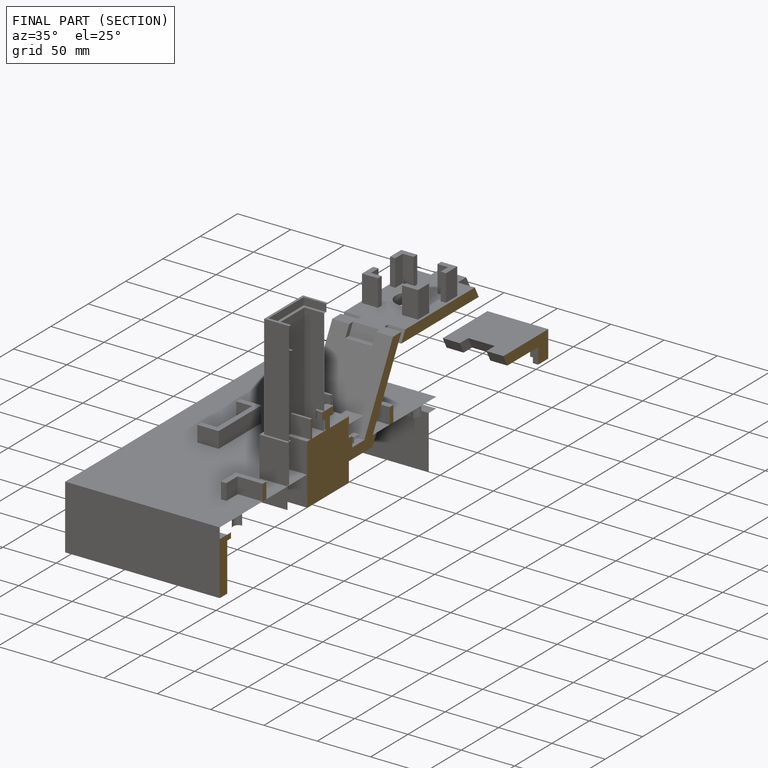
[diagram: finished part — half-section view (interior)]
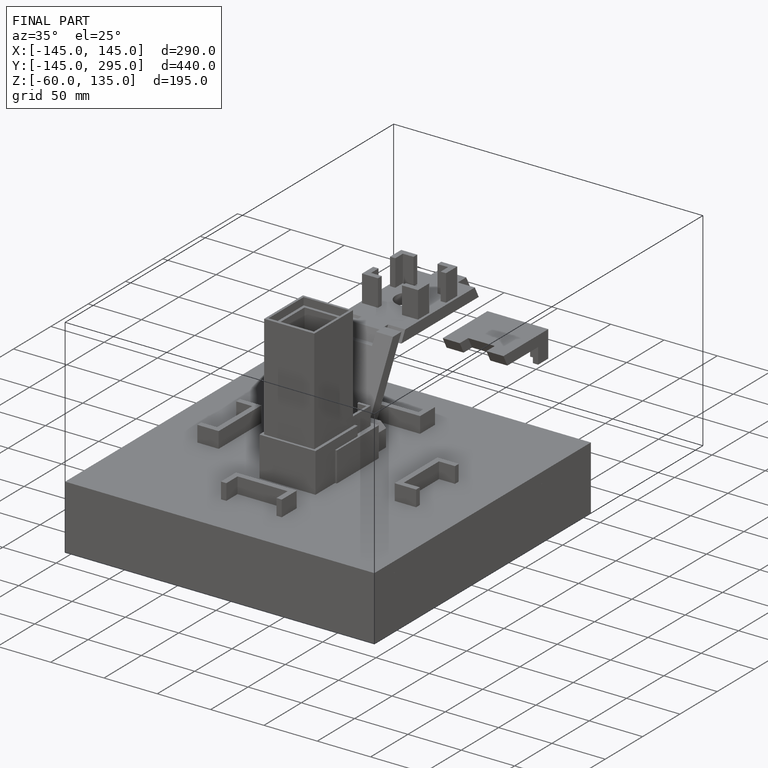
[diagram: finished part — iso view with bounding-box wireframe]
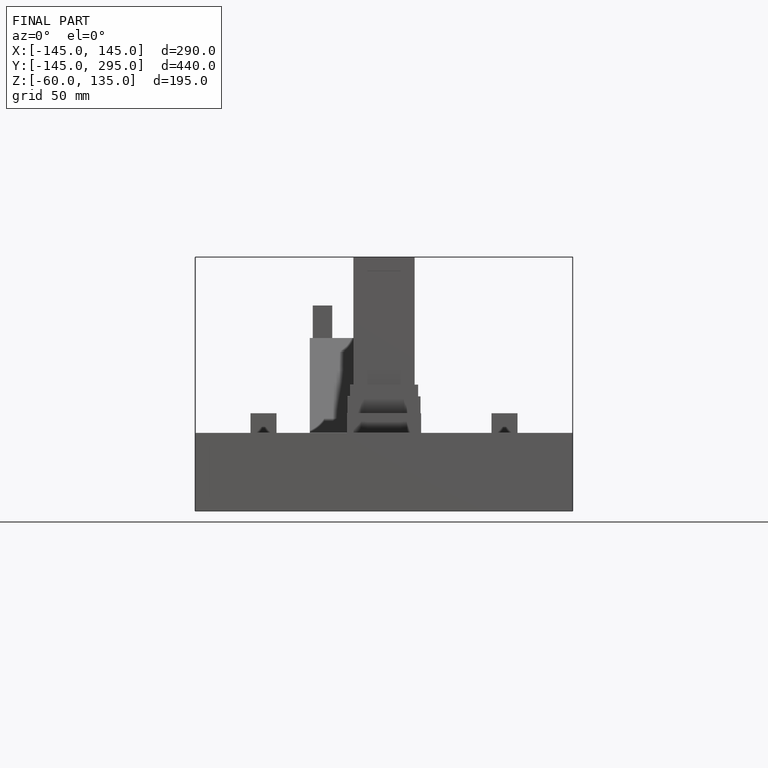
[diagram: finished part — front view with bounding-box wireframe]
